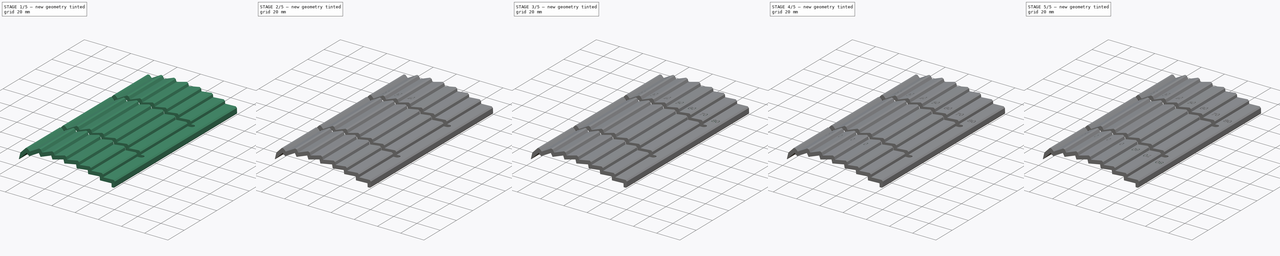
[diagram: build sequence overview — one tinted view per stage of 5, left to right]
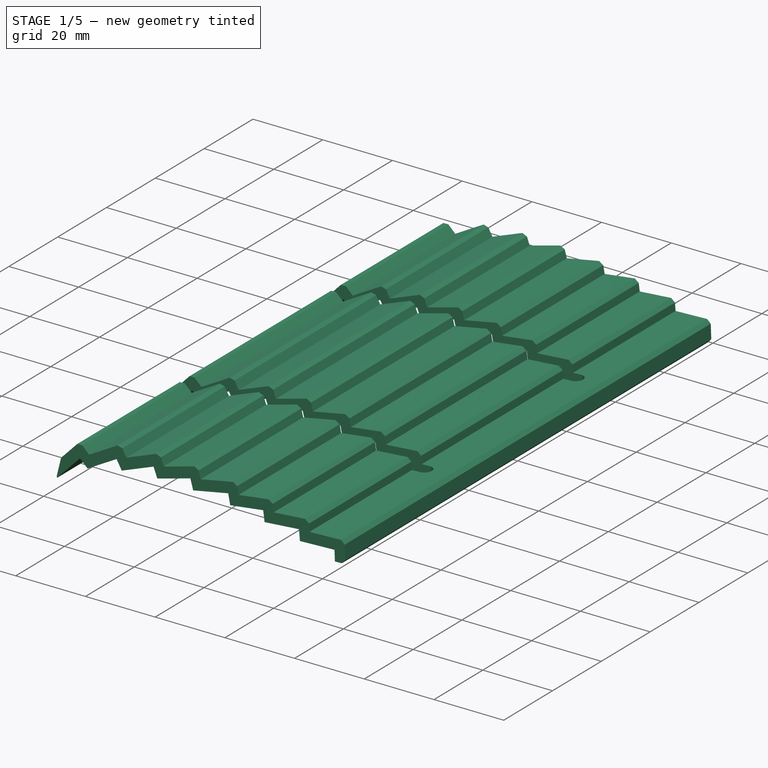
[diagram: stage 1 of 5 — iso view after this stage's code; geometry added in this stage tinted green]
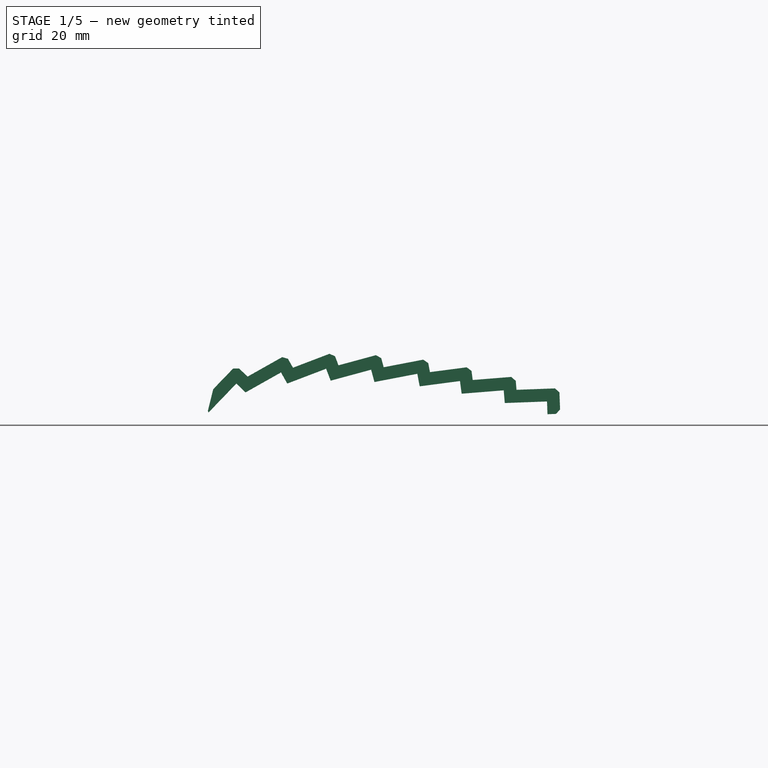
[diagram: stage 1 of 5 — front view after this stage's code; geometry added in this stage tinted green]
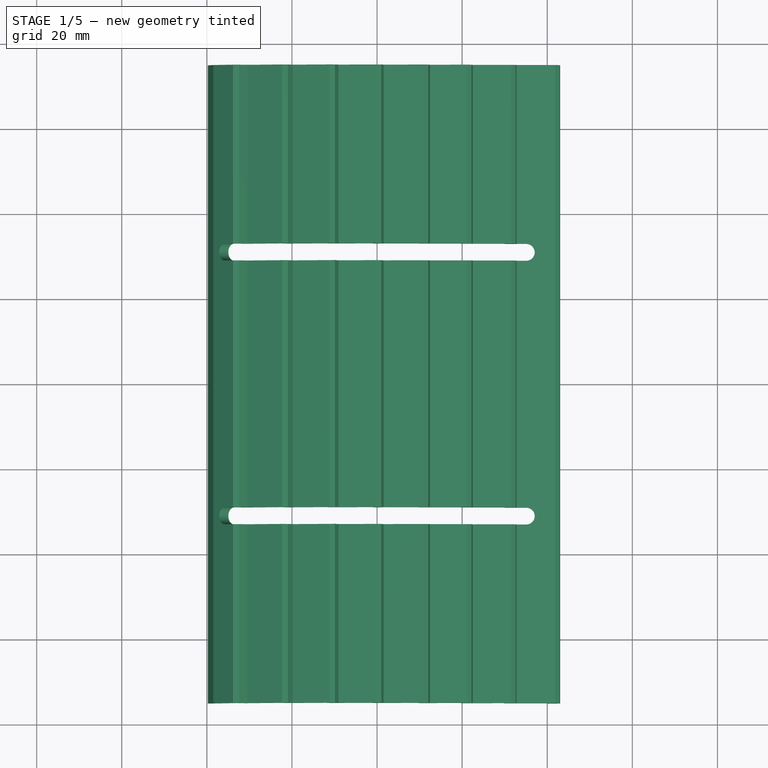
[diagram: stage 1 of 5 — top view after this stage's code; geometry added in this stage tinted green]
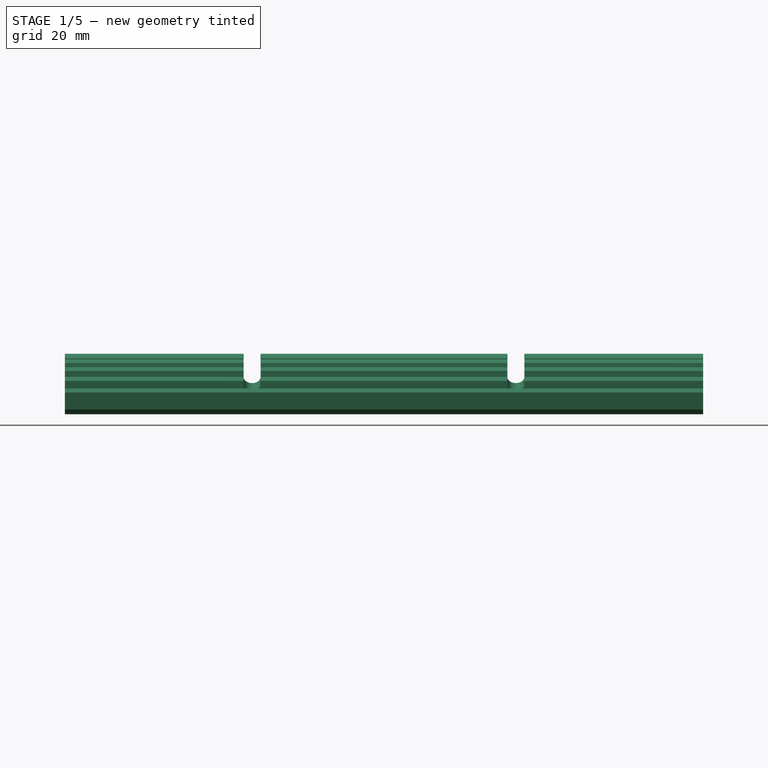
[diagram: stage 1 of 5 — right view after this stage's code; geometry added in this stage tinted green]
FCSTD DOCUMENT  (FreeCAD 1.1R20260414 (Git shallow))
Label: tracette zigzag v2
License: Creative Commons Attribution-NonCommercial-ShareAlike 4.0
LicenseURL: https://creativecommons.org/licenses/by-nc-sa/4.0/
objects: PartDesign::Pocket×10, Part::Part2DObjectPython×8, Part::DatumLine×8, PartDesign::PolarPattern×8, Sketcher::SketchObject×4, App::Point×1, PartDesign::Pad×1, PartDesign::Chamfer×1, App::VarSet×1, PartDesign::Body×1
note: 69 computed .brp shape members not serialized (recipe doc carries the construction recipe); baked Part::Feature solids carry a one-line shape summary decoded from their .brp

FEATURE [App::Point] Origin001  label="Origine"
  Role = Origin
FEATURE [Sketcher::SketchObject] Sketch
  ArcFitTolerance = 1e-06
  AttachmentSupport = -> [Origin]
  ExternalTypes = [0]
  FullyConstrained = true
  MakeInternals = false
  MapMode = 5
  Placement = pos=(0,0,0) rot=(1,0,0;1.5708rad)
  _ExternalGeoVersion = 0
  expr: Constraints[10] = VarSet.Step * 1
  expr: Constraints[11] = VarSet.Step * 2
  expr: Constraints[12] = VarSet.Step * 3
  expr: Constraints[134] = VarSet.Step * 5
  expr: Constraints[41] = VarSet.Step * 4
  expr: Constraints[42] = VarSet.Step * 6
  expr: Constraints[43] = VarSet.Step * 7
  expr: Constraints[44] = VarSet.Step * 8
  sketch-geometry (50):
    g0: LineSegment StartX=6.93368 StartY=7.20583 StartZ=0 EndX=9.09543 EndY=5.12573 EndZ=0
    g1: LineSegment StartX=9.09543 StartY=5.12573 StartZ=0 EndX=17.4237 EndY=9.81912 EndZ=0
    g2: LineSegment StartX=17.4237 StartY=9.81912 StartZ=0 EndX=18.8966 EndY=7.20556 EndZ=0
    g3: LineSegment StartX=18.8966 StartY=7.20556 StartZ=0 EndX=28.0312 EndY=10.6888 EndZ=0
    g4: LineSegment StartX=28.0312 StartY=10.6888 StartZ=0 EndX=29.1001 EndY=7.88564 EndZ=0
    g5: LineSegment StartX=29.1001 StartY=7.88564 StartZ=0 EndX=38.6076 EndY=10.462 EndZ=0
    g6: LineSegment StartX=38.6076 StartY=10.462 StartZ=0 EndX=39.3922 EndY=7.56644 EndZ=0
    g7: LineSegment StartX=39.3922 StartY=7.56644 StartZ=0 EndX=49.4596 EndY=9.50017 EndZ=0
    g8: LineSegment StartX=49.4596 StartY=9.50017 StartZ=0 EndX=50.0255 EndY=6.55403 EndZ=0
    g9: LineSegment StartX=50.0255 StartY=6.55403 StartZ=0 EndX=59.4916 EndY=7.79422 EndZ=0
    g10: LineSegment StartX=59.4916 StartY=7.79422 StartZ=0 EndX=59.8813 EndY=4.81964 EndZ=0
    g11: LineSegment StartX=59.8813 StartY=4.81964 StartZ=0 EndX=69.7744 EndY=5.61589 EndZ=0
    g12: LineSegment StartX=69.7744 StartY=5.61589 StartZ=0 EndX=70.015 EndY=2.62556 EndZ=0
    g13: LineSegment StartX=70.015 StartY=2.62556 StartZ=0 EndX=79.9438 EndY=2.99789 EndZ=0
    g14: LineSegment StartX=79.9438 StartY=2.99789 StartZ=0 EndX=80.0562 EndY=0 EndZ=0
    g15: LineSegment StartX=80.0562 StartY=0 StartZ=0 EndX=83.0541 EndY=0.112421 EndZ=0
    g16: LineSegment StartX=83.0541 StartY=0.112421 StartZ=0 EndX=82.8293 EndY=6.10821 EndZ=0
    g17: LineSegment StartX=82.8293 StartY=6.10821 StartZ=0 EndX=72.7748 EndY=5.73116 EndZ=0
    g18: LineSegment StartX=72.7748 StartY=5.73116 StartZ=0 EndX=72.524 EndY=8.84691 EndZ=0
    g19: LineSegment StartX=72.524 StartY=8.84691 StartZ=0 EndX=62.4852 EndY=8.03891 EndZ=0
    g20: LineSegment StartX=62.4852 StartY=8.03891 StartZ=0 EndX=62.0765 EndY=11.1585 EndZ=0
    g21: LineSegment StartX=62.0765 StartY=11.1585 StartZ=0 EndX=52.4385 EndY=9.8958 EndZ=0
    g22: LineSegment StartX=52.4385 StartY=9.8958 StartZ=0 EndX=51.8399 EndY=13.0122 EndZ=0
    g23: LineSegment StartX=51.8399 StartY=13.0122 StartZ=0 EndX=41.5598 EndY=11.0376 EndZ=0
    g24: LineSegment StartX=41.5598 StartY=11.0376 StartZ=0 EndX=40.7185 EndY=14.1422 EndZ=0
    g25: LineSegment StartX=40.7185 StartY=14.1422 StartZ=0 EndX=30.9359 EndY=11.4913 EndZ=0
    g26: LineSegment StartX=30.9359 StartY=11.4913 StartZ=0 EndX=29.7655 EndY=14.5608 EndZ=0
    g27: LineSegment StartX=29.7655 StartY=14.5608 StartZ=0 EndX=20.2417 EndY=10.9292 EndZ=0
    g28: LineSegment StartX=20.2417 StartY=10.9292 StartZ=0 EndX=18.5644 EndY=13.9055 EndZ=0
    g29: LineSegment StartX=18.5644 StartY=13.9055 StartZ=0 EndX=9.56713 EndY=8.83514 EndZ=0
    g30: LineSegment StartX=9.56713 StartY=8.83514 StartZ=0 EndX=6.85204 EndY=11.4477 EndZ=0
    g31: LineSegment StartX=6.85204 StartY=11.4477 StartZ=0 EndX=1.49773 EndY=5.88322 EndZ=0
    g32: LineSegment StartX=1.49773 StartY=5.88322 StartZ=0 EndX=0.264636 EndY=0.899529 EndZ=0
    g33: ArcOfCircle [constr] CenterX=6.93368 CenterY=7.20583 CenterZ=0 NormalX=0 NormalY=0 NormalZ=1 AngleXU=0 Radius=3 StartAngle=0.804643 EndAngle=2.37544
    g34: ArcOfCircle [constr] CenterX=9.56713 CenterY=8.83514 CenterZ=0 NormalX=0 NormalY=0 NormalZ=1 AngleXU=0 Radius=3 StartAngle=3.94624 EndAngle=5.22558
    g35: ArcOfCircle [constr] CenterX=17.4237 CenterY=9.81912 CenterZ=0 NormalX=0 NormalY=0 NormalZ=1 AngleXU=0 Radius=3 StartAngle=0.513187 EndAngle=2.08398
    g36: ArcOfCircle [constr] CenterX=20.2417 CenterY=10.9292 CenterZ=0 NormalX=0 NormalY=0 NormalZ=1 AngleXU=0 Radius=3 StartAngle=3.65478 EndAngle=5.07669
    g37: ArcOfCircle [constr] CenterX=28.0312 CenterY=10.6888 CenterZ=0 NormalX=0 NormalY=0 NormalZ=1 AngleXU=0 Radius=3 StartAngle=0.364297 EndAngle=1.93509
    g38: ArcOfCircle [constr] CenterX=30.9359 CenterY=11.4913 CenterZ=0 NormalX=0 NormalY=0 NormalZ=1 AngleXU=0 Radius=3 StartAngle=3.50589 EndAngle=4.97702
    g39: ArcOfCircle [constr] CenterX=41.5598 CenterY=11.0376 CenterZ=0 NormalX=0 NormalY=0 NormalZ=1 AngleXU=0 Radius=3 StartAngle=3.40622 EndAngle=4.90216
    g40: ArcOfCircle [constr] CenterX=38.6076 CenterY=10.462 CenterZ=0 NormalX=0 NormalY=0 NormalZ=1 AngleXU=0 Radius=3 StartAngle=0.264628 EndAngle=1.83542
    g41: ArcOfCircle [constr] CenterX=49.4596 CenterY=9.50017 CenterZ=0 NormalX=0 NormalY=0 NormalZ=1 AngleXU=0 Radius=3 StartAngle=0.189768 EndAngle=1.76056
    g42: ArcOfCircle [constr] CenterX=52.4385 CenterY=9.8958 CenterZ=0 NormalX=0 NormalY=0 NormalZ=1 AngleXU=0 Radius=3 StartAngle=3.33136 EndAngle=4.84266
    g43: ArcOfCircle [constr] CenterX=59.4916 CenterY=7.79422 CenterZ=0 NormalX=0 NormalY=0 NormalZ=1 AngleXU=0 Radius=3 StartAngle=0.130272 EndAngle=1.70107
    g44: ArcOfCircle [constr] CenterX=62.4852 CenterY=8.03891 CenterZ=0 NormalX=0 NormalY=0 NormalZ=1 AngleXU=0 Radius=3 StartAngle=3.27186 EndAngle=4.7927
    g45: ArcOfCircle [constr] CenterX=69.7744 CenterY=5.61589 CenterZ=0 NormalX=0 NormalY=0 NormalZ=1 AngleXU=0 Radius=3 StartAngle=0.0803134 EndAngle=1.65111
    g46: ArcOfCircle [constr] CenterX=72.7748 CenterY=5.73116 CenterZ=0 NormalX=0 NormalY=0 NormalZ=1 AngleXU=0 Radius=3 StartAngle=3.22191 EndAngle=4.74987
    g47: ArcOfCircle [constr] CenterX=79.9438 CenterY=2.99789 CenterZ=0 NormalX=0 NormalY=0 NormalZ=1 AngleXU=0 Radius=3 StartAngle=0.0374824 EndAngle=1.60828
    g48: LineSegment StartX=0.403316 StartY=0.419146 StartZ=0 EndX=6.93368 EndY=7.20583 EndZ=0
    g49: ArcOfCircle CenterX=0.75 CenterY=0.779438 CenterZ=0 NormalX=0 NormalY=0 NormalZ=1 AngleXU=0 Radius=0.5 StartAngle=2.89904 EndAngle=3.94624
  constraints (136):
    c: Coincident(g0,g1)
    c: Coincident(g1,g2)
    c: Coincident(g2,g3)
    c: Coincident(g3,g4)
    c: Perpendicular(g2,g1)
    c: Perpendicular(g4,g3)
    c: PointOnObject(g-1,g1)
    c: PointOnObject(g-1,g3)
    c: Equal(g4,g2)
    c: Equal(g2,g0)
    c: Distance(g-1,g0) = 10
    c: Distance(g-1,g1) = 20
    c: Distance(g-1,g3) = 30
    c: Coincident(g4,g5)
    c: Coincident(g5,g6)
    c: Coincident(g6,g7)
    c: Coincident(g7,g8)
    c: Coincident(g8,g9)
    c: Coincident(g9,g10)
    c: Coincident(g10,g11)
    c: Coincident(g11,g12)
    c: Coincident(g12,g13)
    c: Coincident(g13,g14)
    c: Coincident(g14,g15)
    c: Perpendicular(g5,g6)
    c: Perpendicular(g7,g8)
    c: Perpendicular(g9,g10)
    c: Perpendicular(g11,g12)
    c: Perpendicular(g14,g15)
    c: Perpendicular(g13,g14)
    c: PointOnObject(g-1,g5)
    c: PointOnObject(g-1,g7)
    c: PointOnObject(g-1,g9)
    c: PointOnObject(g-1,g11)
    c: PointOnObject(g-1,g13)
    c: Equal(g4,g6)
    c: Equal(g6,g8)
    c: Equal(g8,g10)
    c: Equal(g10,g12)
    c: Equal(g14,g12)
    c: Distance(g12,g12) = 3
    c: Distance(g-1,g5) = 40
    c: Distance(g-1,g9) = 60
    c: Distance(g-1,g11) = 70
    c: Distance(g-1,g13) = 80
    c: Coincident(g16,g17)
    c: Coincident(g17,g18)
    c: Coincident(g18,g19)
    c: Coincident(g19,g20)
    c: Coincident(g20,g21)
    c: Coincident(g21,g22)
    c: Coincident(g22,g23)
    c: Coincident(g23,g24)
    c: Coincident(g24,g25)
    c: Coincident(g25,g26)
    c: Coincident(g26,g27)
    c: Coincident(g27,g28)
    c: Coincident(g28,g29)
    c: Coincident(g29,g30)
    c: Coincident(g30,g31)
    c: Coincident(g31,g32)
    c: Parallel(g0,g30)
    c: Parallel(g1,g29)
    c: Parallel(g2,g28)
    c: Parallel(g27,g3)
    c: Parallel(g4,g26)
    c: Parallel(g25,g5)
    c: Parallel(g6,g24)
    c: Parallel(g8,g22)
    c: Parallel(g9,g21)
    c: Parallel(g10,g20)
    c: Parallel(g11,g19)
    c: Parallel(g12,g18)
    c: Parallel(g13,g17)
    c: Perpendicular(g17,g16)
    c: Coincident(g15,g16)
    c: Coincident(g33,g0)
    c: Coincident(g34,g29)
    c: Coincident(g35,g1)
    c: Coincident(g36,g27)
    c: Coincident(g37,g3)
    c: Coincident(g38,g25)
    c: Tangent(g33,g31) = -1.5708
    c: Tangent(g33,g30) = -1.5708
    c: Radius(g33) = 3
    c: Tangent(g34,g1) = -1.5708
    c: Tangent(g34,g0) = -1.5708
    c: Tangent(g35,g29) = -1.5708
    c: Tangent(g35,g28) = -1.5708
    c: Tangent(g36,g2) = -1.5708
    c: Tangent(g36,g3) = -1.5708
    c: Tangent(g38,g5) = -1.5708
    c: Tangent(g37,g27) = -1.5708
    c: Tangent(g37,g26) = -1.5708
    c: Tangent(g38,g4) = -1.5708
    c: Coincident(g39,g23)
    c: Tangent(g39,g6) = -1.5708
    c: Tangent(g39,g7) = -1.5708
    c: Tangent(g40,g25) = -1.5708
    c: Tangent(g40,g24) = -1.5708
    c: Coincident(g40,g5)
    c: Coincident(g41,g7)
    c: Tangent(g41,g23) = -1.5708
    c: Tangent(g41,g22) = -1.5708
    c: Coincident(g42,g21)
    c: Tangent(g42,g8) = -1.5708
    c: Tangent(g42,g9) = -1.5708
    c: Coincident(g43,g9)
    c: Tangent(g43,g21) = -1.5708
    c: Tangent(g43,g20) = -1.5708
    c: Coincident(g44,g19)
    c: Tangent(g44,g10) = -1.5708
    c: Tangent(g44,g11) = -1.5708
    c: Coincident(g45,g11)
    c: Tangent(g45,g19) = -1.5708
    c: Tangent(g45,g18) = -1.5708
    c: Coincident(g46,g17)
    c: Tangent(g46,g12) = -1.5708
    c: Tangent(g46,g13) = -1.5708
    c: Coincident(g47,g13)
    c: Tangent(g47,g17) = -1.5708
    c: Tangent(g47,g16) = -1.5708
    c: Parallel(g7,g23)
    c: PointOnObject(g14,g-1)
    c: Coincident(g48,g0)
    c: PointOnObject(g49,g48)
    c: Coincident(g49,g48)
    c: Tangent(g49,g32) = -1.5708
    c: Radius(g49) = 0.5
    c: Distance(g49,g-2) = 0.25
    c: Vertical(g32,g49)
    c: Perpendicular(g48,g0)
    c: Parallel(g31,g48)
    c: PointOnObject(g-1,g48)
    c: Distance(g48,g8) = 50
    c: Angle(g48,g32) = 0.523599
FEATURE [PartDesign::Pad] Pad
  Direction = (0,-1,2e-16)
  Length = 150
  Length2 = 10
  Profile = -> Sketch
  ReferenceAxis = -> Sketch [N_Axis]
  Refine = true
  SideType = 2
  Suppressed = false
  Type = 0
  Type2 = 0
FEATURE [Sketcher::SketchObject] Sketch001
  ArcFitTolerance = 1e-06
  AttachmentSupport = -> [Origin]
  ExternalGeometry = -> [Pad]
  ExternalTypes = [0,0]
  FullyConstrained = true
  MakeInternals = false
  MapMode = 5
  _ExternalGeoVersion = 0
  sketch-geometry (8):
    g0: ArcOfCircle CenterX=31.4977 CenterY=31 CenterZ=0 NormalX=0 NormalY=0 NormalZ=1 AngleXU=0 Radius=2 StartAngle=1.5708 EndAngle=4.71239
    g1: ArcOfCircle CenterX=75.0541 CenterY=31 CenterZ=0 NormalX=0 NormalY=0 NormalZ=1 AngleXU=0 Radius=2 StartAngle=4.71239 EndAngle=7.85398
    g2: LineSegment StartX=31.4977 StartY=33 StartZ=0 EndX=75.0541 EndY=33 EndZ=0
    g3: LineSegment StartX=31.4977 StartY=29 StartZ=0 EndX=75.0541 EndY=29 EndZ=0
    g4: ArcOfCircle CenterX=31.4977 CenterY=-31 CenterZ=0 NormalX=0 NormalY=0 NormalZ=1 AngleXU=0 Radius=2 StartAngle=1.5708 EndAngle=4.71239
    g5: ArcOfCircle CenterX=75.0541 CenterY=-31 CenterZ=0 NormalX=0 NormalY=0 NormalZ=1 AngleXU=0 Radius=2 StartAngle=4.71239 EndAngle=7.85398
    g6: LineSegment StartX=31.4977 StartY=-29 StartZ=0 EndX=75.0541 EndY=-29 EndZ=0
    g7: LineSegment StartX=31.4977 StartY=-33 StartZ=0 EndX=75.0541 EndY=-33 EndZ=0
  constraints (18):
    c: Tangent(g0,g2) = 1.5708
    c: Tangent(g0,g3) = -1.5708
    c: Tangent(g1,g2) = 1.5708
    c: Tangent(g1,g3) = -1.5708
    c: Equal(g0,g1)
    c: Horizontal(g2)
    c: Tangent(g4,g6) = 1.5708
    c: Tangent(g4,g7) = -1.5708
    c: Tangent(g5,g6) = 1.5708
    c: Tangent(g5,g7) = -1.5708
    c: Equal(g4,g5)
    c: Equal(g1,g5)
    c: Distance(g0,g-4) = 30
    c: Radius(g1) = 2
    c: Symmetric(g4,g0,g-1)
    c: Symmetric(g5,g1,g-1)
    c: Distance(g1,g-3) = 8
    c: DistanceY(g4,g0) = 60
FEATURE [PartDesign::Chamfer] Chamfer
  Angle = 45
  Base = -> Pad [Edge103,Edge101,Edge99,Edge97,Edge95,Edge93,Edge91,Edge89,Edge88]
  BaseFeature = -> Pad
  ChamferType = 0
  FlipDirection = false
  Refine = true
  Size = 1
  Size2 = 1
  SupportTransform = false
  Suppressed = false
  UseAllEdges = false
FEATURE [PartDesign::Pocket] Pocket
  BaseFeature = -> Chamfer
  Direction = (0,0,-1)
  Length = 5
  Length2 = 5
  Profile = -> Sketch001
  ReferenceAxis = -> Sketch001 [N_Axis]
  Refine = true
  SideType = 2
  Suppressed = false
  Type = 1
  Type2 = 0
FEATURE [Part::Part2DObjectPython] ShapeString001  label="20"  # Draft 2D object (typed FeaturePython)
  AttachmentOffset = pos=(14.5,40,0) rot=(0,0,1;0rad)
  AttachmentSupport = -> [Chamfer]
  FontFile = <path>
  Fuse = false
  Justification = 6
  JustificationReference = 0
  KeepLeftMargin = false
  MakeFace = true
  MapMode = 5
  ObliqueAngle = 0
  Placement = pos=(11.1593,40,9.73241) rot=(0,-1,0;0.513187rad)
  ScaleToSize = true
  Size = 4
  String = 20
  Tracking = 0
  expr: .AttachmentOffset.Base.y = VarSet.Y_Offset
  expr: Size = VarSet.Font_Height
FEATURE [Part::Part2DObjectPython] ShapeString002  label="30"  # Draft 2D object (typed FeaturePython)
  AttachmentOffset = pos=(24.5,40,0) rot=(0,0,1;0rad)
  AttachmentSupport = -> [Chamfer]
  Fuse = false
  Justification = 6
  JustificationReference = 0
  KeepLeftMargin = false
  MakeFace = true
  MapMode = 5
  ObliqueAngle = 0
  Placement = pos=(21.8233,40,11.5323) rot=(0,-1,0;0.364297rad)
  ScaleToSize = true
  Size = 4
  String = 30
  Tracking = 0
  expr: .AttachmentOffset.Base.y = VarSet.Y_Offset
FEATURE [Part::Part2DObjectPython] ShapeString003  label="40"  # Draft 2D object (typed FeaturePython)
  AttachmentOffset = pos=(34.5,40,0) rot=(0,0,1;0rad)
  AttachmentSupport = -> [Chamfer]
  FontFile = <path>
  Fuse = false
  Justification = 6
  JustificationReference = 0
  KeepLeftMargin = false
  MakeFace = true
  MapMode = 5
  ObliqueAngle = 0
  Placement = pos=(32.5144,40,11.9191) rot=(0,-1,0;0.264628rad)
  ScaleToSize = true
  Size = 4
  String = 40
  Tracking = 0
  expr: .AttachmentOffset.Base.y = VarSet.Y_Offset
  expr: Size = VarSet.Font_Height
FEATURE [Part::Part2DObjectPython] ShapeString004  label="50"  # Draft 2D object (typed FeaturePython)
  AttachmentOffset = pos=(45,40,0) rot=(0,0,1;0rad)
  AttachmentSupport = -> [Chamfer]
  FontFile = <path>
  Fuse = false
  Justification = 6
  JustificationReference = 0
  KeepLeftMargin = false
  MakeFace = true
  MapMode = 5
  ObliqueAngle = 0
  Placement = pos=(43.6263,40,11.4345) rot=(0,-1,0;0.189768rad)
  ScaleToSize = true
  Size = 4
  String = 50
  Tracking = 0
  expr: .AttachmentOffset.Base.y = VarSet.Y_Offset
  expr: Size = VarSet.Font_Height
FEATURE [App::VarSet] VarSet
  Font = Century Schoolbook
  Font_Depth = 0.5
  Font_Height = 4
  Step = 10
  Y_Offset = 40
FEATURE [Part::Part2DObjectPython] ShapeString005  label="60"  # Draft 2D object (typed FeaturePython)
  AttachmentOffset = pos=(55,40,0) rot=(0,0,1;0rad)
  AttachmentSupport = -> [Chamfer]
  FontFile = <path>
  Fuse = false
  Justification = 6
  JustificationReference = 0
  KeepLeftMargin = false
  MakeFace = true
  MapMode = 5
  ObliqueAngle = 0
  Placement = pos=(54.1443,40,10.1193) rot=(0,-1,0;0.130272rad)
  ScaleToSize = true
  Size = 4
  String = 60
  Tracking = 0
  expr: .AttachmentOffset.Base.y = VarSet.Y_Offset
  expr: Size = VarSet.Font_Height
FEATURE [Part::Part2DObjectPython] ShapeString006  label="70"  # Draft 2D object (typed FeaturePython)
  AttachmentOffset = pos=(64.7,40,0) rot=(0,0,1;0rad)
  AttachmentSupport = -> [Chamfer]
  FontFile = <path>
  Fuse = false
  Justification = 6
  JustificationReference = 0
  KeepLeftMargin = false
  MakeFace = true
  MapMode = 5
  ObliqueAngle = 0
  Placement = pos=(64.2508,40,8.18102) rot=(0,-1,0;0.080313rad)
  ScaleToSize = true
  Size = 4
  String = 70
  Tracking = 0
  expr: .AttachmentOffset.Base.y = VarSet.Y_Offset
  expr: Size = VarSet.Font_Height
FEATURE [Part::Part2DObjectPython] ShapeString007  label="80"  # Draft 2D object (typed FeaturePython)
  AttachmentOffset = pos=(74.7,40,0) rot=(0,0,1;0rad)
  AttachmentSupport = -> [Chamfer]
  FontFile = =VarSet.Font
  Fuse = false
  Justification = 6
  JustificationReference = 0
  KeepLeftMargin = false
  MakeFace = true
  MapMode = 5
  ObliqueAngle = 0
  Placement = pos=(74.5351,40,5.79718) rot=(0,-1,0;0.037482rad)
  ScaleToSize = true
  Size = 4
  String = 80
  Tracking = 0
  expr: .AttachmentOffset.Base.y = VarSet.Y_Offset
  expr: Size = VarSet.Font_Height
FEATURE [Part::Part2DObjectPython] ShapeString  label="10"  # Draft 2D object (typed FeaturePython)
  AttachmentOffset = pos=(-40,6,0) rot=(0,0,1;1.5708rad)
  AttachmentSupport = -> [Chamfer]
  FontFile = <path>
  Fuse = false
  Justification = 6
  JustificationReference = 0
  KeepLeftMargin = false
  MakeFace = true
  MapMode = 5
  ObliqueAngle = 0
  Placement = pos=(1.99846,40,6.40361) rot=(0,-1,0;0.804643rad)
  ScaleToSize = true
  Size = 4
  String = 10
  Tracking = 0
  expr: .AttachmentOffset.Base.x = -VarSet.Y_Offset
FEATURE [Part::DatumLine] DatumLine001
  AttacherType = Attacher::AttachEngineLine
  MapMode = 42
  Placement = pos=(15.1084,-2e-15,8.50173) rot=(0.245709,-0.245709,-0.937685;1.63509rad)
FEATURE [Part::DatumLine] DatumLine002
  AttacherType = Attacher::AttachEngineLine
  MapMode = 42
  Placement = pos=(25.6115,-2.5e-15,9.74746) rot=(0.177945,-0.177945,-0.967818;1.6035rad)
FEATURE [Part::DatumLine] DatumLine003
  AttacherType = Attacher::AttachEngineLine
  MapMode = 42
  Placement = pos=(36.1355,-2.3e-15,9.7675) rot=(0.130489,-0.130489,-0.982825;1.58812rad)
FEATURE [Part::DatumLine] DatumLine004
  AttacherType = Attacher::AttachEngineLine
  MapMode = 42
  Placement = pos=(47.0476,-2.3e-15,9.00593) rot=(0.094008,-0.094008,-0.991123;1.57971rad)
FEATURE [Part::DatumLine] DatumLine005
  AttacherType = Attacher::AttachEngineLine
  MapMode = 42
  Placement = pos=(57.4216,-2.1e-15,7.52301) rot=(0.064952,-0.064952,-0.995772;1.57503rad)
FEATURE [Part::DatumLine] DatumLine006
  AttacherType = Attacher::AttachEngineLine
  MapMode = 42
  Placement = pos=(67.2469,-1.7e-15,5.41247) rot=(0.040114,-0.040114,-0.99839;1.57241rad)
FEATURE [Part::DatumLine] DatumLine007
  AttacherType = Attacher::AttachEngineLine
  MapMode = 42
  Placement = pos=(77.4893,2.1e-15,2.90585) rot=(0.018737,-0.018737,-0.999649;1.57115rad)
FEATURE [Part::DatumLine] DatumLine
  AttacherType = Attacher::AttachEngineLine
  AttachmentSupport = -> [Chamfer]
  MapMode = 42
  Placement = pos=(5.98995,-2e-15,6.22506) rot=(0.364602,-0.364602,-0.856814;1.72472rad)
FEATURE [Sketcher::SketchObject] Sketch002
  ArcFitTolerance = 1e-06
  AttachmentSupport = -> [Pocket]
  ExternalGeometry = -> [Pocket]
  ExternalTypes = [0,0,0]
  FullyConstrained = true
  MakeInternals = false
  MapMode = 5
  Placement = pos=(-2.16175,5e-16,2.0801) rot=(0.364602,-0.364602,-0.856814;1.72472rad)
  _ExternalGeoVersion = 0
  sketch-geometry (10):
    g0: ArcOfCircle CenterX=-31 CenterY=30.2297 CenterZ=0 NormalX=0 NormalY=0 NormalZ=1 AngleXU=0 Radius=2 StartAngle=9e-16 EndAngle=3.14159
    g1: ArcOfCircle CenterX=-31 CenterY=9.27783 CenterZ=0 NormalX=0 NormalY=0 NormalZ=1 AngleXU=0 Radius=2 StartAngle=3.1416 EndAngle=6.28319
    g2: LineSegment StartX=-29 StartY=30.2297 StartZ=0 EndX=-29 EndY=9.27783 EndZ=0
    g3: LineSegment StartX=-33 StartY=30.2297 StartZ=0 EndX=-33 EndY=9.27782 EndZ=0
    g4: ArcOfCircle CenterX=31 CenterY=30.2297 CenterZ=0 NormalX=0 NormalY=0 NormalZ=1 AngleXU=0 Radius=2 StartAngle=4e-16 EndAngle=3.14159
    g5: ArcOfCircle CenterX=31 CenterY=9.27783 CenterZ=0 NormalX=0 NormalY=0 NormalZ=1 AngleXU=0 Radius=2 StartAngle=3.14159 EndAngle=6.28318
    g6: LineSegment StartX=29 StartY=30.2297 StartZ=0 EndX=29 EndY=9.27783 EndZ=0
    g7: LineSegment StartX=33 StartY=30.2297 StartZ=0 EndX=33 EndY=9.27782 EndZ=0
    g8: LineSegment [constr] StartX=29 StartY=30.2297 StartZ=0 EndX=29 EndY=37.5659 EndZ=0
    g9: LineSegment [constr] StartX=33 StartY=37.5659 StartZ=0 EndX=33 EndY=30.2297 EndZ=0
  constraints (23):
    c: Tangent(g0,g2) = 1.5708
    c: Tangent(g0,g3) = -1.5708
    c: Tangent(g1,g2) = 1.5708
    c: Equal(g0,g1)
    c: Coincident(g0,g-5)
    c: Distance(g1,g-3) = 2
    c: Symmetric(g-5,g8,g-2)
    c: Symmetric(g-5,g8,g-2)
    c: Symmetric(g-4,g9,g-2)
    c: Symmetric(g-4,g9,g-2)
    c: Symmetric(g0,g4,g-2)
    c: Symmetric(g0,g4,g-2)
    c: Symmetric(g1,g5,g-2)
    c: Symmetric(g1,g5,g-2)
    c: Symmetric(g2,g6,g-2)
    c: Symmetric(g2,g6,g-2)
    c: Symmetric(g3,g7,g-2)
    c: Symmetric(g3,g7,g-2)
    c: Horizontal(g4,g4)
    c: Horizontal(g5,g5)
    c: Vertical(g3)
    c: Coincident(g1,g3)
    c: Coincident(g-4,g0)
FEATURE [PartDesign::Pocket] Pocket009
  BaseFeature = -> Pocket
  Direction = (0.720583,1e-16,-0.693368)
  Length = 5
  Length2 = 5
  Profile = -> Sketch002
  ReferenceAxis = -> Sketch002 [N_Axis]
  Refine = true
  SideType = 0
  Suppressed = false
  Type = 1
  Type2 = 0
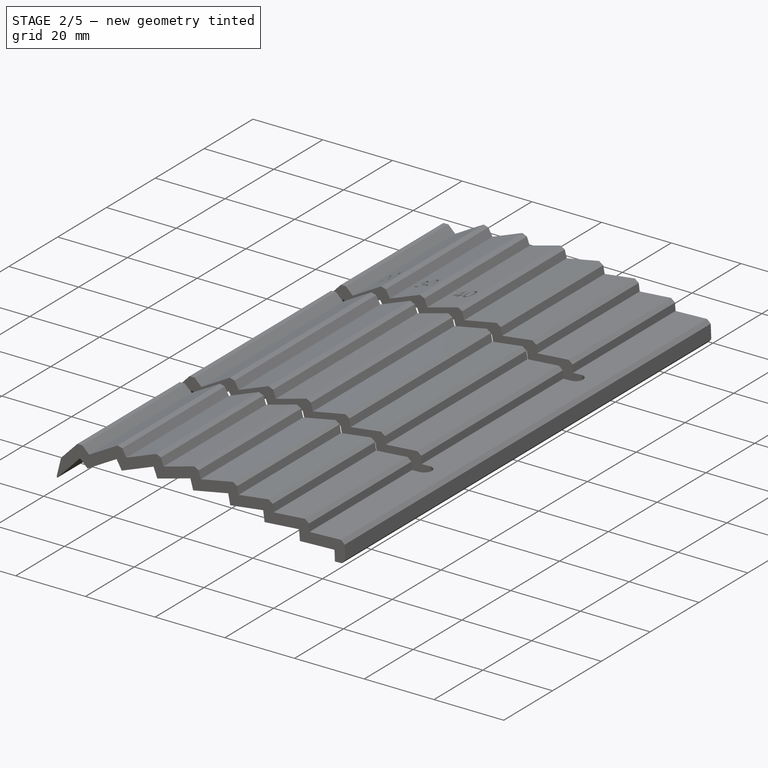
[diagram: stage 2 of 5 — iso view after this stage's code; geometry added in this stage tinted green]
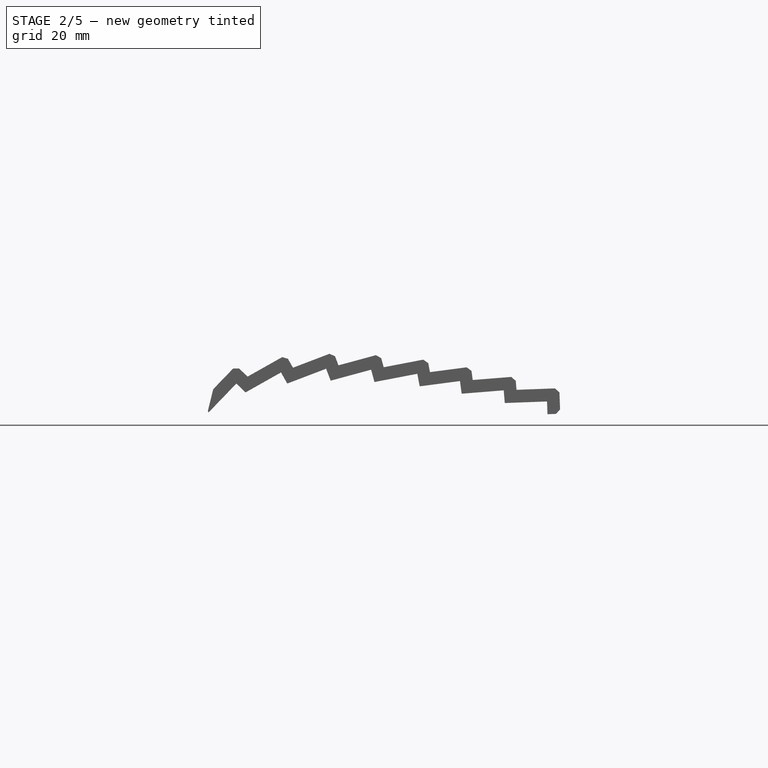
[diagram: stage 2 of 5 — front view after this stage's code; geometry added in this stage tinted green]
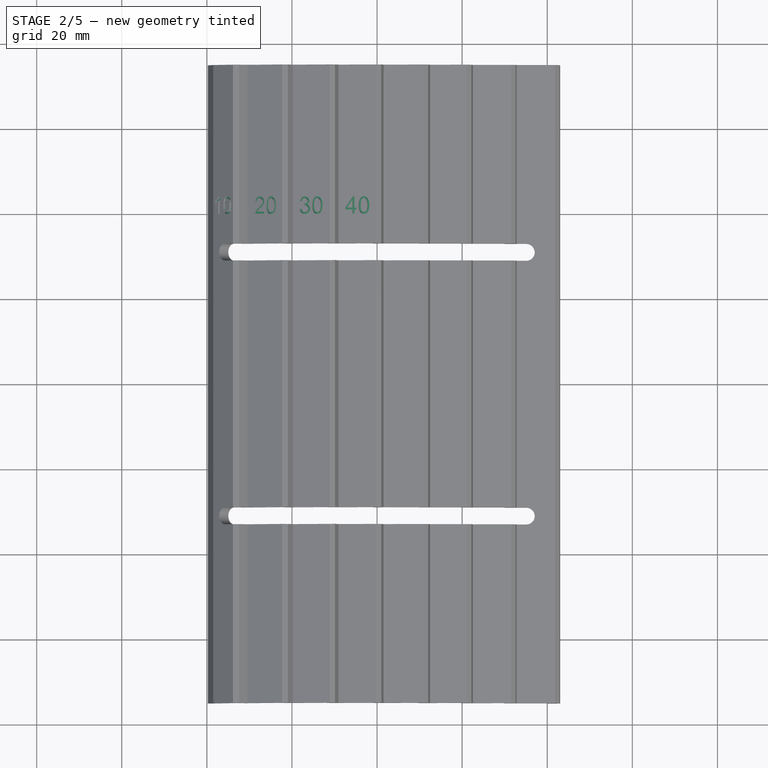
[diagram: stage 2 of 5 — top view after this stage's code; geometry added in this stage tinted green]
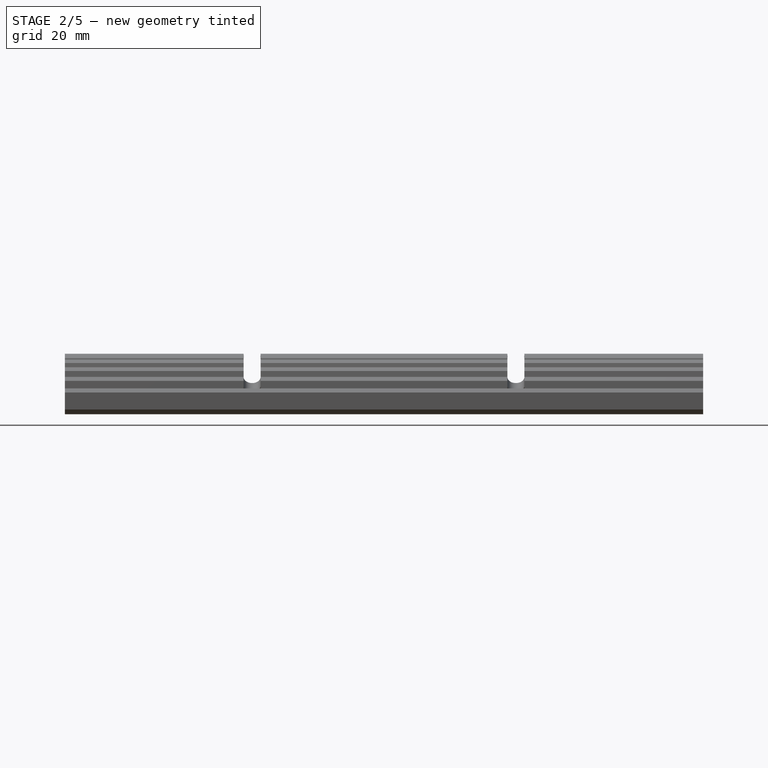
[diagram: stage 2 of 5 — right view after this stage's code; geometry added in this stage tinted green]
FEATURE [PartDesign::Pocket] Pocket001
  BaseFeature = -> Pocket009
  Direction = (0.720583,2e-16,-0.693368)
  Length = 0.5
  Length2 = 5
  Profile = -> ShapeString
  ReferenceAxis = -> ShapeString [N_Axis]
  Refine = true
  SideType = 0
  Suppressed = false
  Type = 0
  Type2 = 0
  expr: Length = VarSet.Font_Depth
FEATURE [PartDesign::Pocket] Pocket002
  BaseFeature = -> Pocket001
  Direction = (0.490956,0,-0.871184)
  Length = 1
  Length2 = 5
  Profile = -> ShapeString001
  ReferenceAxis = -> ShapeString001 [N_Axis]
  Refine = true
  SideType = 2
  Suppressed = false
  Type = 0
  Type2 = 0
FEATURE [PartDesign::Pocket] Pocket003
  BaseFeature = -> Pocket002
  Direction = (0.356292,0,-0.934375)
  Length = 0.5
  Length2 = 5
  Profile = -> ShapeString002
  ReferenceAxis = -> ShapeString002 [N_Axis]
  Refine = true
  SideType = 0
  Suppressed = false
  Type = 0
  Type2 = 0
  expr: Length = VarSet.Font_Depth
FEATURE [PartDesign::Pocket] Pocket004
  BaseFeature = -> Pocket003
  Direction = (0.26155,0,-0.96519)
  Length = 0.5
  Length2 = 5
  Profile = -> ShapeString003
  ReferenceAxis = -> ShapeString003 [N_Axis]
  Refine = true
  SideType = 0
  Suppressed = false
  Type = 0
  Type2 = 0
  expr: Length = VarSet.Font_Depth
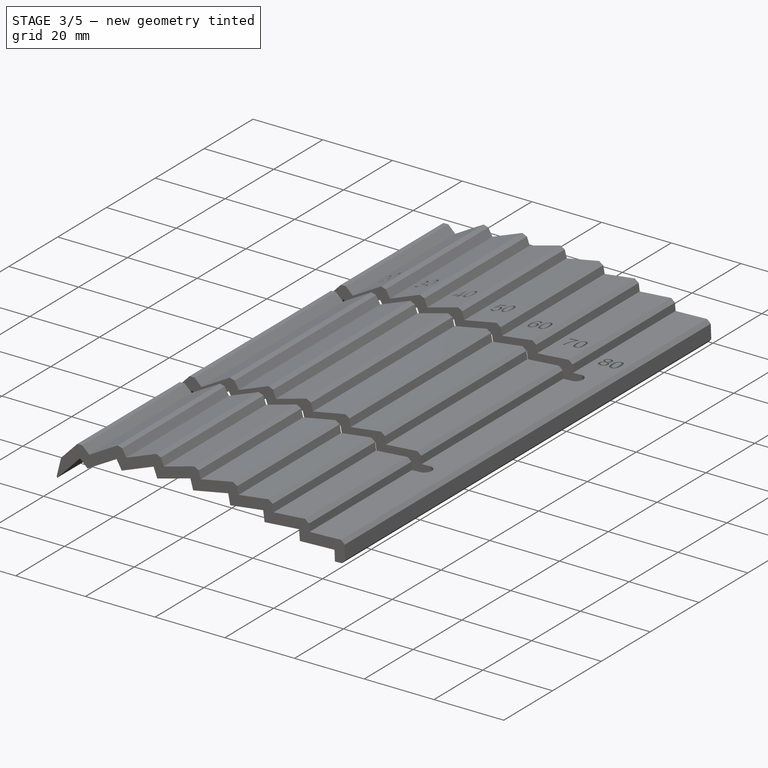
[diagram: stage 3 of 5 — iso view after this stage's code; geometry added in this stage tinted green]
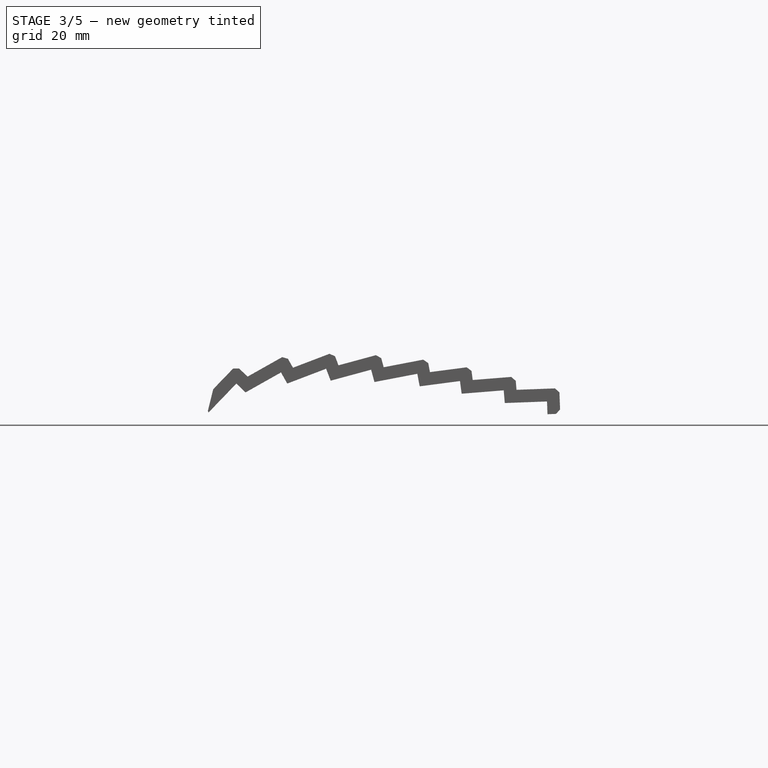
[diagram: stage 3 of 5 — front view after this stage's code; geometry added in this stage tinted green]
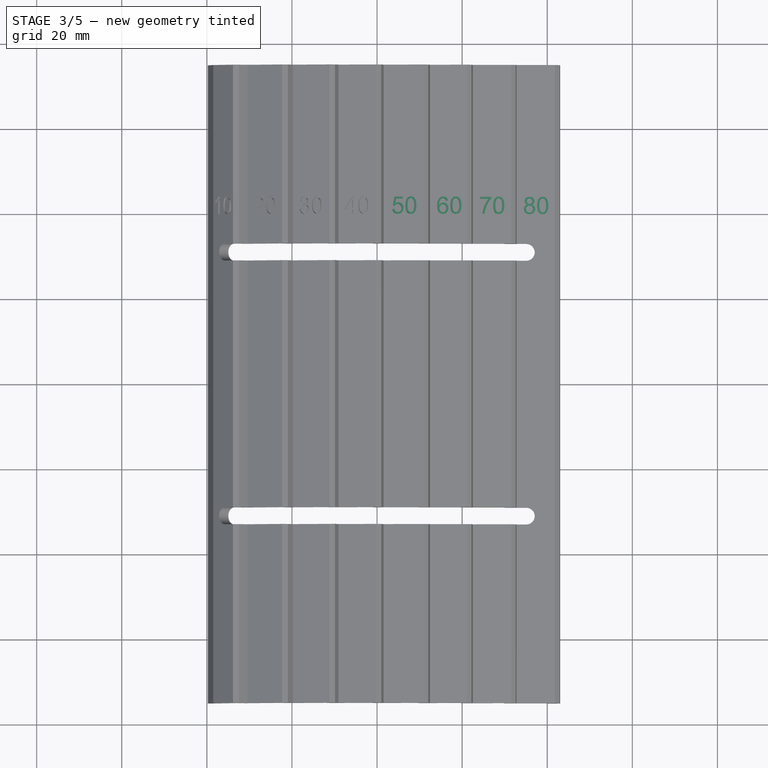
[diagram: stage 3 of 5 — top view after this stage's code; geometry added in this stage tinted green]
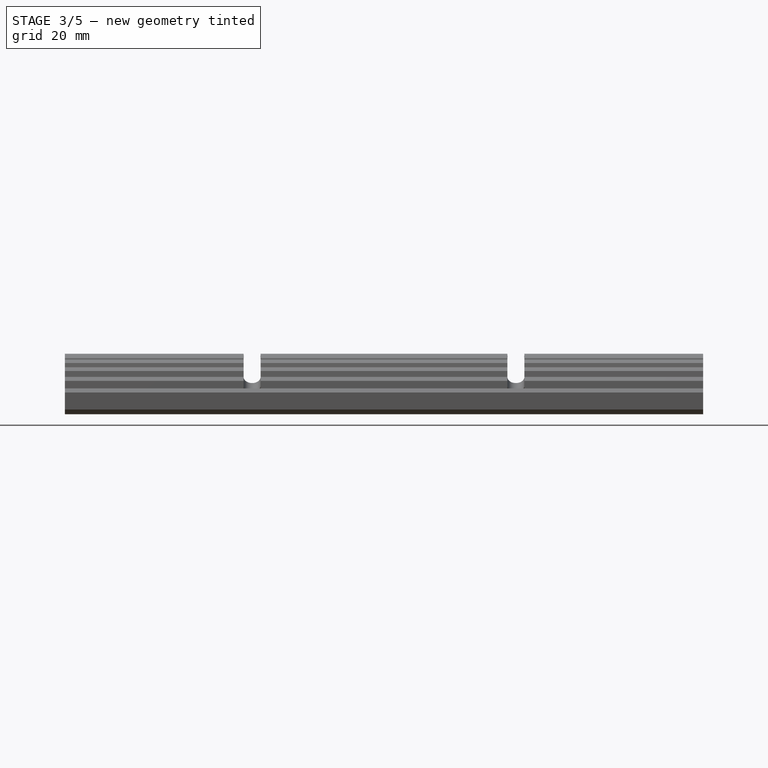
[diagram: stage 3 of 5 — right view after this stage's code; geometry added in this stage tinted green]
FEATURE [PartDesign::Pocket] Pocket005
  BaseFeature = -> Pocket004
  Direction = (0.188631,0,-0.982048)
  Length = 0.5
  Length2 = 5
  Profile = -> ShapeString004
  ReferenceAxis = -> ShapeString004 [N_Axis]
  Refine = true
  SideType = 0
  Suppressed = false
  Type = 0
  Type2 = 0
  expr: Length = VarSet.Font_Depth
FEATURE [PartDesign::Pocket] Pocket006
  BaseFeature = -> Pocket005
  Direction = (0.129904,0,-0.991527)
  Length = 0.5
  Length2 = 5
  Profile = -> ShapeString005
  ReferenceAxis = -> ShapeString005 [N_Axis]
  Refine = true
  SideType = 0
  Suppressed = false
  Type = 0
  Type2 = 0
  expr: Length = VarSet.Font_Depth
FEATURE [PartDesign::Pocket] Pocket007
  BaseFeature = -> Pocket006
  Direction = (0.0802271,0,-0.996777)
  Length = 0.5
  Length2 = 5
  Profile = -> ShapeString006
  ReferenceAxis = -> ShapeString006 [N_Axis]
  Refine = true
  SideType = 0
  Suppressed = false
  Type = 0
  Type2 = 0
  expr: Length = VarSet.Font_Depth
FEATURE [PartDesign::Pocket] Pocket008
  BaseFeature = -> Pocket007
  Direction = (0.0374737,0,-0.999298)
  Length = 0.5
  Length2 = 5
  Profile = -> ShapeString007
  ReferenceAxis = -> ShapeString007 [N_Axis]
  Refine = true
  SideType = 0
  Suppressed = false
  Type = 0
  Type2 = 0
  expr: Length = VarSet.Font_Depth
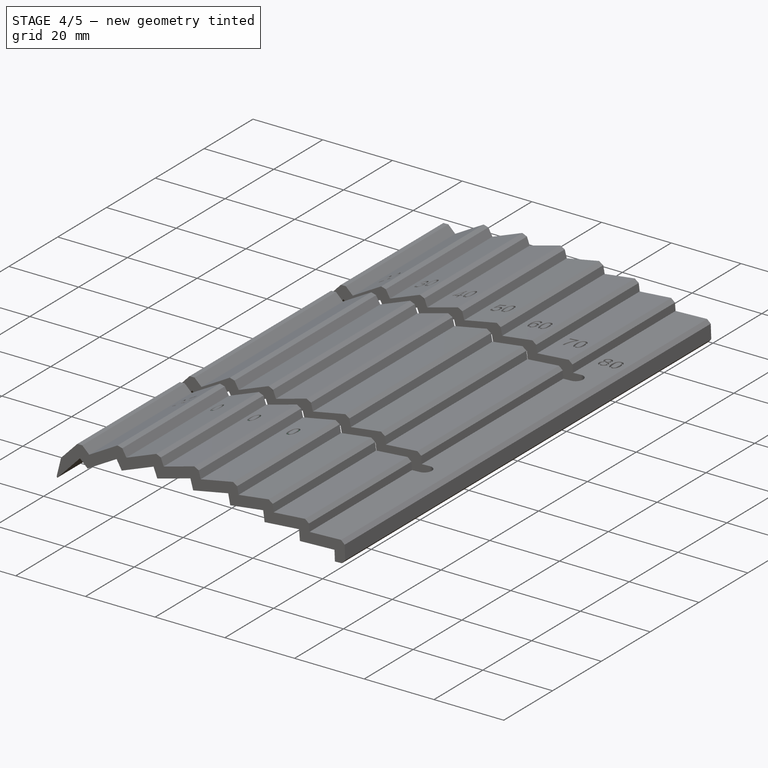
[diagram: stage 4 of 5 — iso view after this stage's code; geometry added in this stage tinted green]
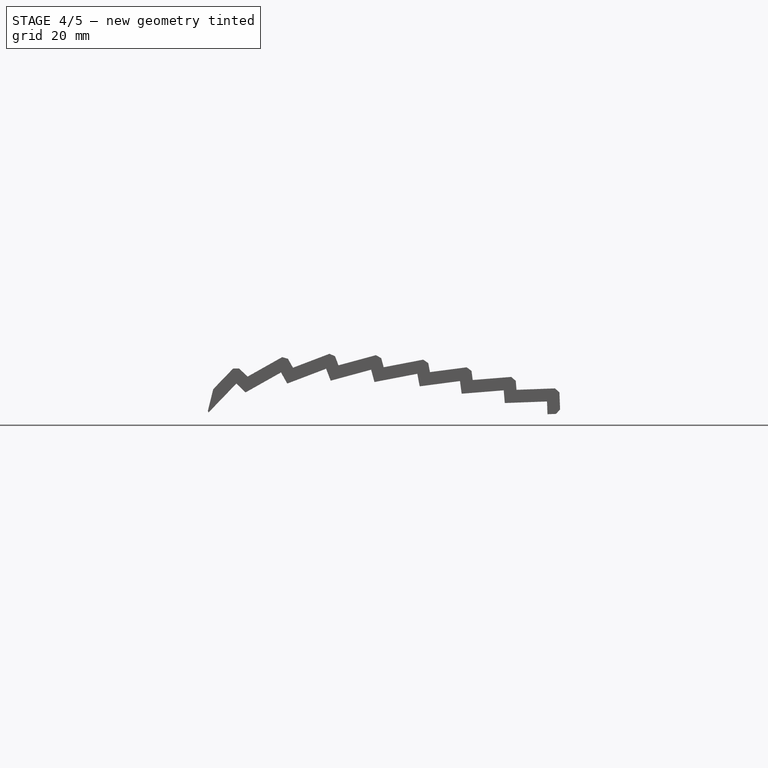
[diagram: stage 4 of 5 — front view after this stage's code; geometry added in this stage tinted green]
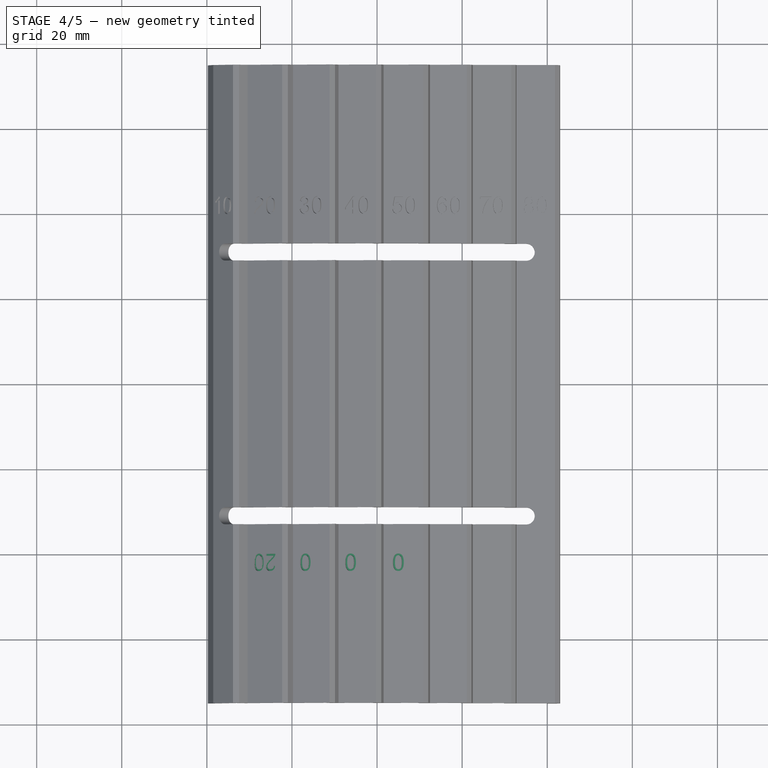
[diagram: stage 4 of 5 — top view after this stage's code; geometry added in this stage tinted green]
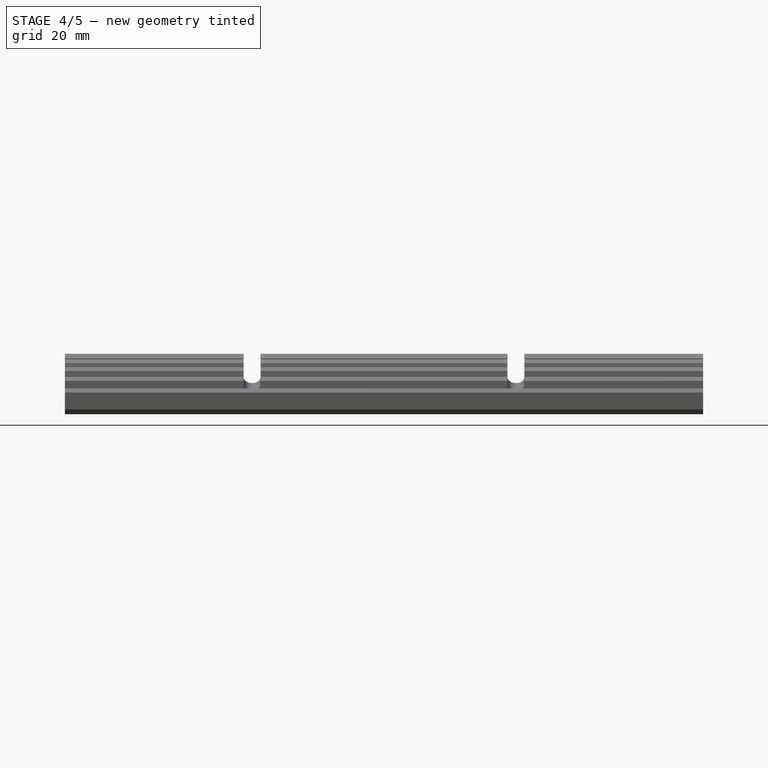
[diagram: stage 4 of 5 — right view after this stage's code; geometry added in this stage tinted green]
FEATURE [PartDesign::PolarPattern] PolarPattern002
  Angle = 360
  Axis = -> DatumLine001
  BaseFeature = -> Pocket008
  Mode = 0
  Occurrences = 2
  Offset = 120
  Originals = -> [Pocket002]
  Refine = true
  SpacingPattern = [0]
  Spacings = [-1]
  Suppressed = false
  TransformMode = 0
FEATURE [PartDesign::PolarPattern] PolarPattern003
  Angle = 360
  Axis = -> DatumLine002
  BaseFeature = -> PolarPattern002
  Mode = 0
  Occurrences = 2
  Offset = 120
  Originals = -> [Pocket003]
  Refine = true
  SpacingPattern = [0]
  Spacings = [-1]
  Suppressed = false
  TransformMode = 0
FEATURE [PartDesign::PolarPattern] PolarPattern004
  Angle = 360
  Axis = -> DatumLine003
  BaseFeature = -> PolarPattern003
  Mode = 0
  Occurrences = 2
  Offset = 120
  Originals = -> [Pocket004]
  Refine = true
  SpacingPattern = [0]
  Spacings = [-1]
  Suppressed = false
  TransformMode = 0
FEATURE [PartDesign::PolarPattern] PolarPattern005
  Angle = 360
  Axis = -> DatumLine004
  BaseFeature = -> PolarPattern004
  Mode = 0
  Occurrences = 2
  Offset = 120
  Originals = -> [Pocket005]
  Refine = true
  SpacingPattern = [0]
  Spacings = [-1]
  Suppressed = false
  TransformMode = 0
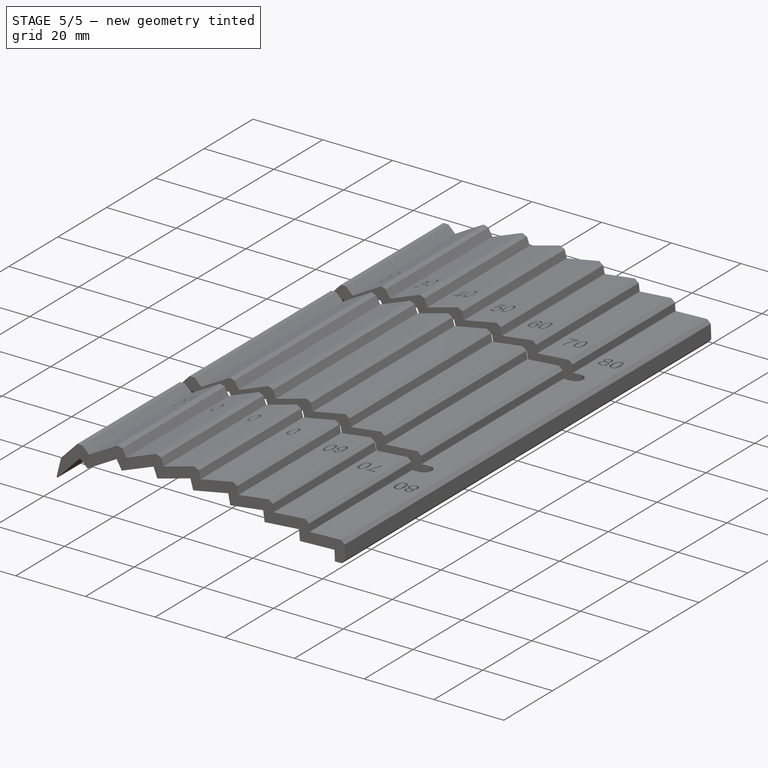
[diagram: stage 5 of 5 — iso view after this stage's code; geometry added in this stage tinted green]
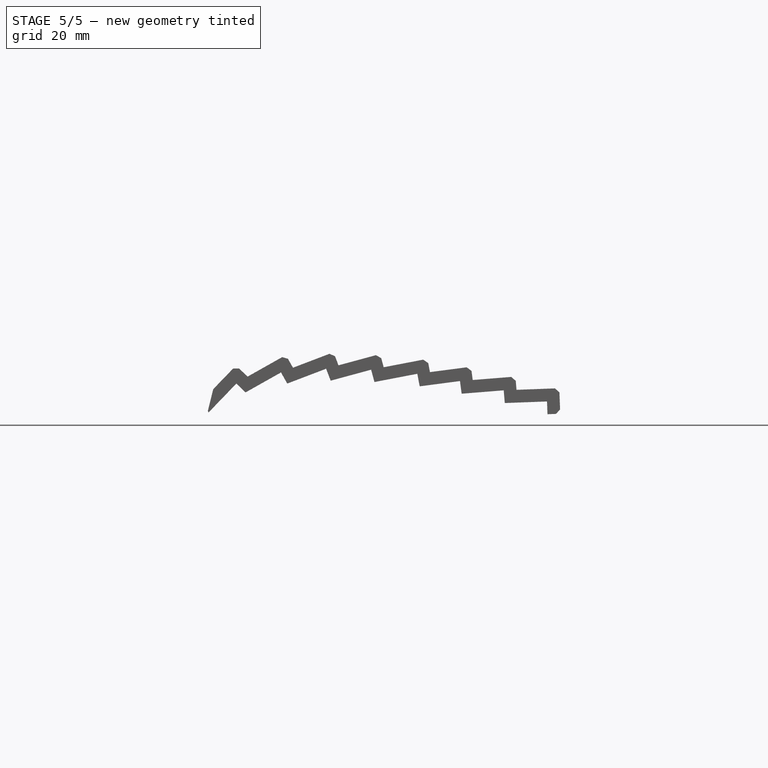
[diagram: stage 5 of 5 — front view after this stage's code; geometry added in this stage tinted green]
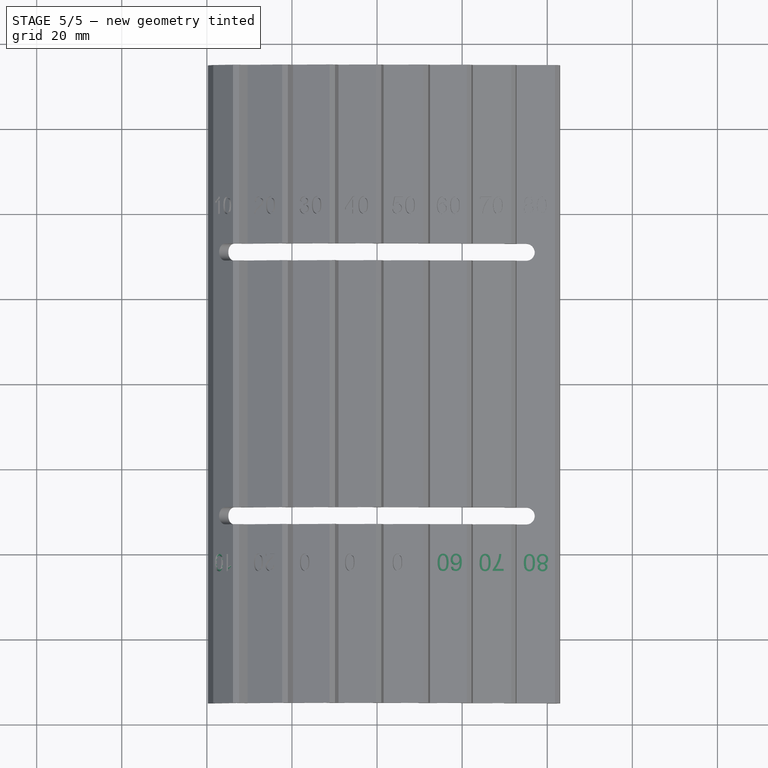
[diagram: stage 5 of 5 — top view after this stage's code; geometry added in this stage tinted green]
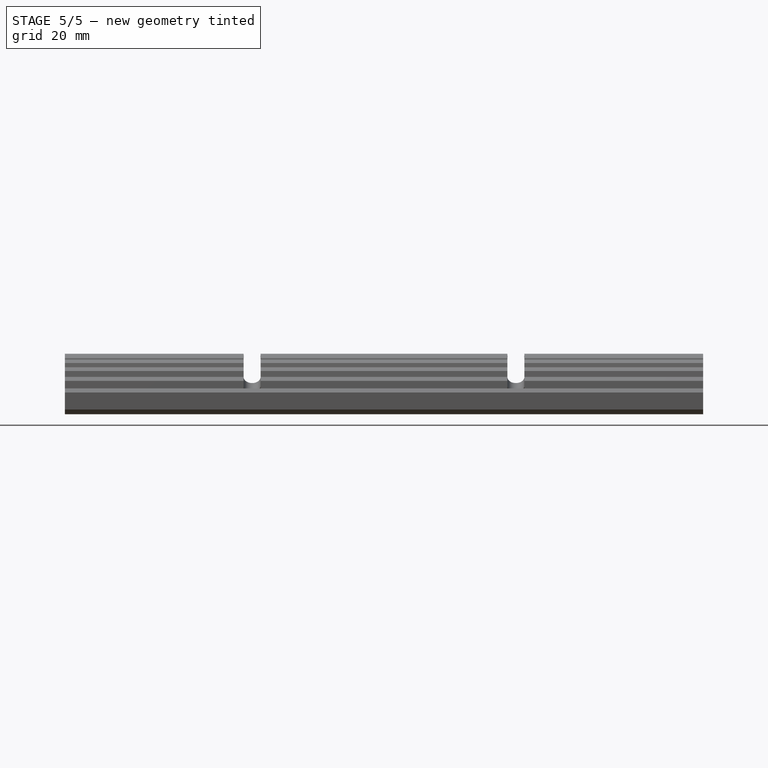
[diagram: stage 5 of 5 — right view after this stage's code; geometry added in this stage tinted green]
FEATURE [PartDesign::PolarPattern] PolarPattern006
  Angle = 360
  Axis = -> DatumLine005
  BaseFeature = -> PolarPattern005
  Mode = 0
  Occurrences = 2
  Offset = 120
  Originals = -> [Pocket006]
  Refine = true
  SpacingPattern = [0]
  Spacings = [-1]
  Suppressed = false
  TransformMode = 0
FEATURE [PartDesign::PolarPattern] PolarPattern007
  Angle = 360
  Axis = -> DatumLine006
  BaseFeature = -> PolarPattern006
  Mode = 0
  Occurrences = 2
  Offset = 120
  Originals = -> [Pocket007]
  Refine = true
  SpacingPattern = [0]
  Spacings = [-1]
  Suppressed = false
  TransformMode = 0
FEATURE [PartDesign::PolarPattern] PolarPattern008
  Angle = 360
  Axis = -> DatumLine007
  BaseFeature = -> PolarPattern007
  Mode = 0
  Occurrences = 2
  Offset = 120
  Originals = -> [Pocket008]
  Refine = true
  SpacingPattern = [0]
  Spacings = [-1]
  Suppressed = false
  TransformMode = 0
FEATURE [PartDesign::PolarPattern] PolarPattern009
  Angle = 360
  Axis = -> DatumLine
  BaseFeature = -> PolarPattern008
  Mode = 0
  Occurrences = 2
  Offset = 120
  Originals = -> [Pocket001]
  Refine = true
  SpacingPattern = [0]
  Spacings = [-1]
  Suppressed = false
  TransformMode = 0
FEATURE [Sketcher::SketchObject] Sketch003
  ArcFitTolerance = 1e-06
  AttachmentSupport = -> [PolarPattern009]
  ExternalGeometry = -> [PolarPattern009]
  ExternalTypes = [0,0]
  FullyConstrained = false
  MakeInternals = false
  MapMode = 5
  Placement = pos=(0.0396427,0,-0.00980862) rot=(0.524704,-0.524704,-0.670352;1.96049rad)
  _ExternalGeoVersion = 0
  sketch-geometry (748):
    g0: ArcOfCircle CenterX=74 CenterY=1.53676 CenterZ=0 NormalX=0 NormalY=0 NormalZ=1 AngleXU=0 Radius=0.2 StartAngle=3.14159 EndAngle=6.28319
    g1: ArcOfCircle CenterX=74 CenterY=3.03676 CenterZ=0 NormalX=0 NormalY=0 NormalZ=1 AngleXU=0 Radius=0.2 StartAngle=1e-16 EndAngle=3.14159
    g2: LineSegment StartX=73.8 StartY=1.53676 StartZ=0 EndX=73.8 EndY=3.03676 EndZ=0
    g3: LineSegment StartX=74.2 StartY=1.53676 StartZ=0 EndX=74.2 EndY=3.03676 EndZ=0
    g4: ArcOfCircle CenterX=73 CenterY=1.53676 CenterZ=0 NormalX=0 NormalY=0 NormalZ=1 AngleXU=0 Radius=0.2 StartAngle=3.14159 EndAngle=6.28319
    g5: ArcOfCircle CenterX=73 CenterY=3.41176 CenterZ=0 NormalX=0 NormalY=0 NormalZ=1 AngleXU=0 Radius=0.2 StartAngle=0 EndAngle=3.14159
    g6: LineSegment StartX=72.8 StartY=1.53676 StartZ=0 EndX=72.8 EndY=3.41176 EndZ=0
    g7: LineSegment StartX=73.2 StartY=1.53676 StartZ=0 EndX=73.2 EndY=3.41176 EndZ=0
    g8: ArcOfCircle CenterX=72 CenterY=1.53676 CenterZ=0 NormalX=0 NormalY=0 NormalZ=1 AngleXU=0 Radius=0.2 StartAngle=3.14159 EndAngle=6.28319
    g9: ArcOfCircle CenterX=72 CenterY=3.78676 CenterZ=0 NormalX=0 NormalY=0 NormalZ=1 AngleXU=0 Radius=0.2 StartAngle=7e-16 EndAngle=3.14159
    g10: LineSegment StartX=71.8 StartY=1.53676 StartZ=0 EndX=71.8 EndY=3.78676 EndZ=0
    g11: LineSegment StartX=72.2 StartY=1.53676 StartZ=0 EndX=72.2 EndY=3.78676 EndZ=0
    g12: ArcOfCircle CenterX=71 CenterY=1.53676 CenterZ=0 NormalX=0 NormalY=0 NormalZ=1 AngleXU=0 Radius=0.2 StartAngle=3.14159 EndAngle=6.28319
    g13: ArcOfCircle CenterX=71 CenterY=4.16176 CenterZ=0 NormalX=0 NormalY=0 NormalZ=1 AngleXU=0 Radius=0.2 StartAngle=-1.8e-15 EndAngle=3.14159
    g14: LineSegment StartX=70.8 StartY=1.53676 StartZ=0 EndX=70.8 EndY=4.16176 EndZ=0
    g15: LineSegment StartX=71.2 StartY=1.53676 StartZ=0 EndX=71.2 EndY=4.16176 EndZ=0
    g16: ArcOfCircle CenterX=70 CenterY=1.53676 CenterZ=0 NormalX=0 NormalY=0 NormalZ=1 AngleXU=0 Radius=0.2 StartAngle=3.14159 EndAngle=6.28319
    g17: ArcOfCircle CenterX=70 CenterY=4.53676 CenterZ=0 NormalX=0 NormalY=0 NormalZ=1 AngleXU=0 Radius=0.2 StartAngle=0 EndAngle=3.14159
    g18: LineSegment StartX=69.8 StartY=1.53676 StartZ=0 EndX=69.8 EndY=4.53676 EndZ=0
    g19: LineSegment StartX=70.2 StartY=1.53676 StartZ=0 EndX=70.2 EndY=4.53676 EndZ=0
    g20: LineSegment [constr] StartX=74 StartY=1.53676 StartZ=0 EndX=73 EndY=1.53676 EndZ=0
    g21: LineSegment [constr] StartX=73 StartY=1.53676 StartZ=0 EndX=72 EndY=1.53676 EndZ=0
    g22: LineSegment [constr] StartX=72 StartY=1.53676 StartZ=0 EndX=71 EndY=1.53676 EndZ=0
    g23: LineSegment [constr] StartX=71 StartY=1.53676 StartZ=0 EndX=70 EndY=1.53676 EndZ=0
    g24: LineSegment [constr] StartX=70 StartY=1.53676 StartZ=0 EndX=69 EndY=1.53676 EndZ=0
    g25: LineSegment [constr] StartX=70 StartY=4.53676 StartZ=0 EndX=74 EndY=3.03676 EndZ=0
    g26: LineSegment [constr] StartX=74 StartY=3.03676 StartZ=0 EndX=75 EndY=2.66176 EndZ=0
    g27: ArcOfCircle CenterX=69 CenterY=1.53676 CenterZ=0 NormalX=0 NormalY=0 NormalZ=1 AngleXU=0 Radius=0.2 StartAngle=3.14159 EndAngle=6.28319
    g28: ArcOfCircle CenterX=69 CenterY=3.03676 CenterZ=0 NormalX=0 NormalY=0 NormalZ=1 AngleXU=0 Radius=0.2 StartAngle=0 EndAngle=3.14159
    g29: LineSegment StartX=68.8 StartY=1.53676 StartZ=0 EndX=68.8 EndY=3.03676 EndZ=0
    g30: LineSegment StartX=69.2 StartY=1.53676 StartZ=0 EndX=69.2 EndY=3.03676 EndZ=0
    g31: ArcOfCircle CenterX=68 CenterY=1.53676 CenterZ=0 NormalX=0 NormalY=0 NormalZ=1 AngleXU=0 Radius=0.2 StartAngle=3.14159 EndAngle=6.28319
    g32: ArcOfCircle CenterX=68 CenterY=3.41176 CenterZ=0 NormalX=0 NormalY=0 NormalZ=1 AngleXU=0 Radius=0.2 StartAngle=2.5e-15 EndAngle=3.14159
    g33: LineSegment StartX=67.8 StartY=1.53676 StartZ=0 EndX=67.8 EndY=3.41176 EndZ=0
    g34: LineSegment StartX=68.2 StartY=1.53676 StartZ=0 EndX=68.2 EndY=3.41176 EndZ=0
    g35: ArcOfCircle CenterX=67 CenterY=1.53676 CenterZ=0 NormalX=0 NormalY=0 NormalZ=1 AngleXU=0 Radius=0.2 StartAngle=3.14159 EndAngle=6.28319
    g36: ArcOfCircle CenterX=67 CenterY=3.78676 CenterZ=0 NormalX=0 NormalY=0 NormalZ=1 AngleXU=0 Radius=0.2 StartAngle=2.1e-15 EndAngle=3.14159
    g37: LineSegment StartX=66.8 StartY=1.53676 StartZ=0 EndX=66.8 EndY=3.78676 EndZ=0
    g38: LineSegment StartX=67.2 StartY=1.53676 StartZ=0 EndX=67.2 EndY=3.78676 EndZ=0
    g39: ArcOfCircle CenterX=66 CenterY=1.53676 CenterZ=0 NormalX=0 NormalY=0 NormalZ=1 AngleXU=0 Radius=0.2 StartAngle=3.14159 EndAngle=6.28319
    g40: ArcOfCircle CenterX=66 CenterY=4.16176 CenterZ=0 NormalX=0 NormalY=0 NormalZ=1 AngleXU=0 Radius=0.2 StartAngle=1.8e-15 EndAngle=3.14159
    g41: LineSegment StartX=65.8 StartY=1.53676 StartZ=0 EndX=65.8 EndY=4.16176 EndZ=0
    g42: LineSegment StartX=66.2 StartY=1.53676 StartZ=0 EndX=66.2 EndY=4.16176 EndZ=0
    g43: ArcOfCircle CenterX=65 CenterY=1.53676 CenterZ=0 NormalX=0 NormalY=0 NormalZ=1 AngleXU=0 Radius=0.2 StartAngle=3.14159 EndAngle=6.28319
    g44: ArcOfCircle CenterX=65 CenterY=4.53676 CenterZ=0 NormalX=0 NormalY=0 NormalZ=1 AngleXU=0 Radius=0.2 StartAngle=1.6e-15 EndAngle=3.14159
    g45: LineSegment StartX=64.8 StartY=1.53676 StartZ=0 EndX=64.8 EndY=4.53676 EndZ=0
    g46: LineSegment StartX=65.2 StartY=1.53676 StartZ=0 EndX=65.2 EndY=4.53676 EndZ=0
    g47: LineSegment [constr] StartX=69 StartY=1.53676 StartZ=0 EndX=68 EndY=1.53676 EndZ=0
    g48: LineSegment [constr] StartX=68 StartY=1.53676 StartZ=0 EndX=67 EndY=1.53676 EndZ=0
    g49: LineSegment [constr] StartX=67 StartY=1.53676 StartZ=0 EndX=66 EndY=1.53676 EndZ=0
    g50: LineSegment [constr] StartX=66 StartY=1.53676 StartZ=0 EndX=65 EndY=1.53676 EndZ=0
    g51: LineSegment [constr] StartX=65 StartY=4.53676 StartZ=0 EndX=69 EndY=3.03676 EndZ=0
    g52: ArcOfCircle CenterX=64 CenterY=1.53676 CenterZ=0 NormalX=0 NormalY=0 NormalZ=1 AngleXU=0 Radius=0.2 StartAngle=3.14159 EndAngle=6.28319
    g53: ArcOfCircle CenterX=64 CenterY=3.03676 CenterZ=0 NormalX=0 NormalY=0 NormalZ=1 AngleXU=0 Radius=0.2 StartAngle=0 EndAngle=3.14159
    g54: LineSegment StartX=63.8 StartY=1.53676 StartZ=0 EndX=63.8 EndY=3.03676 EndZ=0
    g55: LineSegment StartX=64.2 StartY=1.53676 StartZ=0 EndX=64.2 EndY=3.03676 EndZ=0
    g56: ArcOfCircle CenterX=63 CenterY=1.53676 CenterZ=0 NormalX=0 NormalY=0 NormalZ=1 AngleXU=0 Radius=0.2 StartAngle=3.14159 EndAngle=6.28319
    g57: ArcOfCircle CenterX=63 CenterY=3.41176 CenterZ=0 NormalX=0 NormalY=0 NormalZ=1 AngleXU=0 Radius=0.2 StartAngle=2.5e-15 EndAngle=3.14159
    g58: LineSegment StartX=62.8 StartY=1.53676 StartZ=0 EndX=62.8 EndY=3.41176 EndZ=0
    g59: LineSegment StartX=63.2 StartY=1.53676 StartZ=0 EndX=63.2 EndY=3.41176 EndZ=0
    g60: ArcOfCircle CenterX=62 CenterY=1.53676 CenterZ=0 NormalX=0 NormalY=0 NormalZ=1 AngleXU=0 Radius=0.2 StartAngle=3.14159 EndAngle=6.28319
    g61: ArcOfCircle CenterX=62 CenterY=3.78676 CenterZ=0 NormalX=0 NormalY=0 NormalZ=1 AngleXU=0 Radius=0.2 StartAngle=2.1e-15 EndAngle=3.14159
    g62: LineSegment StartX=61.8 StartY=1.53676 StartZ=0 EndX=61.8 EndY=3.78676 EndZ=0
    g63: LineSegment StartX=62.2 StartY=1.53676 StartZ=0 EndX=62.2 EndY=3.78676 EndZ=0
    g64: ArcOfCircle CenterX=61 CenterY=1.53676 CenterZ=0 NormalX=0 NormalY=0 NormalZ=1 AngleXU=0 Radius=0.2 StartAngle=3.14159 EndAngle=6.28319
    g65: ArcOfCircle CenterX=61 CenterY=4.16176 CenterZ=0 NormalX=0 NormalY=0 NormalZ=1 AngleXU=0 Radius=0.2 StartAngle=1.8e-15 EndAngle=3.14159
    g66: LineSegment StartX=60.8 StartY=1.53676 StartZ=0 EndX=60.8 EndY=4.16176 EndZ=0
    g67: LineSegment StartX=61.2 StartY=1.53676 StartZ=0 EndX=61.2 EndY=4.16176 EndZ=0
    g68: ArcOfCircle CenterX=60 CenterY=1.53676 CenterZ=0 NormalX=0 NormalY=0 NormalZ=1 AngleXU=0 Radius=0.2 StartAngle=3.14159 EndAngle=6.28319
    g69: ArcOfCircle CenterX=60 CenterY=4.53676 CenterZ=0 NormalX=0 NormalY=0 NormalZ=1 AngleXU=0 Radius=0.2 StartAngle=1.6e-15 EndAngle=3.14159
    g70: LineSegment StartX=59.8 StartY=1.53676 StartZ=0 EndX=59.8 EndY=4.53676 EndZ=0
    g71: LineSegment StartX=60.2 StartY=1.53676 StartZ=0 EndX=60.2 EndY=4.53676 EndZ=0
    g72: LineSegment [constr] StartX=64 StartY=1.53676 StartZ=0 EndX=63 EndY=1.53676 EndZ=0
    g73: LineSegment [constr] StartX=63 StartY=1.53676 StartZ=0 EndX=62 EndY=1.53676 EndZ=0
    g74: LineSegment [constr] StartX=62 StartY=1.53676 StartZ=0 EndX=61 EndY=1.53676 EndZ=0
    g75: LineSegment [constr] StartX=61 StartY=1.53676 StartZ=0 EndX=60 EndY=1.53676 EndZ=0
    g76: LineSegment [constr] StartX=60 StartY=4.53676 StartZ=0 EndX=64 EndY=3.03676 EndZ=0
    g77: ArcOfCircle CenterX=59 CenterY=1.53676 CenterZ=0 NormalX=0 NormalY=0 NormalZ=1 AngleXU=0 Radius=0.2 StartAngle=3.14159 EndAngle=6.28319
    g78: ArcOfCircle CenterX=59 CenterY=3.03676 CenterZ=0 NormalX=0 NormalY=0 NormalZ=1 AngleXU=0 Radius=0.2 StartAngle=0 EndAngle=3.14159
    g79: LineSegment StartX=58.8 StartY=1.53676 StartZ=0 EndX=58.8 EndY=3.03676 EndZ=0
    g80: LineSegment StartX=59.2 StartY=1.53676 StartZ=0 EndX=59.2 EndY=3.03676 EndZ=0
    g81: ArcOfCircle CenterX=58 CenterY=1.53676 CenterZ=0 NormalX=0 NormalY=0 NormalZ=1 AngleXU=0 Radius=0.2 StartAngle=3.14159 EndAngle=6.28319
    g82: ArcOfCircle CenterX=58 CenterY=3.41176 CenterZ=0 NormalX=0 NormalY=0 NormalZ=1 AngleXU=0 Radius=0.2 StartAngle=2.5e-15 EndAngle=3.14159
    g83: LineSegment StartX=57.8 StartY=1.53676 StartZ=0 EndX=57.8 EndY=3.41176 EndZ=0
    g84: LineSegment StartX=58.2 StartY=1.53676 StartZ=0 EndX=58.2 EndY=3.41176 EndZ=0
    g85: ArcOfCircle CenterX=57 CenterY=1.53676 CenterZ=0 NormalX=0 NormalY=0 NormalZ=1 AngleXU=0 Radius=0.2 StartAngle=3.14159 EndAngle=6.28319
    g86: ArcOfCircle CenterX=57 CenterY=3.78676 CenterZ=0 NormalX=0 NormalY=0 NormalZ=1 AngleXU=0 Radius=0.2 StartAngle=2.1e-15 EndAngle=3.14159
    g87: LineSegment StartX=56.8 StartY=1.53676 StartZ=0 EndX=56.8 EndY=3.78676 EndZ=0
    g88: LineSegment StartX=57.2 StartY=1.53676 StartZ=0 EndX=57.2 EndY=3.78676 EndZ=0
    g89: ArcOfCircle CenterX=56 CenterY=1.53676 CenterZ=0 NormalX=0 NormalY=0 NormalZ=1 AngleXU=0 Radius=0.2 StartAngle=3.14159 EndAngle=6.28319
    g90: ArcOfCircle CenterX=56 CenterY=4.16176 CenterZ=0 NormalX=0 NormalY=0 NormalZ=1 AngleXU=0 Radius=0.2 StartAngle=1.8e-15 EndAngle=3.14159
    g91: LineSegment StartX=55.8 StartY=1.53676 StartZ=0 EndX=55.8 EndY=4.16176 EndZ=0
    g92: LineSegment StartX=56.2 StartY=1.53676 StartZ=0 EndX=56.2 EndY=4.16176 EndZ=0
    g93: ArcOfCircle CenterX=55 CenterY=1.53676 CenterZ=0 NormalX=0 NormalY=0 NormalZ=1 AngleXU=0 Radius=0.2 StartAngle=3.14159 EndAngle=6.28319
    g94: ArcOfCircle CenterX=55 CenterY=4.53676 CenterZ=0 NormalX=0 NormalY=0 NormalZ=1 AngleXU=0 Radius=0.2 StartAngle=1.6e-15 EndAngle=3.14159
    g95: LineSegment StartX=54.8 StartY=1.53676 StartZ=0 EndX=54.8 EndY=4.53676 EndZ=0
    g96: LineSegment StartX=55.2 StartY=1.53676 StartZ=0 EndX=55.2 EndY=4.53676 EndZ=0
    g97: LineSegment [constr] StartX=59 StartY=1.53676 StartZ=0 EndX=58 EndY=1.53676 EndZ=0
    g98: LineSegment [constr] StartX=58 StartY=1.53676 StartZ=0 EndX=57 EndY=1.53676 EndZ=0
    g99: LineSegment [constr] StartX=57 StartY=1.53676 StartZ=0 EndX=56 EndY=1.53676 EndZ=0
    g100: LineSegment [constr] StartX=56 StartY=1.53676 StartZ=0 EndX=55 EndY=1.53676 EndZ=0
    g101: LineSegment [constr] StartX=55 StartY=4.53676 StartZ=0 EndX=59 EndY=3.03676 EndZ=0
    g102: ArcOfCircle CenterX=54 CenterY=1.53676 CenterZ=0 NormalX=0 NormalY=0 NormalZ=1 AngleXU=0 Radius=0.2 StartAngle=3.14159 EndAngle=6.28319
    g103: ArcOfCircle CenterX=54 CenterY=3.03676 CenterZ=0 NormalX=0 NormalY=0 NormalZ=1 AngleXU=0 Radius=0.2 StartAngle=0 EndAngle=3.14159
    g104: LineSegment StartX=53.8 StartY=1.53676 StartZ=0 EndX=53.8 EndY=3.03676 EndZ=0
    g105: LineSegment StartX=54.2 StartY=1.53676 StartZ=0 EndX=54.2 EndY=3.03676 EndZ=0
    g106: ArcOfCircle CenterX=53 CenterY=1.53676 CenterZ=0 NormalX=0 NormalY=0 NormalZ=1 AngleXU=0 Radius=0.2 StartAngle=3.14159 EndAngle=6.28319
    g107: ArcOfCircle CenterX=53 CenterY=3.41176 CenterZ=0 NormalX=0 NormalY=0 NormalZ=1 AngleXU=0 Radius=0.2 StartAngle=2.5e-15 EndAngle=3.14159
    g108: LineSegment StartX=52.8 StartY=1.53676 StartZ=0 EndX=52.8 EndY=3.41176 EndZ=0
    g109: LineSegment StartX=53.2 StartY=1.53676 StartZ=0 EndX=53.2 EndY=3.41176 EndZ=0
    g110: ArcOfCircle CenterX=52 CenterY=1.53676 CenterZ=0 NormalX=0 NormalY=0 NormalZ=1 AngleXU=0 Radius=0.2 StartAngle=3.14159 EndAngle=6.28319
    g111: ArcOfCircle CenterX=52 CenterY=3.78676 CenterZ=0 NormalX=0 NormalY=0 NormalZ=1 AngleXU=0 Radius=0.2 StartAngle=2.1e-15 EndAngle=3.14159
    g112: LineSegment StartX=51.8 StartY=1.53676 StartZ=0 EndX=51.8 EndY=3.78676 EndZ=0
    g113: LineSegment StartX=52.2 StartY=1.53676 StartZ=0 EndX=52.2 EndY=3.78676 EndZ=0
    g114: ArcOfCircle CenterX=51 CenterY=1.53676 CenterZ=0 NormalX=0 NormalY=0 NormalZ=1 AngleXU=0 Radius=0.2 StartAngle=3.14159 EndAngle=6.28319
    g115: ArcOfCircle CenterX=51 CenterY=4.16176 CenterZ=0 NormalX=0 NormalY=0 NormalZ=1 AngleXU=0 Radius=0.2 StartAngle=1.8e-15 EndAngle=3.14159
    g116: LineSegment StartX=50.8 StartY=1.53676 StartZ=0 EndX=50.8 EndY=4.16176 EndZ=0
    g117: LineSegment StartX=51.2 StartY=1.53676 StartZ=0 EndX=51.2 EndY=4.16176 EndZ=0
    g118: ArcOfCircle CenterX=50 CenterY=1.53676 CenterZ=0 NormalX=0 NormalY=0 NormalZ=1 AngleXU=0 Radius=0.2 StartAngle=3.14159 EndAngle=6.28319
    g119: ArcOfCircle CenterX=50 CenterY=4.53676 CenterZ=0 NormalX=0 NormalY=0 NormalZ=1 AngleXU=0 Radius=0.2 StartAngle=1.6e-15 EndAngle=3.14159
    g120: LineSegment StartX=49.8 StartY=1.53676 StartZ=0 EndX=49.8 EndY=4.53676 EndZ=0
    g121: LineSegment StartX=50.2 StartY=1.53676 StartZ=0 EndX=50.2 EndY=4.53676 EndZ=0
    g122: LineSegment [constr] StartX=54 StartY=1.53676 StartZ=0 EndX=53 EndY=1.53676 EndZ=0
    g123: LineSegment [constr] StartX=53 StartY=1.53676 StartZ=0 EndX=52 EndY=1.53676 EndZ=0
    g124: LineSegment [constr] StartX=52 StartY=1.53676 StartZ=0 EndX=51 EndY=1.53676 EndZ=0
    g125: LineSegment [constr] StartX=51 StartY=1.53676 StartZ=0 EndX=50 EndY=1.53676 EndZ=0
    g126: LineSegment [constr] StartX=50 StartY=4.53676 StartZ=0 EndX=54 EndY=3.03676 EndZ=0
    g127: ArcOfCircle CenterX=49 CenterY=1.53676 CenterZ=0 NormalX=0 NormalY=0 NormalZ=1 AngleXU=0 Radius=0.2 StartAngle=3.14159 EndAngle=6.28319
    g128: ArcOfCircle CenterX=49 CenterY=3.03676 CenterZ=0 NormalX=0 NormalY=0 NormalZ=1 AngleXU=0 Radius=0.2 StartAngle=0 EndAngle=3.14159
    g129: LineSegment StartX=48.8 StartY=1.53676 StartZ=0 EndX=48.8 EndY=3.03676 EndZ=0
    g130: LineSegment StartX=49.2 StartY=1.53676 StartZ=0 EndX=49.2 EndY=3.03676 EndZ=0
    g131: ArcOfCircle CenterX=48 CenterY=1.53676 CenterZ=0 NormalX=0 NormalY=0 NormalZ=1 AngleXU=0 Radius=0.2 StartAngle=3.14159 EndAngle=6.28319
    g132: ArcOfCircle CenterX=48 CenterY=3.41176 CenterZ=0 NormalX=0 NormalY=0 NormalZ=1 AngleXU=0 Radius=0.2 StartAngle=2.5e-15 EndAngle=3.14159
    g133: LineSegment StartX=47.8 StartY=1.53676 StartZ=0 EndX=47.8 EndY=3.41176 EndZ=0
    g134: LineSegment StartX=48.2 StartY=1.53676 StartZ=0 EndX=48.2 EndY=3.41176 EndZ=0
    g135: ArcOfCircle CenterX=47 CenterY=1.53676 CenterZ=0 NormalX=0 NormalY=0 NormalZ=1 AngleXU=0 Radius=0.2 StartAngle=3.14159 EndAngle=6.28319
    g136: ArcOfCircle CenterX=47 CenterY=3.78676 CenterZ=0 NormalX=0 NormalY=0 NormalZ=1 AngleXU=0 Radius=0.2 StartAngle=2.1e-15 EndAngle=3.14159
    g137: LineSegment StartX=46.8 StartY=1.53676 StartZ=0 EndX=46.8 EndY=3.78676 EndZ=0
    g138: LineSegment StartX=47.2 StartY=1.53676 StartZ=0 EndX=47.2 EndY=3.78676 EndZ=0
    g139: ArcOfCircle CenterX=46 CenterY=1.53676 CenterZ=0 NormalX=0 NormalY=0 NormalZ=1 AngleXU=0 Radius=0.2 StartAngle=3.14159 EndAngle=6.28319
    g140: ArcOfCircle CenterX=46 CenterY=4.16176 CenterZ=0 NormalX=0 NormalY=0 NormalZ=1 AngleXU=0 Radius=0.2 StartAngle=1.8e-15 EndAngle=3.14159
    g141: LineSegment StartX=45.8 StartY=1.53676 StartZ=0 EndX=45.8 EndY=4.16176 EndZ=0
    g142: LineSegment StartX=46.2 StartY=1.53676 StartZ=0 EndX=46.2 EndY=4.16176 EndZ=0
    g143: ArcOfCircle CenterX=45 CenterY=1.53676 CenterZ=0 NormalX=0 NormalY=0 NormalZ=1 AngleXU=0 Radius=0.2 StartAngle=3.14159 EndAngle=6.28319
    g144: ArcOfCircle CenterX=45 CenterY=4.53676 CenterZ=0 NormalX=0 NormalY=0 NormalZ=1 AngleXU=0 Radius=0.2 StartAngle=1.6e-15 EndAngle=3.14159
    g145: LineSegment StartX=44.8 StartY=1.53676 StartZ=0 EndX=44.8 EndY=4.53676 EndZ=0
    g146: LineSegment StartX=45.2 StartY=1.53676 StartZ=0 EndX=45.2 EndY=4.53676 EndZ=0
    g147: LineSegment [constr] StartX=49 StartY=1.53676 StartZ=0 EndX=48 EndY=1.53676 EndZ=0
    g148: LineSegment [constr] StartX=48 StartY=1.53676 StartZ=0 EndX=47 EndY=1.53676 EndZ=0
    g149: LineSegment [constr] StartX=47 StartY=1.53676 StartZ=0 EndX=46 EndY=1.53676 EndZ=0
    g150: LineSegment [constr] StartX=46 StartY=1.53676 StartZ=0 EndX=45 EndY=1.53676 EndZ=0
    g151: LineSegment [constr] StartX=45 StartY=4.53676 StartZ=0 EndX=49 EndY=3.03676 EndZ=0
    g152: ArcOfCircle CenterX=44 CenterY=1.53676 CenterZ=0 NormalX=0 NormalY=0 NormalZ=1 AngleXU=0 Radius=0.2 StartAngle=3.14159 EndAngle=6.28319
    g153: ArcOfCircle CenterX=44 CenterY=3.03676 CenterZ=0 NormalX=0 NormalY=0 NormalZ=1 AngleXU=0 Radius=0.2 StartAngle=0 EndAngle=3.14159
    g154: LineSegment StartX=43.8 StartY=1.53676 StartZ=0 EndX=43.8 EndY=3.03676 EndZ=0
    g155: LineSegment StartX=44.2 StartY=1.53676 StartZ=0 EndX=44.2 EndY=3.03676 EndZ=0
    g156: ArcOfCircle CenterX=43 CenterY=1.53676 CenterZ=0 NormalX=0 NormalY=0 NormalZ=1 AngleXU=0 Radius=0.2 StartAngle=3.14159 EndAngle=6.28319
    g157: ArcOfCircle CenterX=43 CenterY=3.41176 CenterZ=0 NormalX=0 NormalY=0 NormalZ=1 AngleXU=0 Radius=0.2 StartAngle=2.5e-15 EndAngle=3.14159
    g158: LineSegment StartX=42.8 StartY=1.53676 StartZ=0 EndX=42.8 EndY=3.41176 EndZ=0
    g159: LineSegment StartX=43.2 StartY=1.53676 StartZ=0 EndX=43.2 EndY=3.41176 EndZ=0
    g160: ArcOfCircle CenterX=42 CenterY=1.53676 CenterZ=0 NormalX=0 NormalY=0 NormalZ=1 AngleXU=0 Radius=0.2 StartAngle=3.14159 EndAngle=6.28319
    g161: ArcOfCircle CenterX=42 CenterY=3.78676 CenterZ=0 NormalX=0 NormalY=0 NormalZ=1 AngleXU=0 Radius=0.2 StartAngle=2.1e-15 EndAngle=3.14159
    g162: LineSegment StartX=41.8 StartY=1.53676 StartZ=0 EndX=41.8 EndY=3.78676 EndZ=0
    g163: LineSegment StartX=42.2 StartY=1.53676 StartZ=0 EndX=42.2 EndY=3.78676 EndZ=0
    g164: ArcOfCircle CenterX=41 CenterY=1.53676 CenterZ=0 NormalX=0 NormalY=0 NormalZ=1 AngleXU=0 Radius=0.2 StartAngle=3.14159 EndAngle=6.28319
    g165: ArcOfCircle CenterX=41 CenterY=4.16176 CenterZ=0 NormalX=0 NormalY=0 NormalZ=1 AngleXU=0 Radius=0.2 StartAngle=1.8e-15 EndAngle=3.14159
    g166: LineSegment StartX=40.8 StartY=1.53676 StartZ=0 EndX=40.8 EndY=4.16176 EndZ=0
    g167: LineSegment StartX=41.2 StartY=1.53676 StartZ=0 EndX=41.2 EndY=4.16176 EndZ=0
    g168: ArcOfCircle CenterX=40 CenterY=1.53676 CenterZ=0 NormalX=0 NormalY=0 NormalZ=1 AngleXU=0 Radius=0.2 StartAngle=3.14159 EndAngle=6.28319
    g169: ArcOfCircle CenterX=40 CenterY=4.53676 CenterZ=0 NormalX=0 NormalY=0 NormalZ=1 AngleXU=0 Radius=0.2 StartAngle=1.6e-15 EndAngle=3.14159
    g170: LineSegment StartX=39.8 StartY=1.53676 StartZ=0 EndX=39.8 EndY=4.53676 EndZ=0
    g171: LineSegment StartX=40.2 StartY=1.53676 StartZ=0 EndX=40.2 EndY=4.53676 EndZ=0
    g172: LineSegment [constr] StartX=44 StartY=1.53676 StartZ=0 EndX=43 EndY=1.53676 EndZ=0
    g173: LineSegment [constr] StartX=43 StartY=1.53676 StartZ=0 EndX=42 EndY=1.53676 EndZ=0
    g174: LineSegment [constr] StartX=42 StartY=1.53676 StartZ=0 EndX=41 EndY=1.53676 EndZ=0
    g175: LineSegment [constr] StartX=41 StartY=1.53676 StartZ=0 EndX=40 EndY=1.53676 EndZ=0
    g176: LineSegment [constr] StartX=40 StartY=4.53676 StartZ=0 EndX=44 EndY=3.03676 EndZ=0
    g177: ArcOfCircle CenterX=39 CenterY=1.53676 CenterZ=0 NormalX=0 NormalY=0 NormalZ=1 AngleXU=0 Radius=0.2 StartAngle=3.14159 EndAngle=6.28319
    g178: ArcOfCircle CenterX=39 CenterY=3.03676 CenterZ=0 NormalX=0 NormalY=0 NormalZ=1 AngleXU=0 Radius=0.2 StartAngle=0 EndAngle=3.14159
    g179: LineSegment StartX=38.8 StartY=1.53676 StartZ=0 EndX=38.8 EndY=3.03676 EndZ=0
    g180: LineSegment StartX=39.2 StartY=1.53676 StartZ=0 EndX=39.2 EndY=3.03676 EndZ=0
    g181: ArcOfCircle CenterX=38 CenterY=1.53676 CenterZ=0 NormalX=0 NormalY=0 NormalZ=1 AngleXU=0 Radius=0.2 StartAngle=3.14159 EndAngle=6.28319
    g182: ArcOfCircle CenterX=38 CenterY=3.41176 CenterZ=0 NormalX=0 NormalY=0 NormalZ=1 AngleXU=0 Radius=0.2 StartAngle=2.5e-15 EndAngle=3.14159
    g183: LineSegment StartX=37.8 StartY=1.53676 StartZ=0 EndX=37.8 EndY=3.41176 EndZ=0
    g184: LineSegment StartX=38.2 StartY=1.53676 StartZ=0 EndX=38.2 EndY=3.41176 EndZ=0
    g185: ArcOfCircle CenterX=37 CenterY=1.53676 CenterZ=0 NormalX=0 NormalY=0 NormalZ=1 AngleXU=0 Radius=0.2 StartAngle=3.14159 EndAngle=6.28319
    g186: ArcOfCircle CenterX=37 CenterY=3.78676 CenterZ=0 NormalX=0 NormalY=0 NormalZ=1 AngleXU=0 Radius=0.2 StartAngle=2.1e-15 EndAngle=3.14159
    g187: LineSegment StartX=36.8 StartY=1.53676 StartZ=0 EndX=36.8 EndY=3.78676 EndZ=0
    g188: LineSegment StartX=37.2 StartY=1.53676 StartZ=0 EndX=37.2 EndY=3.78676 EndZ=0
    g189: ArcOfCircle CenterX=36 CenterY=1.53676 CenterZ=0 NormalX=0 NormalY=0 NormalZ=1 AngleXU=0 Radius=0.2 StartAngle=3.14159 EndAngle=6.28319
    g190: ArcOfCircle CenterX=36 CenterY=4.16176 CenterZ=0 NormalX=0 NormalY=0 NormalZ=1 AngleXU=0 Radius=0.2 StartAngle=1.8e-15 EndAngle=3.14159
    g191: LineSegment StartX=35.8 StartY=1.53676 StartZ=0 EndX=35.8 EndY=4.16176 EndZ=0
    g192: LineSegment StartX=36.2 StartY=1.53676 StartZ=0 EndX=36.2 EndY=4.16176 EndZ=0
    g193: ArcOfCircle CenterX=35 CenterY=1.53676 CenterZ=0 NormalX=0 NormalY=0 NormalZ=1 AngleXU=0 Radius=0.2 StartAngle=3.14159 EndAngle=6.28319
    g194: ArcOfCircle CenterX=35 CenterY=4.53676 CenterZ=0 NormalX=0 NormalY=0 NormalZ=1 AngleXU=0 Radius=0.2 StartAngle=1.6e-15 EndAngle=3.14159
    g195: LineSegment StartX=34.8 StartY=1.53676 StartZ=0 EndX=34.8 EndY=4.53676 EndZ=0
    g196: LineSegment StartX=35.2 StartY=1.53676 StartZ=0 EndX=35.2 EndY=4.53676 EndZ=0
    g197: LineSegment [constr] StartX=39 StartY=1.53676 StartZ=0 EndX=38 EndY=1.53676 EndZ=0
    g198: LineSegment [constr] StartX=38 StartY=1.53676 StartZ=0 EndX=37 EndY=1.53676 EndZ=0
    g199: LineSegment [constr] StartX=37 StartY=1.53676 StartZ=0 EndX=36 EndY=1.53676 EndZ=0
    g200: LineSegment [constr] StartX=36 StartY=1.53676 StartZ=0 EndX=35 EndY=1.53676 EndZ=0
    g201: LineSegment [constr] StartX=35 StartY=4.53676 StartZ=0 EndX=39 EndY=3.03676 EndZ=0
    g202: ArcOfCircle CenterX=34 CenterY=1.53676 CenterZ=0 NormalX=0 NormalY=0 NormalZ=1 AngleXU=0 Radius=0.2 StartAngle=3.14159 EndAngle=6.28319
    g203: ArcOfCircle CenterX=34 CenterY=3.03676 CenterZ=0 NormalX=0 NormalY=0 NormalZ=1 AngleXU=0 Radius=0.2 StartAngle=0 EndAngle=3.14159
    g204: LineSegment StartX=33.8 StartY=1.53676 StartZ=0 EndX=33.8 EndY=3.03676 EndZ=0
    g205: LineSegment StartX=34.2 StartY=1.53676 StartZ=0 EndX=34.2 EndY=3.03676 EndZ=0
    g206: ArcOfCircle CenterX=33 CenterY=1.53676 CenterZ=0 NormalX=0 NormalY=0 NormalZ=1 AngleXU=0 Radius=0.2 StartAngle=3.14159 EndAngle=6.28319
    g207: ArcOfCircle CenterX=33 CenterY=3.41176 CenterZ=0 NormalX=0 NormalY=0 NormalZ=1 AngleXU=0 Radius=0.2 StartAngle=2.5e-15 EndAngle=3.14159
    g208: LineSegment StartX=32.8 StartY=1.53676 StartZ=0 EndX=32.8 EndY=3.41176 EndZ=0
    g209: LineSegment StartX=33.2 StartY=1.53676 StartZ=0 EndX=33.2 EndY=3.41176 EndZ=0
    g210: ArcOfCircle CenterX=32 CenterY=1.53676 CenterZ=0 NormalX=0 NormalY=0 NormalZ=1 AngleXU=0 Radius=0.2 StartAngle=3.14159 EndAngle=6.28319
    g211: ArcOfCircle CenterX=32 CenterY=3.78676 CenterZ=0 NormalX=0 NormalY=0 NormalZ=1 AngleXU=0 Radius=0.2 StartAngle=2.1e-15 EndAngle=3.14159
    g212: LineSegment StartX=31.8 StartY=1.53676 StartZ=0 EndX=31.8 EndY=3.78676 EndZ=0
    g213: LineSegment StartX=32.2 StartY=1.53676 StartZ=0 EndX=32.2 EndY=3.78676 EndZ=0
    g214: ArcOfCircle CenterX=31 CenterY=1.53676 CenterZ=0 NormalX=0 NormalY=0 NormalZ=1 AngleXU=0 Radius=0.2 StartAngle=3.14159 EndAngle=6.28319
    g215: ArcOfCircle CenterX=31 CenterY=4.16176 CenterZ=0 NormalX=0 NormalY=0 NormalZ=1 AngleXU=0 Radius=0.2 StartAngle=4.5e-15 EndAngle=3.14159
    g216: LineSegment StartX=30.8 StartY=1.53676 StartZ=0 EndX=30.8 EndY=4.16176 EndZ=0
    g217: LineSegment StartX=31.2 StartY=1.53676 StartZ=0 EndX=31.2 EndY=4.16176 EndZ=0
    g218: ArcOfCircle CenterX=30 CenterY=1.53676 CenterZ=0 NormalX=0 NormalY=0 NormalZ=1 AngleXU=0 Radius=0.2 StartAngle=3.14159 EndAngle=6.28319
    g219: ArcOfCircle CenterX=30 CenterY=4.53676 CenterZ=0 NormalX=0 NormalY=0 NormalZ=1 AngleXU=0 Radius=0.2 StartAngle=3.9e-15 EndAngle=3.14159
    g220: LineSegment StartX=29.8 StartY=1.53676 StartZ=0 EndX=29.8 EndY=4.53676 EndZ=0
    g221: LineSegment StartX=30.2 StartY=1.53676 StartZ=0 EndX=30.2 EndY=4.53676 EndZ=0
    g222: LineSegment [constr] StartX=34 StartY=1.53676 StartZ=0 EndX=33 EndY=1.53676 EndZ=0
    g223: LineSegment [constr] StartX=33 StartY=1.53676 StartZ=0 EndX=32 EndY=1.53676 EndZ=0
    g224: LineSegment [constr] StartX=32 StartY=1.53676 StartZ=0 EndX=31 EndY=1.53676 EndZ=0
    g225: LineSegment [constr] StartX=31 StartY=1.53676 StartZ=0 EndX=30 EndY=1.53676 EndZ=0
    g226: LineSegment [constr] StartX=30 StartY=4.53676 StartZ=0 EndX=34 EndY=3.03676 EndZ=0
    g227: ArcOfCircle CenterX=29 CenterY=1.53676 CenterZ=0 NormalX=0 NormalY=0 NormalZ=1 AngleXU=0 Radius=0.2 StartAngle=3.14159 EndAngle=6.28319
    g228: ArcOfCircle CenterX=29 CenterY=3.03676 CenterZ=0 NormalX=0 NormalY=0 NormalZ=1 AngleXU=0 Radius=0.2 StartAngle=0 EndAngle=3.14159
    g229: LineSegment StartX=28.8 StartY=1.53676 StartZ=0 EndX=28.8 EndY=3.03676 EndZ=0
    g230: LineSegment StartX=29.2 StartY=1.53676 StartZ=0 EndX=29.2 EndY=3.03676 EndZ=0
    g231: ArcOfCircle CenterX=28 CenterY=1.53676 CenterZ=0 NormalX=0 NormalY=0 NormalZ=1 AngleXU=0 Radius=0.2 StartAngle=3.14159 EndAngle=6.28319
    g232: ArcOfCircle CenterX=28 CenterY=3.41176 CenterZ=0 NormalX=0 NormalY=0 NormalZ=1 AngleXU=0 Radius=0.2 StartAngle=6.3e-15 EndAngle=3.14159
    g233: LineSegment StartX=27.8 StartY=1.53676 StartZ=0 EndX=27.8 EndY=3.41176 EndZ=0
    g234: LineSegment StartX=28.2 StartY=1.53676 StartZ=0 EndX=28.2 EndY=3.41176 EndZ=0
    g235: ArcOfCircle CenterX=27 CenterY=1.53676 CenterZ=0 NormalX=0 NormalY=0 NormalZ=1 AngleXU=0 Radius=0.2 StartAngle=3.14159 EndAngle=6.28319
    g236: ArcOfCircle CenterX=27 CenterY=3.78676 CenterZ=0 NormalX=0 NormalY=0 NormalZ=1 AngleXU=0 Radius=0.2 StartAngle=5.2e-15 EndAngle=3.14159
    g237: LineSegment StartX=26.8 StartY=1.53676 StartZ=0 EndX=26.8 EndY=3.78676 EndZ=0
    g238: LineSegment StartX=27.2 StartY=1.53676 StartZ=0 EndX=27.2 EndY=3.78676 EndZ=0
    g239: ArcOfCircle CenterX=26 CenterY=1.53676 CenterZ=0 NormalX=0 NormalY=0 NormalZ=1 AngleXU=0 Radius=0.2 StartAngle=3.14159 EndAngle=6.28319
    g240: ArcOfCircle CenterX=26 CenterY=4.16176 CenterZ=0 NormalX=0 NormalY=0 NormalZ=1 AngleXU=0 Radius=0.2 StartAngle=4.5e-15 EndAngle=3.14159
    g241: LineSegment StartX=25.8 StartY=1.53676 StartZ=0 EndX=25.8 EndY=4.16176 EndZ=0
    g242: LineSegment StartX=26.2 StartY=1.53676 StartZ=0 EndX=26.2 EndY=4.16176 EndZ=0
    g243: ArcOfCircle CenterX=25 CenterY=1.53676 CenterZ=0 NormalX=0 NormalY=0 NormalZ=1 AngleXU=0 Radius=0.2 StartAngle=3.14159 EndAngle=6.28319
    g244: ArcOfCircle CenterX=25 CenterY=4.53676 CenterZ=0 NormalX=0 NormalY=0 NormalZ=1 AngleXU=0 Radius=0.2 StartAngle=3.9e-15 EndAngle=3.14159
    g245: LineSegment StartX=24.8 StartY=1.53676 StartZ=0 EndX=24.8 EndY=4.53676 EndZ=0
    g246: LineSegment StartX=25.2 StartY=1.53676 StartZ=0 EndX=25.2 EndY=4.53676 EndZ=0
    g247: LineSegment [constr] StartX=29 StartY=1.53676 StartZ=0 EndX=28 EndY=1.53676 EndZ=0
    g248: LineSegment [constr] StartX=28 StartY=1.53676 StartZ=0 EndX=27 EndY=1.53676 EndZ=0
    g249: LineSegment [constr] StartX=27 StartY=1.53676 StartZ=0 EndX=26 EndY=1.53676 EndZ=0
    g250: LineSegment [constr] StartX=26 StartY=1.53676 StartZ=0 EndX=25 EndY=1.53676 EndZ=0
    g251: LineSegment [constr] StartX=25 StartY=4.53676 StartZ=0 EndX=29 EndY=3.03676 EndZ=0
    g252: ArcOfCircle CenterX=24 CenterY=1.53676 CenterZ=0 NormalX=0 NormalY=0 NormalZ=1 AngleXU=0 Radius=0.2 StartAngle=3.14159 EndAngle=6.28319
    g253: ArcOfCircle CenterX=24 CenterY=3.03676 CenterZ=0 NormalX=0 NormalY=0 NormalZ=1 AngleXU=0 Radius=0.2 StartAngle=0 EndAngle=3.14159
    g254: LineSegment StartX=23.8 StartY=1.53676 StartZ=0 EndX=23.8 EndY=3.03676 EndZ=0
    g255: LineSegment StartX=24.2 StartY=1.53676 StartZ=0 EndX=24.2 EndY=3.03676 EndZ=0
    g256: ArcOfCircle CenterX=23 CenterY=1.53676 CenterZ=0 NormalX=0 NormalY=0 NormalZ=1 AngleXU=0 Radius=0.2 StartAngle=3.14159 EndAngle=6.28319
    g257: ArcOfCircle CenterX=23 CenterY=3.41176 CenterZ=0 NormalX=0 NormalY=0 NormalZ=1 AngleXU=0 Radius=0.2 StartAngle=6.3e-15 EndAngle=3.14159
    g258: LineSegment StartX=22.8 StartY=1.53676 StartZ=0 EndX=22.8 EndY=3.41176 EndZ=0
    g259: LineSegment StartX=23.2 StartY=1.53676 StartZ=0 EndX=23.2 EndY=3.41176 EndZ=0
    g260: ArcOfCircle CenterX=22 CenterY=1.53676 CenterZ=0 NormalX=0 NormalY=0 NormalZ=1 AngleXU=0 Radius=0.2 StartAngle=3.14159 EndAngle=6.28319
    g261: ArcOfCircle CenterX=22 CenterY=3.78676 CenterZ=0 NormalX=0 NormalY=0 NormalZ=1 AngleXU=0 Radius=0.2 StartAngle=5.2e-15 EndAngle=3.14159
    g262: LineSegment StartX=21.8 StartY=1.53676 StartZ=0 EndX=21.8 EndY=3.78676 EndZ=0
    g263: LineSegment StartX=22.2 StartY=1.53676 StartZ=0 EndX=22.2 EndY=3.78676 EndZ=0
    g264: ArcOfCircle CenterX=21 CenterY=1.53676 CenterZ=0 NormalX=0 NormalY=0 NormalZ=1 AngleXU=0 Radius=0.2 StartAngle=3.14159 EndAngle=6.28319
    g265: ArcOfCircle CenterX=21 CenterY=4.16176 CenterZ=0 NormalX=0 NormalY=0 NormalZ=1 AngleXU=0 Radius=0.2 StartAngle=4.5e-15 EndAngle=3.14159
    g266: LineSegment StartX=20.8 StartY=1.53676 StartZ=0 EndX=20.8 EndY=4.16176 EndZ=0
    g267: LineSegment StartX=21.2 StartY=1.53676 StartZ=0 EndX=21.2 EndY=4.16176 EndZ=0
    g268: ArcOfCircle CenterX=20 CenterY=1.53676 CenterZ=0 NormalX=0 NormalY=0 NormalZ=1 AngleXU=0 Radius=0.2 StartAngle=3.14159 EndAngle=6.28319
    g269: ArcOfCircle CenterX=20 CenterY=4.53676 CenterZ=0 NormalX=0 NormalY=0 NormalZ=1 AngleXU=0 Radius=0.2 StartAngle=3.9e-15 EndAngle=3.14159
    g270: LineSegment StartX=19.8 StartY=1.53676 StartZ=0 EndX=19.8 EndY=4.53676 EndZ=0
    g271: LineSegment StartX=20.2 StartY=1.53676 StartZ=0 EndX=20.2 EndY=4.53676 EndZ=0
    g272: LineSegment [constr] StartX=24 StartY=1.53676 StartZ=0 EndX=23 EndY=1.53676 EndZ=0
    g273: LineSegment [constr] StartX=23 StartY=1.53676 StartZ=0 EndX=22 EndY=1.53676 EndZ=0
    g274: LineSegment [constr] StartX=22 StartY=1.53676 StartZ=0 EndX=21 EndY=1.53676 EndZ=0
    g275: LineSegment [constr] StartX=21 StartY=1.53676 StartZ=0 EndX=20 EndY=1.53676 EndZ=0
    g276: LineSegment [constr] StartX=20 StartY=4.53676 StartZ=0 EndX=24 EndY=3.03676 EndZ=0
    g277: ArcOfCircle CenterX=19 CenterY=1.53676 CenterZ=0 NormalX=0 NormalY=0 NormalZ=1 AngleXU=0 Radius=0.2 StartAngle=3.14159 EndAngle=6.28319
    g278: ArcOfCircle CenterX=19 CenterY=3.03676 CenterZ=0 NormalX=0 NormalY=0 NormalZ=1 AngleXU=0 Radius=0.2 StartAngle=0 EndAngle=3.14159
    g279: LineSegment StartX=18.8 StartY=1.53676 StartZ=0 EndX=18.8 EndY=3.03676 EndZ=0
    g280: LineSegment StartX=19.2 StartY=1.53676 StartZ=0 EndX=19.2 EndY=3.03676 EndZ=0
    g281: ArcOfCircle CenterX=18 CenterY=1.53676 CenterZ=0 NormalX=0 NormalY=0 NormalZ=1 AngleXU=0 Radius=0.2 StartAngle=3.14159 EndAngle=6.28319
    g282: ArcOfCircle CenterX=18 CenterY=3.41176 CenterZ=0 NormalX=0 NormalY=0 NormalZ=1 AngleXU=0 Radius=0.2 StartAngle=6.3e-15 EndAngle=3.14159
    g283: LineSegment StartX=17.8 StartY=1.53676 StartZ=0 EndX=17.8 EndY=3.41176 EndZ=0
    g284: LineSegment StartX=18.2 StartY=1.53676 StartZ=0 EndX=18.2 EndY=3.41176 EndZ=0
    g285: ArcOfCircle CenterX=17 CenterY=1.53676 CenterZ=0 NormalX=0 NormalY=0 NormalZ=1 AngleXU=0 Radius=0.2 StartAngle=3.14159 EndAngle=6.28319
    g286: ArcOfCircle CenterX=17 CenterY=3.78676 CenterZ=0 NormalX=0 NormalY=0 NormalZ=1 AngleXU=0 Radius=0.2 StartAngle=5.2e-15 EndAngle=3.14159
    g287: LineSegment StartX=16.8 StartY=1.53676 StartZ=0 EndX=16.8 EndY=3.78676 EndZ=0
    g288: LineSegment StartX=17.2 StartY=1.53676 StartZ=0 EndX=17.2 EndY=3.78676 EndZ=0
    g289: ArcOfCircle CenterX=16 CenterY=1.53676 CenterZ=0 NormalX=0 NormalY=0 NormalZ=1 AngleXU=0 Radius=0.2 StartAngle=3.14159 EndAngle=6.28319
    g290: ArcOfCircle CenterX=16 CenterY=4.16176 CenterZ=0 NormalX=0 NormalY=0 NormalZ=1 AngleXU=0 Radius=0.2 StartAngle=4.5e-15 EndAngle=3.14159
    g291: LineSegment StartX=15.8 StartY=1.53676 StartZ=0 EndX=15.8 EndY=4.16176 EndZ=0
    g292: LineSegment StartX=16.2 StartY=1.53676 StartZ=0 EndX=16.2 EndY=4.16176 EndZ=0
    g293: ArcOfCircle CenterX=15 CenterY=1.53676 CenterZ=0 NormalX=0 NormalY=0 NormalZ=1 AngleXU=0 Radius=0.2 StartAngle=3.14159 EndAngle=6.28319
    g294: ArcOfCircle CenterX=15 CenterY=4.53676 CenterZ=0 NormalX=0 NormalY=0 NormalZ=1 AngleXU=0 Radius=0.2 StartAngle=3.3e-15 EndAngle=3.14159
    g295: LineSegment StartX=14.8 StartY=1.53676 StartZ=0 EndX=14.8 EndY=4.53676 EndZ=0
    g296: LineSegment StartX=15.2 StartY=1.53676 StartZ=0 EndX=15.2 EndY=4.53676 EndZ=0
    g297: LineSegment [constr] StartX=19 StartY=1.53676 StartZ=0 EndX=18 EndY=1.53676 EndZ=0
    g298: LineSegment [constr] StartX=18 StartY=1.53676 StartZ=0 EndX=17 EndY=1.53676 EndZ=0
    g299: LineSegment [constr] StartX=17 StartY=1.53676 StartZ=0 EndX=16 EndY=1.53676 EndZ=0
    g300: LineSegment [constr] StartX=16 StartY=1.53676 StartZ=0 EndX=15 EndY=1.53676 EndZ=0
    g301: LineSegment [constr] StartX=15 StartY=4.53676 StartZ=0 EndX=19 EndY=3.03676 EndZ=0
    g302: ArcOfCircle CenterX=14 CenterY=1.53676 CenterZ=0 NormalX=0 NormalY=0 NormalZ=1 AngleXU=0 Radius=0.2 StartAngle=3.14159 EndAngle=6.28319
    g303: ArcOfCircle CenterX=14 CenterY=3.03676 CenterZ=0 NormalX=0 NormalY=0 NormalZ=1 AngleXU=0 Radius=0.2 StartAngle=0 EndAngle=3.14159
    g304: LineSegment StartX=13.8 StartY=1.53676 StartZ=0 EndX=13.8 EndY=3.03676 EndZ=0
    g305: LineSegment StartX=14.2 StartY=1.53676 StartZ=0 EndX=14.2 EndY=3.03676 EndZ=0
    g306: ArcOfCircle CenterX=13 CenterY=1.53676 CenterZ=0 NormalX=0 NormalY=0 NormalZ=1 AngleXU=0 Radius=0.2 StartAngle=3.14159 EndAngle=6.28319
    g307: ArcOfCircle CenterX=13 CenterY=3.41176 CenterZ=0 NormalX=0 NormalY=0 NormalZ=1 AngleXU=0 Radius=0.2 StartAngle=5.3e-15 EndAngle=3.14159
    g308: LineSegment StartX=12.8 StartY=1.53676 StartZ=0 EndX=12.8 EndY=3.41176 EndZ=0
    g309: LineSegment StartX=13.2 StartY=1.53676 StartZ=0 EndX=13.2 EndY=3.41176 EndZ=0
    g310: ArcOfCircle CenterX=12 CenterY=1.53676 CenterZ=0 NormalX=0 NormalY=0 NormalZ=1 AngleXU=0 Radius=0.2 StartAngle=3.14159 EndAngle=6.28319
    g311: ArcOfCircle CenterX=12 CenterY=3.78676 CenterZ=0 NormalX=0 NormalY=0 NormalZ=1 AngleXU=0 Radius=0.2 StartAngle=4.4e-15 EndAngle=3.14159
    g312: LineSegment StartX=11.8 StartY=1.53676 StartZ=0 EndX=11.8 EndY=3.78676 EndZ=0
    g313: LineSegment StartX=12.2 StartY=1.53676 StartZ=0 EndX=12.2 EndY=3.78676 EndZ=0
    g314: ArcOfCircle CenterX=11 CenterY=1.53676 CenterZ=0 NormalX=0 NormalY=0 NormalZ=1 AngleXU=0 Radius=0.2 StartAngle=3.14159 EndAngle=6.28319
    g315: ArcOfCircle CenterX=11 CenterY=4.16176 CenterZ=0 NormalX=0 NormalY=0 NormalZ=1 AngleXU=0 Radius=0.2 StartAngle=3.8e-15 EndAngle=3.14159
    g316: LineSegment StartX=10.8 StartY=1.53676 StartZ=0 EndX=10.8 EndY=4.16176 EndZ=0
    g317: LineSegment StartX=11.2 StartY=1.53676 StartZ=0 EndX=11.2 EndY=4.16176 EndZ=0
    g318: ArcOfCircle CenterX=10 CenterY=1.53676 CenterZ=0 NormalX=0 NormalY=0 NormalZ=1 AngleXU=0 Radius=0.2 StartAngle=3.14159 EndAngle=6.28319
    g319: ArcOfCircle CenterX=10 CenterY=4.53676 CenterZ=0 NormalX=0 NormalY=0 NormalZ=1 AngleXU=0 Radius=0.2 StartAngle=3.3e-15 EndAngle=3.14159
    g320: LineSegment StartX=9.8 StartY=1.53676 StartZ=0 EndX=9.8 EndY=4.53676 EndZ=0
    g321: LineSegment StartX=10.2 StartY=1.53676 StartZ=0 EndX=10.2 EndY=4.53676 EndZ=0
    g322: LineSegment [constr] StartX=14 StartY=1.53676 StartZ=0 EndX=13 EndY=1.53676 EndZ=0
    g323: LineSegment [constr] StartX=13 StartY=1.53676 StartZ=0 EndX=12 EndY=1.53676 EndZ=0
    g324: LineSegment [constr] StartX=12 StartY=1.53676 StartZ=0 EndX=11 EndY=1.53676 EndZ=0
    g325: LineSegment [constr] StartX=11 StartY=1.53676 StartZ=0 EndX=10 EndY=1.53676 EndZ=0
    g326: LineSegment [constr] StartX=10 StartY=4.53676 StartZ=0 EndX=14 EndY=3.03676 EndZ=0
    g327: ArcOfCircle CenterX=9 CenterY=1.53676 CenterZ=0 NormalX=0 NormalY=0 NormalZ=1 AngleXU=0 Radius=0.2 StartAngle=3.14159 EndAngle=6.28319
    g328: ArcOfCircle CenterX=9 CenterY=3.03676 CenterZ=0 NormalX=0 NormalY=0 NormalZ=1 AngleXU=0 Radius=0.2 StartAngle=0 EndAngle=3.14159
    g329: LineSegment StartX=8.8 StartY=1.53676 StartZ=0 EndX=8.8 EndY=3.03676 EndZ=0
    g330: LineSegment StartX=9.2 StartY=1.53676 StartZ=0 EndX=9.2 EndY=3.03676 EndZ=0
    g331: ArcOfCircle CenterX=8 CenterY=1.53676 CenterZ=0 NormalX=0 NormalY=0 NormalZ=1 AngleXU=0 Radius=0.2 StartAngle=3.14159 EndAngle=6.28319
    g332: ArcOfCircle CenterX=8 CenterY=3.41176 CenterZ=0 NormalX=0 NormalY=0 NormalZ=1 AngleXU=0 Radius=0.2 StartAngle=5.3e-15 EndAngle=3.14159
    g333: LineSegment StartX=7.8 StartY=1.53676 StartZ=0 EndX=7.8 EndY=3.41176 EndZ=0
    g334: LineSegment StartX=8.2 StartY=1.53676 StartZ=0 EndX=8.2 EndY=3.41176 EndZ=0
    g335: ArcOfCircle CenterX=7 CenterY=1.53676 CenterZ=0 NormalX=0 NormalY=0 NormalZ=1 AngleXU=0 Radius=0.2 StartAngle=3.14159 EndAngle=6.28319
    g336: ArcOfCircle CenterX=7 CenterY=3.78676 CenterZ=0 NormalX=0 NormalY=0 NormalZ=1 AngleXU=0 Radius=0.2 StartAngle=4e-15 EndAngle=3.14159
    g337: LineSegment StartX=6.8 StartY=1.53676 StartZ=0 EndX=6.8 EndY=3.78676 EndZ=0
    g338: LineSegment StartX=7.2 StartY=1.53676 StartZ=0 EndX=7.2 EndY=3.78676 EndZ=0
    g339: ArcOfCircle CenterX=6 CenterY=1.53676 CenterZ=0 NormalX=0 NormalY=0 NormalZ=1 AngleXU=0 Radius=0.2 StartAngle=3.14159 EndAngle=6.28319
    g340: ArcOfCircle CenterX=6 CenterY=4.16176 CenterZ=0 NormalX=0 NormalY=0 NormalZ=1 AngleXU=0 Radius=0.2 StartAngle=3.5e-15 EndAngle=3.14159
    g341: LineSegment StartX=5.8 StartY=1.53676 StartZ=0 EndX=5.8 EndY=4.16176 EndZ=0
    g342: LineSegment StartX=6.2 StartY=1.53676 StartZ=0 EndX=6.2 EndY=4.16176 EndZ=0
    g343: ArcOfCircle CenterX=5 CenterY=1.53676 CenterZ=0 NormalX=0 NormalY=0 NormalZ=1 AngleXU=0 Radius=0.2 StartAngle=3.14159 EndAngle=6.28319
    g344: ArcOfCircle CenterX=5 CenterY=4.53676 CenterZ=0 NormalX=0 NormalY=0 NormalZ=1 AngleXU=0 Radius=0.2 StartAngle=3e-15 EndAngle=3.14159
    g345: LineSegment StartX=4.8 StartY=1.53676 StartZ=0 EndX=4.8 EndY=4.53676 EndZ=0
    g346: LineSegment StartX=5.2 StartY=1.53676 StartZ=0 EndX=5.2 EndY=4.53676 EndZ=0
    g347: LineSegment [constr] StartX=9 StartY=1.53676 StartZ=0 EndX=8 EndY=1.53676 EndZ=0
    g348: LineSegment [constr] StartX=8 StartY=1.53676 StartZ=0 EndX=7 EndY=1.53676 EndZ=0
    g349: LineSegment [constr] StartX=7 StartY=1.53676 StartZ=0 EndX=6 EndY=1.53676 EndZ=0
    g350: LineSegment [constr] StartX=6 StartY=1.53676 StartZ=0 EndX=5 EndY=1.53676 EndZ=0
    g351: LineSegment [constr] StartX=5 StartY=4.53676 StartZ=0 EndX=9 EndY=3.03676 EndZ=0
    g352: ArcOfCircle CenterX=4 CenterY=1.53676 CenterZ=0 NormalX=0 NormalY=0 NormalZ=1 AngleXU=0 Radius=0.2 StartAngle=3.14159 EndAngle=6.28319
    g353: ArcOfCircle CenterX=4 CenterY=3.03676 CenterZ=0 NormalX=0 NormalY=0 NormalZ=1 AngleXU=0 Radius=0.2 StartAngle=0 EndAngle=3.14159
    g354: LineSegment StartX=3.8 StartY=1.53676 StartZ=0 EndX=3.8 EndY=3.03676 EndZ=0
    g355: LineSegment StartX=4.2 StartY=1.53676 StartZ=0 EndX=4.2 EndY=3.03676 EndZ=0
    g356: ArcOfCircle CenterX=3 CenterY=1.53676 CenterZ=0 NormalX=0 NormalY=0 NormalZ=1 AngleXU=0 Radius=0.2 StartAngle=3.14159 EndAngle=6.28319
    g357: ArcOfCircle CenterX=3 CenterY=3.41176 CenterZ=0 NormalX=0 NormalY=0 NormalZ=1 AngleXU=0 Radius=0.2 StartAngle=4.9e-15 EndAngle=3.14159
    g358: LineSegment StartX=2.8 StartY=1.53676 StartZ=0 EndX=2.8 EndY=3.41176 EndZ=0
    g359: LineSegment StartX=3.2 StartY=1.53676 StartZ=0 EndX=3.2 EndY=3.41176 EndZ=0
    g360: ArcOfCircle CenterX=2 CenterY=1.53676 CenterZ=0 NormalX=0 NormalY=0 NormalZ=1 AngleXU=0 Radius=0.2 StartAngle=3.14159 EndAngle=6.28319
    g361: ArcOfCircle CenterX=2 CenterY=3.78676 CenterZ=0 NormalX=0 NormalY=0 NormalZ=1 AngleXU=0 Radius=0.2 StartAngle=4e-15 EndAngle=3.14159
    g362: LineSegment StartX=1.8 StartY=1.53676 StartZ=0 EndX=1.8 EndY=3.78676 EndZ=0
    g363: LineSegment StartX=2.2 StartY=1.53676 StartZ=0 EndX=2.2 EndY=3.78676 EndZ=0
    g364: ArcOfCircle CenterX=1 CenterY=1.53676 CenterZ=0 NormalX=0 NormalY=0 NormalZ=1 AngleXU=0 Radius=0.2 StartAngle=3.14159 EndAngle=6.28319
    g365: ArcOfCircle CenterX=1 CenterY=4.16176 CenterZ=0 NormalX=0 NormalY=0 NormalZ=1 AngleXU=0 Radius=0.2 StartAngle=3.6e-15 EndAngle=3.14159
    g366: LineSegment StartX=0.8 StartY=1.53676 StartZ=0 EndX=0.8 EndY=4.16176 EndZ=0
    g367: LineSegment StartX=1.2 StartY=1.53676 StartZ=0 EndX=1.2 EndY=4.16176 EndZ=0
    g368: ArcOfCircle CenterX=0 CenterY=1.53676 CenterZ=0 NormalX=0 NormalY=0 NormalZ=1 AngleXU=0 Radius=0.2 StartAngle=3.14159 EndAngle=6.28319
    g369: ArcOfCircle CenterX=0 CenterY=4.53676 CenterZ=0 NormalX=0 NormalY=0 NormalZ=1 AngleXU=0 Radius=0.2 StartAngle=3.1e-15 EndAngle=3.14159
    g370: LineSegment StartX=-0.2 StartY=1.53676 StartZ=0 EndX=-0.2 EndY=4.53676 EndZ=0
    g371: LineSegment StartX=0.2 StartY=1.53676 StartZ=0 EndX=0.2 EndY=4.53676 EndZ=0
    g372: LineSegment [constr] StartX=4 StartY=1.53676 StartZ=0 EndX=3 EndY=1.53676 EndZ=0
    g373: LineSegment [constr] StartX=3 StartY=1.53676 StartZ=0 EndX=2 EndY=1.53676 EndZ=0
    g374: LineSegment [constr] StartX=2 StartY=1.53676 StartZ=0 EndX=1 EndY=1.53676 EndZ=0
    g375: LineSegment [constr] StartX=1 StartY=1.53676 StartZ=0 EndX=0 EndY=1.53676 EndZ=0
    g376: LineSegment [constr] StartX=0 StartY=4.53676 StartZ=0 EndX=4 EndY=3.03676 EndZ=0
    g377: ArcOfCircle CenterX=-1 CenterY=1.53676 CenterZ=0 NormalX=0 NormalY=0 NormalZ=1 AngleXU=0 Radius=0.2 StartAngle=3.14159 EndAngle=6.28319
    g378: ArcOfCircle CenterX=-1 CenterY=3.03676 CenterZ=0 NormalX=0 NormalY=0 NormalZ=1 AngleXU=0 Radius=0.2 StartAngle=0 EndAngle=3.14159
    g379: LineSegment StartX=-1.2 StartY=1.53676 StartZ=0 EndX=-1.2 EndY=3.03676 EndZ=0
    g380: LineSegment StartX=-0.8 StartY=1.53676 StartZ=0 EndX=-0.8 EndY=3.03676 EndZ=0
    g381: ArcOfCircle CenterX=-2 CenterY=1.53676 CenterZ=0 NormalX=0 NormalY=0 NormalZ=1 AngleXU=0 Radius=0.2 StartAngle=3.14159 EndAngle=6.28319
    g382: ArcOfCircle CenterX=-2 CenterY=3.41176 CenterZ=0 NormalX=0 NormalY=0 NormalZ=1 AngleXU=0 Radius=0.2 StartAngle=5.1e-15 EndAngle=3.14159
    g383: LineSegment StartX=-2.2 StartY=1.53676 StartZ=0 EndX=-2.2 EndY=3.41176 EndZ=0
    g384: LineSegment StartX=-1.8 StartY=1.53676 StartZ=0 EndX=-1.8 EndY=3.41176 EndZ=0
    g385: ArcOfCircle CenterX=-3 CenterY=1.53676 CenterZ=0 NormalX=0 NormalY=0 NormalZ=1 AngleXU=0 Radius=0.2 StartAngle=3.14159 EndAngle=6.28319
    g386: ArcOfCircle CenterX=-3 CenterY=3.78676 CenterZ=0 NormalX=0 NormalY=0 NormalZ=1 AngleXU=0 Radius=0.2 StartAngle=4e-15 EndAngle=3.14159
    g387: LineSegment StartX=-3.2 StartY=1.53676 StartZ=0 EndX=-3.2 EndY=3.78676 EndZ=0
    g388: LineSegment StartX=-2.8 StartY=1.53676 StartZ=0 EndX=-2.8 EndY=3.78676 EndZ=0
    g389: ArcOfCircle CenterX=-4 CenterY=1.53676 CenterZ=0 NormalX=0 NormalY=0 NormalZ=1 AngleXU=0 Radius=0.2 StartAngle=3.14159 EndAngle=6.28319
    g390: ArcOfCircle CenterX=-4 CenterY=4.16176 CenterZ=0 NormalX=0 NormalY=0 NormalZ=1 AngleXU=0 Radius=0.2 StartAngle=3.5e-15 EndAngle=3.14159
    g391: LineSegment StartX=-4.2 StartY=1.53676 StartZ=0 EndX=-4.2 EndY=4.16176 EndZ=0
    g392: LineSegment StartX=-3.8 StartY=1.53676 StartZ=0 EndX=-3.8 EndY=4.16176 EndZ=0
    g393: ArcOfCircle CenterX=-5 CenterY=1.53676 CenterZ=0 NormalX=0 NormalY=0 NormalZ=1 AngleXU=0 Radius=0.2 StartAngle=3.14159 EndAngle=6.28319
    g394: ArcOfCircle CenterX=-5 CenterY=4.53676 CenterZ=0 NormalX=0 NormalY=0 NormalZ=1 AngleXU=0 Radius=0.2 StartAngle=3e-15 EndAngle=3.14159
    g395: LineSegment StartX=-5.2 StartY=1.53676 StartZ=0 EndX=-5.2 EndY=4.53676 EndZ=0
    g396: LineSegment StartX=-4.8 StartY=1.53676 StartZ=0 EndX=-4.8 EndY=4.53676 EndZ=0
    g397: LineSegment [constr] StartX=-1 StartY=1.53676 StartZ=0 EndX=-2 EndY=1.53676 EndZ=0
    g398: LineSegment [constr] StartX=-2 StartY=1.53676 StartZ=0 EndX=-3 EndY=1.53676 EndZ=0
    g399: LineSegment [constr] StartX=-3 StartY=1.53676 StartZ=0 EndX=-4 EndY=1.53676 EndZ=0
    ... +348 more geometry lines
  constraints (1737):
    c: Tangent(g0,g2) = 1.5708
    c: Tangent(g0,g3) = -1.5708
    c: Tangent(g1,g2) = 1.5708
    c: Tangent(g1,g3) = -1.5708
    c: Equal(g0,g1)
    c: DistanceX(g0,g-3) = 1
    c: DistanceY(g3,g3) = 1.5
    c: Vertical(g3)
    c: Radius(g1) = 0.2
    c: Distance(g0,g-3) = 0.4
    c: Tangent(g4,g6) = 1.5708
    c: Tangent(g4,g7) = -1.5708
    c: Tangent(g5,g6) = 1.5708
    c: Tangent(g5,g7) = -1.5708
    c: Equal(g4,g5)
    c: Vertical(g6)
    c: Tangent(g8,g10) = 1.5708
    c: Tangent(g8,g11) = -1.5708
    c: Tangent(g9,g10) = 1.5708
    c: Tangent(g9,g11) = -1.5708
    c: Equal(g8,g9)
    c: Vertical(g10)
    c: Tangent(g12,g14) = 1.5708
    c: Tangent(g12,g15) = -1.5708
    c: Tangent(g13,g14) = 1.5708
    c: Tangent(g13,g15) = -1.5708
    c: Equal(g12,g13)
    c: Vertical(g14)
    c: Tangent(g16,g18) = 1.5708
    c: Tangent(g16,g19) = -1.5708
    c: Tangent(g17,g18) = 1.5708
    c: Tangent(g17,g19) = -1.5708
    c: Equal(g16,g17)
    c: Vertical(g18)
    c: Equal(g16,g12)
    c: Equal(g8,g4)
    c: Equal(g0,g4)
    c: Horizontal(g16,g12)
    c: Horizontal(g12,g8)
    c: Horizontal(g8,g4)
    c: Horizontal(g4,g0)
    c: Coincident(g20,g0)
    c: Coincident(g20,g4)
    c: Coincident(g21,g4)
    c: Coincident(g21,g8)
    c: Coincident(g22,g8)
    c: Coincident(g22,g12)
    c: Coincident(g23,g12)
    c: Coincident(g23,g16)
    c: Coincident(g24,g16)
    c: Equal(g20,g21)
    c: Equal(g21,g22)
    c: Equal(g22,g23)
    c: Equal(g23,g24)
    c: Equal(g8,g12)
    c: Distance(g4,g0) = 1
    c: Coincident(g25,g17)
    c: Coincident(g25,g1)
    c: PointOnObject(g13,g25)
    c: PointOnObject(g9,g25)
    c: PointOnObject(g5,g25)
    c: Distance(g16,g17) = 3
    c: Coincident(g26,g1)
    c: Vertical(g-3,g26)
    c: PointOnObject(g26,g25)
    c: Horizontal(g24)
    c: Tangent(g27,g29) = 1.5708
    c: Tangent(g52,g54) = 1.5708
    c: Tangent(g77,g79) = 1.5708
    c: Tangent(g102,g104) = 1.5708
    c: Tangent(g127,g129) = 1.5708
    c: Tangent(g152,g154) = 1.5708
    c: Tangent(g177,g179) = 1.5708
    c: Tangent(g202,g204) = 1.5708
    c: Tangent(g227,g229) = 1.5708
    c: Tangent(g252,g254) = 1.5708
    c: Tangent(g277,g279) = 1.5708
    c: Tangent(g302,g304) = 1.5708
    c: Tangent(g327,g329) = 1.5708
    c: Tangent(g352,g354) = 1.5708
    c: Tangent(g377,g379) = 1.5708
    c: Tangent(g402,g404) = 1.5708
    c: Tangent(g427,g429) = 1.5708
    c: Tangent(g452,g454) = 1.5708
    c: Tangent(g477,g479) = 1.5708
    c: Tangent(g502,g504) = 1.5708
    c: Tangent(g527,g529) = 1.5708
    c: Tangent(g552,g554) = 1.5708
    c: Tangent(g577,g579) = 1.5708
    c: Tangent(g602,g604) = 1.5708
    c: Tangent(g627,g629) = 1.5708
    c: Tangent(g652,g654) = 1.5708
    c: Tangent(g677,g679) = 1.5708
    c: Tangent(g702,g704) = 1.5708
    c: Tangent(g727,g729) = 1.5708
    c: Tangent(g27,g30) = -1.5708
    c: Tangent(g52,g55) = -1.5708
    c: Tangent(g77,g80) = -1.5708
    c: Tangent(g102,g105) = -1.5708
    c: Tangent(g127,g130) = -1.5708
    c: Tangent(g152,g155) = -1.5708
    c: Tangent(g177,g180) = -1.5708
    c: Tangent(g202,g205) = -1.5708
    c: Tangent(g227,g230) = -1.5708
    c: Tangent(g252,g255) = -1.5708
    c: Tangent(g277,g280) = -1.5708
    c: Tangent(g302,g305) = -1.5708
    c: Tangent(g327,g330) = -1.5708
    c: Tangent(g352,g355) = -1.5708
    c: Tangent(g377,g380) = -1.5708
    c: Tangent(g402,g405) = -1.5708
    c: Tangent(g427,g430) = -1.5708
    c: Tangent(g452,g455) = -1.5708
    c: Tangent(g477,g480) = -1.5708
    c: Tangent(g502,g505) = -1.5708
    c: Tangent(g527,g530) = -1.5708
    c: Tangent(g552,g555) = -1.5708
    c: Tangent(g577,g580) = -1.5708
    c: Tangent(g602,g605) = -1.5708
    c: Tangent(g627,g630) = -1.5708
    c: Tangent(g652,g655) = -1.5708
    c: Tangent(g677,g680) = -1.5708
    c: Tangent(g702,g705) = -1.5708
    c: Tangent(g727,g730) = -1.5708
    c: Tangent(g28,g29) = 1.5708
    c: Tangent(g53,g54) = 1.5708
    c: Tangent(g78,g79) = 1.5708
    c: Tangent(g103,g104) = 1.5708
    c: Tangent(g128,g129) = 1.5708
    c: Tangent(g153,g154) = 1.5708
    c: Tangent(g178,g179) = 1.5708
    c: Tangent(g203,g204) = 1.5708
    c: Tangent(g228,g229) = 1.5708
    c: Tangent(g253,g254) = 1.5708
    c: Tangent(g278,g279) = 1.5708
    c: Tangent(g303,g304) = 1.5708
    c: Tangent(g328,g329) = 1.5708
    c: Tangent(g353,g354) = 1.5708
    c: Tangent(g378,g379) = 1.5708
    c: Tangent(g403,g404) = 1.5708
    c: Tangent(g428,g429) = 1.5708
    c: Tangent(g453,g454) = 1.5708
    c: Tangent(g478,g479) = 1.5708
    c: Tangent(g503,g504) = 1.5708
    c: Tangent(g528,g529) = 1.5708
    c: Tangent(g553,g554) = 1.5708
    c: Tangent(g578,g579) = 1.5708
    c: Tangent(g603,g604) = 1.5708
    c: Tangent(g628,g629) = 1.5708
    c: Tangent(g653,g654) = 1.5708
    c: Tangent(g678,g679) = 1.5708
    c: Tangent(g703,g704) = 1.5708
    c: Tangent(g728,g729) = 1.5708
    c: Tangent(g28,g30) = -1.5708
    c: Tangent(g53,g55) = -1.5708
    c: Tangent(g78,g80) = -1.5708
    c: Tangent(g103,g105) = -1.5708
    c: Tangent(g128,g130) = -1.5708
    c: Tangent(g153,g155) = -1.5708
    c: Tangent(g178,g180) = -1.5708
    c: Tangent(g203,g205) = -1.5708
    c: Tangent(g228,g230) = -1.5708
    c: Tangent(g253,g255) = -1.5708
    c: Tangent(g278,g280) = -1.5708
    c: Tangent(g303,g305) = -1.5708
    c: Tangent(g328,g330) = -1.5708
    c: Tangent(g353,g355) = -1.5708
    c: Tangent(g378,g380) = -1.5708
    c: Tangent(g403,g405) = -1.5708
    c: Tangent(g428,g430) = -1.5708
    c: Tangent(g453,g455) = -1.5708
    c: Tangent(g478,g480) = -1.5708
    c: Tangent(g503,g505) = -1.5708
    c: Tangent(g528,g530) = -1.5708
    c: Tangent(g553,g555) = -1.5708
    c: Tangent(g578,g580) = -1.5708
    c: Tangent(g603,g605) = -1.5708
    c: Tangent(g628,g630) = -1.5708
    c: Tangent(g653,g655) = -1.5708
    c: Tangent(g678,g680) = -1.5708
    c: Tangent(g703,g705) = -1.5708
    c: Tangent(g728,g730) = -1.5708
    c: Equal(g27,g28)
    c: Equal(g52,g53)
    c: Equal(g77,g78)
    c: Equal(g102,g103)
    c: Equal(g127,g128)
    c: Equal(g152,g153)
    c: Equal(g177,g178)
    c: Equal(g202,g203)
    c: Equal(g227,g228)
    c: Equal(g252,g253)
    c: Equal(g277,g278)
    c: Equal(g302,g303)
    c: Equal(g327,g328)
    c: Equal(g352,g353)
    c: Equal(g377,g378)
    c: Equal(g402,g403)
    c: Equal(g427,g428)
    c: Equal(g452,g453)
    c: Equal(g477,g478)
    c: Equal(g502,g503)
    c: Equal(g527,g528)
    c: Equal(g552,g553)
    c: Equal(g577,g578)
    c: Equal(g602,g603)
    c: Equal(g627,g628)
    c: Equal(g652,g653)
    c: Equal(g677,g678)
    c: Equal(g702,g703)
    c: Equal(g727,g728)
    c: Equal(g3,g30)
    c: Equal(g3,g55)
    c: Equal(g3,g80)
    c: Equal(g3,g105)
    c: Equal(g3,g130)
    c: Equal(g3,g155)
    c: Equal(g3,g180)
    c: Equal(g3,g205)
    c: Equal(g3,g230)
    c: Equal(g3,g255)
    c: Equal(g3,g280)
    c: Equal(g3,g305)
    c: Equal(g3,g330)
    c: Equal(g3,g355)
    c: Equal(g3,g380)
    c: Equal(g3,g405)
    c: Equal(g3,g430)
    c: Equal(g3,g455)
    c: Equal(g3,g480)
    c: Equal(g3,g505)
    c: Equal(g3,g530)
    c: Equal(g3,g555)
    c: Equal(g3,g580)
    c: Equal(g3,g605)
    c: Equal(g3,g630)
    c: Equal(g3,g655)
    c: Equal(g3,g680)
    c: Equal(g3,g705)
    c: Equal(g3,g730)
    c: Vertical(g30)
    c: Vertical(g55)
    c: Vertical(g80)
    c: Vertical(g105)
    c: Vertical(g130)
    c: Vertical(g155)
    c: Vertical(g180)
    c: Vertical(g205)
    c: Vertical(g230)
    c: Vertical(g255)
    c: Vertical(g280)
    c: Vertical(g305)
    c: Vertical(g330)
    c: Vertical(g355)
    c: Vertical(g380)
    c: Vertical(g405)
    c: Vertical(g430)
    c: Vertical(g455)
    c: Vertical(g480)
    c: Vertical(g505)
    c: Vertical(g530)
    c: Vertical(g555)
    c: Vertical(g580)
    c: Vertical(g605)
    c: Vertical(g630)
    c: Vertical(g655)
    c: Vertical(g680)
    c: Vertical(g705)
    c: Vertical(g730)
    c: Equal(g1,g28)
    c: Equal(g1,g53)
    c: Equal(g1,g78)
    c: Equal(g1,g103)
    c: Equal(g1,g128)
    c: Equal(g1,g153)
    c: Equal(g1,g178)
    c: Equal(g1,g203)
    c: Equal(g1,g228)
    c: Equal(g1,g253)
    c: Equal(g1,g278)
    c: Equal(g1,g303)
    c: Equal(g1,g328)
    c: Equal(g1,g353)
    c: Equal(g1,g378)
    c: Equal(g1,g403)
    c: Equal(g1,g428)
    c: Equal(g1,g453)
    c: Equal(g1,g478)
    c: Equal(g1,g503)
    c: Equal(g1,g528)
    c: Equal(g1,g553)
    c: Equal(g1,g578)
    c: Equal(g1,g603)
    c: Equal(g1,g628)
    c: Equal(g1,g653)
    c: Equal(g1,g678)
    c: Equal(g1,g703)
    c: Equal(g1,g728)
    c: Tangent(g31,g33) = 1.5708
    c: Tangent(g56,g58) = 1.5708
    c: Tangent(g81,g83) = 1.5708
    c: Tangent(g106,g108) = 1.5708
    c: Tangent(g131,g133) = 1.5708
    c: Tangent(g156,g158) = 1.5708
    c: Tangent(g181,g183) = 1.5708
    c: Tangent(g206,g208) = 1.5708
    c: Tangent(g231,g233) = 1.5708
    c: Tangent(g256,g258) = 1.5708
    c: Tangent(g281,g283) = 1.5708
    c: Tangent(g306,g308) = 1.5708
    c: Tangent(g331,g333) = 1.5708
    c: Tangent(g356,g358) = 1.5708
    c: Tangent(g381,g383) = 1.5708
    c: Tangent(g406,g408) = 1.5708
    c: Tangent(g431,g433) = 1.5708
    c: Tangent(g456,g458) = 1.5708
    c: Tangent(g481,g483) = 1.5708
    c: Tangent(g506,g508) = 1.5708
    c: Tangent(g531,g533) = 1.5708
    c: Tangent(g556,g558) = 1.5708
    c: Tangent(g581,g583) = 1.5708
    c: Tangent(g606,g608) = 1.5708
    c: Tangent(g631,g633) = 1.5708
    c: Tangent(g656,g658) = 1.5708
    c: Tangent(g681,g683) = 1.5708
    c: Tangent(g706,g708) = 1.5708
    c: Tangent(g731,g733) = 1.5708
    c: Tangent(g31,g34) = -1.5708
    c: Tangent(g56,g59) = -1.5708
    c: Tangent(g81,g84) = -1.5708
    c: Tangent(g106,g109) = -1.5708
    c: Tangent(g131,g134) = -1.5708
    c: Tangent(g156,g159) = -1.5708
    c: Tangent(g181,g184) = -1.5708
    c: Tangent(g206,g209) = -1.5708
    c: Tangent(g231,g234) = -1.5708
    c: Tangent(g256,g259) = -1.5708
    c: Tangent(g281,g284) = -1.5708
    c: Tangent(g306,g309) = -1.5708
    c: Tangent(g331,g334) = -1.5708
    c: Tangent(g356,g359) = -1.5708
    c: Tangent(g381,g384) = -1.5708
    c: Tangent(g406,g409) = -1.5708
    c: Tangent(g431,g434) = -1.5708
    c: Tangent(g456,g459) = -1.5708
    c: Tangent(g481,g484) = -1.5708
    c: Tangent(g506,g509) = -1.5708
    c: Tangent(g531,g534) = -1.5708
    c: Tangent(g556,g559) = -1.5708
    c: Tangent(g581,g584) = -1.5708
    c: Tangent(g606,g609) = -1.5708
    c: Tangent(g631,g634) = -1.5708
    c: Tangent(g656,g659) = -1.5708
    c: Tangent(g681,g684) = -1.5708
    c: Tangent(g706,g709) = -1.5708
    c: Tangent(g731,g734) = -1.5708
    c: Tangent(g32,g33) = 1.5708
    c: Tangent(g57,g58) = 1.5708
    c: Tangent(g82,g83) = 1.5708
    c: Tangent(g107,g108) = 1.5708
    c: Tangent(g132,g133) = 1.5708
    c: Tangent(g157,g158) = 1.5708
    c: Tangent(g182,g183) = 1.5708
    c: Tangent(g207,g208) = 1.5708
    c: Tangent(g232,g233) = 1.5708
    c: Tangent(g257,g258) = 1.5708
    c: Tangent(g282,g283) = 1.5708
    c: Tangent(g307,g308) = 1.5708
    c: Tangent(g332,g333) = 1.5708
    c: Tangent(g357,g358) = 1.5708
    c: Tangent(g382,g383) = 1.5708
    c: Tangent(g407,g408) = 1.5708
    c: Tangent(g432,g433) = 1.5708
    c: Tangent(g457,g458) = 1.5708
    c: Tangent(g482,g483) = 1.5708
    c: Tangent(g507,g508) = 1.5708
    c: Tangent(g532,g533) = 1.5708
    c: Tangent(g557,g558) = 1.5708
    c: Tangent(g582,g583) = 1.5708
    c: Tangent(g607,g608) = 1.5708
    c: Tangent(g632,g633) = 1.5708
    c: Tangent(g657,g658) = 1.5708
    c: Tangent(g682,g683) = 1.5708
    c: Tangent(g707,g708) = 1.5708
    c: Tangent(g732,g733) = 1.5708
    c: Tangent(g32,g34) = -1.5708
    c: Tangent(g57,g59) = -1.5708
    c: Tangent(g82,g84) = -1.5708
    c: Tangent(g107,g109) = -1.5708
    c: Tangent(g132,g134) = -1.5708
    c: Tangent(g157,g159) = -1.5708
    c: Tangent(g182,g184) = -1.5708
    c: Tangent(g207,g209) = -1.5708
    c: Tangent(g232,g234) = -1.5708
    c: Tangent(g257,g259) = -1.5708
    c: Tangent(g282,g284) = -1.5708
    c: Tangent(g307,g309) = -1.5708
    c: Tangent(g332,g334) = -1.5708
    c: Tangent(g357,g359) = -1.5708
    c: Tangent(g382,g384) = -1.5708
    c: Tangent(g407,g409) = -1.5708
    c: Tangent(g432,g434) = -1.5708
    c: Tangent(g457,g459) = -1.5708
    c: Tangent(g482,g484) = -1.5708
    c: Tangent(g507,g509) = -1.5708
    c: Tangent(g532,g534) = -1.5708
    c: Tangent(g557,g559) = -1.5708
    c: Tangent(g582,g584) = -1.5708
    c: Tangent(g607,g609) = -1.5708
    c: Tangent(g632,g634) = -1.5708
    c: Tangent(g657,g659) = -1.5708
    c: Tangent(g682,g684) = -1.5708
    c: Tangent(g707,g709) = -1.5708
    c: Tangent(g732,g734) = -1.5708
    c: Equal(g31,g32)
    c: Equal(g56,g57)
    c: Equal(g81,g82)
    c: Equal(g106,g107)
    c: Equal(g131,g132)
    c: Equal(g156,g157)
    c: Equal(g181,g182)
    c: Equal(g206,g207)
    c: Equal(g231,g232)
    c: Equal(g256,g257)
    c: Equal(g281,g282)
    c: Equal(g306,g307)
    c: Equal(g331,g332)
    c: Equal(g356,g357)
    c: Equal(g381,g382)
    c: Equal(g406,g407)
    c: Equal(g431,g432)
    c: Equal(g456,g457)
    c: Equal(g481,g482)
    c: Equal(g506,g507)
    c: Equal(g531,g532)
    c: Equal(g556,g557)
    c: Equal(g581,g582)
    c: Equal(g606,g607)
    c: Equal(g631,g632)
    c: Equal(g656,g657)
    c: Equal(g681,g682)
    c: Equal(g706,g707)
    c: Equal(g731,g732)
    c: Vertical(g33)
    c: Vertical(g58)
    c: Vertical(g83)
    c: Vertical(g108)
    c: Vertical(g133)
    c: Vertical(g158)
    c: Vertical(g183)
    c: Vertical(g208)
    c: Vertical(g233)
    c: Vertical(g258)
    c: Vertical(g283)
    c: Vertical(g308)
    c: Vertical(g333)
    c: Vertical(g358)
    c: Vertical(g383)
    c: Vertical(g408)
    c: Vertical(g433)
    c: Vertical(g458)
    c: Vertical(g483)
    c: Vertical(g508)
    c: Vertical(g533)
    c: Vertical(g558)
    c: Vertical(g583)
    c: Vertical(g608)
    c: Vertical(g633)
    c: Vertical(g658)
    c: Vertical(g683)
    c: Vertical(g708)
    c: Vertical(g733)
    c: Tangent(g35,g37) = 1.5708
    c: Tangent(g60,g62) = 1.5708
    c: Tangent(g85,g87) = 1.5708
    c: Tangent(g110,g112) = 1.5708
    c: Tangent(g135,g137) = 1.5708
    c: Tangent(g160,g162) = 1.5708
    c: Tangent(g185,g187) = 1.5708
    c: Tangent(g210,g212) = 1.5708
    c: Tangent(g235,g237) = 1.5708
    c: Tangent(g260,g262) = 1.5708
    c: Tangent(g285,g287) = 1.5708
    c: Tangent(g310,g312) = 1.5708
    c: Tangent(g335,g337) = 1.5708
    c: Tangent(g360,g362) = 1.5708
    c: Tangent(g385,g387) = 1.5708
    c: Tangent(g410,g412) = 1.5708
    c: Tangent(g435,g437) = 1.5708
    c: Tangent(g460,g462) = 1.5708
    c: Tangent(g485,g487) = 1.5708
    c: Tangent(g510,g512) = 1.5708
    c: Tangent(g535,g537) = 1.5708
    c: Tangent(g560,g562) = 1.5708
    c: Tangent(g585,g587) = 1.5708
    c: Tangent(g610,g612) = 1.5708
    c: Tangent(g635,g637) = 1.5708
    c: Tangent(g660,g662) = 1.5708
    c: Tangent(g685,g687) = 1.5708
    c: Tangent(g710,g712) = 1.5708
    c: Tangent(g735,g737) = 1.5708
    c: Tangent(g35,g38) = -1.5708
    c: Tangent(g60,g63) = -1.5708
    c: Tangent(g85,g88) = -1.5708
    c: Tangent(g110,g113) = -1.5708
    c: Tangent(g135,g138) = -1.5708
    c: Tangent(g160,g163) = -1.5708
    c: Tangent(g185,g188) = -1.5708
    c: Tangent(g210,g213) = -1.5708
    c: Tangent(g235,g238) = -1.5708
    c: Tangent(g260,g263) = -1.5708
    c: Tangent(g285,g288) = -1.5708
    c: Tangent(g310,g313) = -1.5708
    c: Tangent(g335,g338) = -1.5708
    c: Tangent(g360,g363) = -1.5708
    c: Tangent(g385,g388) = -1.5708
    c: Tangent(g410,g413) = -1.5708
    c: Tangent(g435,g438) = -1.5708
    c: Tangent(g460,g463) = -1.5708
    c: Tangent(g485,g488) = -1.5708
    c: Tangent(g510,g513) = -1.5708
    c: Tangent(g535,g538) = -1.5708
    c: Tangent(g560,g563) = -1.5708
    c: Tangent(g585,g588) = -1.5708
    c: Tangent(g610,g613) = -1.5708
    c: Tangent(g635,g638) = -1.5708
    c: Tangent(g660,g663) = -1.5708
    c: Tangent(g685,g688) = -1.5708
    c: Tangent(g710,g713) = -1.5708
    c: Tangent(g735,g738) = -1.5708
    c: Tangent(g36,g37) = 1.5708
    c: Tangent(g61,g62) = 1.5708
    c: Tangent(g86,g87) = 1.5708
    c: Tangent(g111,g112) = 1.5708
    c: Tangent(g136,g137) = 1.5708
    c: Tangent(g161,g162) = 1.5708
    c: Tangent(g186,g187) = 1.5708
    c: Tangent(g211,g212) = 1.5708
    c: Tangent(g236,g237) = 1.5708
    c: Tangent(g261,g262) = 1.5708
    c: Tangent(g286,g287) = 1.5708
    c: Tangent(g311,g312) = 1.5708
    c: Tangent(g336,g337) = 1.5708
    c: Tangent(g361,g362) = 1.5708
    c: Tangent(g386,g387) = 1.5708
    c: Tangent(g411,g412) = 1.5708
    c: Tangent(g436,g437) = 1.5708
    c: Tangent(g461,g462) = 1.5708
    c: Tangent(g486,g487) = 1.5708
    c: Tangent(g511,g512) = 1.5708
    c: Tangent(g536,g537) = 1.5708
    c: Tangent(g561,g562) = 1.5708
    c: Tangent(g586,g587) = 1.5708
    c: Tangent(g611,g612) = 1.5708
    c: Tangent(g636,g637) = 1.5708
    c: Tangent(g661,g662) = 1.5708
    c: Tangent(g686,g687) = 1.5708
    c: Tangent(g711,g712) = 1.5708
    c: Tangent(g736,g737) = 1.5708
    c: Tangent(g36,g38) = -1.5708
    c: Tangent(g61,g63) = -1.5708
    c: Tangent(g86,g88) = -1.5708
    c: Tangent(g111,g113) = -1.5708
    c: Tangent(g136,g138) = -1.5708
    c: Tangent(g161,g163) = -1.5708
    c: Tangent(g186,g188) = -1.5708
    c: Tangent(g211,g213) = -1.5708
    c: Tangent(g236,g238) = -1.5708
    c: Tangent(g261,g263) = -1.5708
    c: Tangent(g286,g288) = -1.5708
    c: Tangent(g311,g313) = -1.5708
    c: Tangent(g336,g338) = -1.5708
    c: Tangent(g361,g363) = -1.5708
    c: Tangent(g386,g388) = -1.5708
    c: Tangent(g411,g413) = -1.5708
    c: Tangent(g436,g438) = -1.5708
    c: Tangent(g461,g463) = -1.5708
    c: Tangent(g486,g488) = -1.5708
    c: Tangent(g511,g513) = -1.5708
    c: Tangent(g536,g538) = -1.5708
    c: Tangent(g561,g563) = -1.5708
    c: Tangent(g586,g588) = -1.5708
    c: Tangent(g611,g613) = -1.5708
    c: Tangent(g636,g638) = -1.5708
    c: Tangent(g661,g663) = -1.5708
    c: Tangent(g686,g688) = -1.5708
    c: Tangent(g711,g713) = -1.5708
    c: Tangent(g736,g738) = -1.5708
    c: Equal(g35,g36)
    c: Equal(g60,g61)
    c: Equal(g85,g86)
    c: Equal(g110,g111)
    c: Equal(g135,g136)
    c: Equal(g160,g161)
    c: Equal(g185,g186)
    c: Equal(g210,g211)
    c: Equal(g235,g236)
    c: Equal(g260,g261)
    c: Equal(g285,g286)
    c: Equal(g310,g311)
    c: Equal(g335,g336)
    c: Equal(g360,g361)
    c: Equal(g385,g386)
    c: Equal(g410,g411)
    c: Equal(g435,g436)
    c: Equal(g460,g461)
    c: Equal(g485,g486)
    c: Equal(g510,g511)
    c: Equal(g535,g536)
    c: Equal(g560,g561)
    c: Equal(g585,g586)
    c: Equal(g610,g611)
    c: Equal(g635,g636)
    c: Equal(g660,g661)
    c: Equal(g685,g686)
    c: Equal(g710,g711)
    c: Equal(g735,g736)
    c: Vertical(g37)
    c: Vertical(g62)
    c: Vertical(g87)
    c: Vertical(g112)
    c: Vertical(g137)
    c: Vertical(g162)
    c: Vertical(g187)
    c: Vertical(g212)
    c: Vertical(g237)
    c: Vertical(g262)
    c: Vertical(g287)
    c: Vertical(g312)
    c: Vertical(g337)
    c: Vertical(g362)
    c: Vertical(g387)
    c: Vertical(g412)
    c: Vertical(g437)
    c: Vertical(g462)
    c: Vertical(g487)
    c: Vertical(g512)
    c: Vertical(g537)
    c: Vertical(g562)
    c: Vertical(g587)
    c: Vertical(g612)
    c: Vertical(g637)
    c: Vertical(g662)
    c: Vertical(g687)
    c: Vertical(g712)
    c: Vertical(g737)
    c: Tangent(g39,g41) = 1.5708
    c: Tangent(g64,g66) = 1.5708
    c: Tangent(g89,g91) = 1.5708
    c: Tangent(g114,g116) = 1.5708
    c: Tangent(g139,g141) = 1.5708
    c: Tangent(g164,g166) = 1.5708
    c: Tangent(g189,g191) = 1.5708
    c: Tangent(g214,g216) = 1.5708
    c: Tangent(g239,g241) = 1.5708
    c: Tangent(g264,g266) = 1.5708
    c: Tangent(g289,g291) = 1.5708
    c: Tangent(g314,g316) = 1.5708
    c: Tangent(g339,g341) = 1.5708
    c: Tangent(g364,g366) = 1.5708
    c: Tangent(g389,g391) = 1.5708
    c: Tangent(g414,g416) = 1.5708
    c: Tangent(g439,g441) = 1.5708
    c: Tangent(g464,g466) = 1.5708
    c: Tangent(g489,g491) = 1.5708
    c: Tangent(g514,g516) = 1.5708
    c: Tangent(g539,g541) = 1.5708
    c: Tangent(g564,g566) = 1.5708
    c: Tangent(g589,g591) = 1.5708
    c: Tangent(g614,g616) = 1.5708
    c: Tangent(g639,g641) = 1.5708
    c: Tangent(g664,g666) = 1.5708
    c: Tangent(g689,g691) = 1.5708
    c: Tangent(g714,g716) = 1.5708
    c: Tangent(g739,g741) = 1.5708
    c: Tangent(g39,g42) = -1.5708
    c: Tangent(g64,g67) = -1.5708
    c: Tangent(g89,g92) = -1.5708
    c: Tangent(g114,g117) = -1.5708
    c: Tangent(g139,g142) = -1.5708
    c: Tangent(g164,g167) = -1.5708
    c: Tangent(g189,g192) = -1.5708
    c: Tangent(g214,g217) = -1.5708
    c: Tangent(g239,g242) = -1.5708
    c: Tangent(g264,g267) = -1.5708
    c: Tangent(g289,g292) = -1.5708
    c: Tangent(g314,g317) = -1.5708
    c: Tangent(g339,g342) = -1.5708
    c: Tangent(g364,g367) = -1.5708
    c: Tangent(g389,g392) = -1.5708
    c: Tangent(g414,g417) = -1.5708
    c: Tangent(g439,g442) = -1.5708
    c: Tangent(g464,g467) = -1.5708
    c: Tangent(g489,g492) = -1.5708
    c: Tangent(g514,g517) = -1.5708
    c: Tangent(g539,g542) = -1.5708
    c: Tangent(g564,g567) = -1.5708
    c: Tangent(g589,g592) = -1.5708
    c: Tangent(g614,g617) = -1.5708
    c: Tangent(g639,g642) = -1.5708
    c: Tangent(g664,g667) = -1.5708
    c: Tangent(g689,g692) = -1.5708
    c: Tangent(g714,g717) = -1.5708
    c: Tangent(g739,g742) = -1.5708
    c: Tangent(g40,g41) = 1.5708
    c: Tangent(g65,g66) = 1.5708
    c: Tangent(g90,g91) = 1.5708
    c: Tangent(g115,g116) = 1.5708
    c: Tangent(g140,g141) = 1.5708
    c: Tangent(g165,g166) = 1.5708
    c: Tangent(g190,g191) = 1.5708
    c: Tangent(g215,g216) = 1.5708
    c: Tangent(g240,g241) = 1.5708
    c: Tangent(g265,g266) = 1.5708
    c: Tangent(g290,g291) = 1.5708
    c: Tangent(g315,g316) = 1.5708
    c: Tangent(g340,g341) = 1.5708
    c: Tangent(g365,g366) = 1.5708
    c: Tangent(g390,g391) = 1.5708
    c: Tangent(g415,g416) = 1.5708
    c: Tangent(g440,g441) = 1.5708
    c: Tangent(g465,g466) = 1.5708
    c: Tangent(g490,g491) = 1.5708
    c: Tangent(g515,g516) = 1.5708
    c: Tangent(g540,g541) = 1.5708
    c: Tangent(g565,g566) = 1.5708
    c: Tangent(g590,g591) = 1.5708
    c: Tangent(g615,g616) = 1.5708
    c: Tangent(g640,g641) = 1.5708
    c: Tangent(g665,g666) = 1.5708
    c: Tangent(g690,g691) = 1.5708
    c: Tangent(g715,g716) = 1.5708
    c: Tangent(g740,g741) = 1.5708
    c: Tangent(g40,g42) = -1.5708
    c: Tangent(g65,g67) = -1.5708
    c: Tangent(g90,g92) = -1.5708
    c: Tangent(g115,g117) = -1.5708
    c: Tangent(g140,g142) = -1.5708
    c: Tangent(g165,g167) = -1.5708
    c: Tangent(g190,g192) = -1.5708
    c: Tangent(g215,g217) = -1.5708
    c: Tangent(g240,g242) = -1.5708
    c: Tangent(g265,g267) = -1.5708
    c: Tangent(g290,g292) = -1.5708
    c: Tangent(g315,g317) = -1.5708
    c: Tangent(g340,g342) = -1.5708
    c: Tangent(g365,g367) = -1.5708
    c: Tangent(g390,g392) = -1.5708
    c: Tangent(g415,g417) = -1.5708
    c: Tangent(g440,g442) = -1.5708
    c: Tangent(g465,g467) = -1.5708
    c: Tangent(g490,g492) = -1.5708
    c: Tangent(g515,g517) = -1.5708
    c: Tangent(g540,g542) = -1.5708
    c: Tangent(g565,g567) = -1.5708
    c: Tangent(g590,g592) = -1.5708
    c: Tangent(g615,g617) = -1.5708
    c: Tangent(g640,g642) = -1.5708
    c: Tangent(g665,g667) = -1.5708
    c: Tangent(g690,g692) = -1.5708
    c: Tangent(g715,g717) = -1.5708
    c: Tangent(g740,g742) = -1.5708
    c: Equal(g39,g40)
    c: Equal(g64,g65)
    c: Equal(g89,g90)
    c: Equal(g114,g115)
    c: Equal(g139,g140)
    c: Equal(g164,g165)
    c: Equal(g189,g190)
    c: Equal(g214,g215)
    c: Equal(g239,g240)
    c: Equal(g264,g265)
    c: Equal(g289,g290)
    c: Equal(g314,g315)
    c: Equal(g339,g340)
    c: Equal(g364,g365)
    c: Equal(g389,g390)
    c: Equal(g414,g415)
    c: Equal(g439,g440)
    c: Equal(g464,g465)
    c: Equal(g489,g490)
    c: Equal(g514,g515)
    c: Equal(g539,g540)
    c: Equal(g564,g565)
    c: Equal(g589,g590)
    c: Equal(g614,g615)
    c: Equal(g639,g640)
    c: Equal(g664,g665)
    c: Equal(g689,g690)
    c: Equal(g714,g715)
    c: Equal(g739,g740)
    c: Vertical(g41)
    c: Vertical(g66)
    c: Vertical(g91)
    c: Vertical(g116)
    c: Vertical(g141)
    c: Vertical(g166)
    c: Vertical(g191)
    c: Vertical(g216)
    c: Vertical(g241)
    c: Vertical(g266)
    c: Vertical(g291)
    c: Vertical(g316)
    c: Vertical(g341)
    c: Vertical(g366)
    c: Vertical(g391)
    c: Vertical(g416)
    c: Vertical(g441)
    c: Vertical(g466)
    c: Vertical(g491)
    c: Vertical(g516)
    c: Vertical(g541)
    c: Vertical(g566)
    c: Vertical(g591)
    c: Vertical(g616)
    c: Vertical(g641)
    c: Vertical(g666)
    c: Vertical(g691)
    c: Vertical(g716)
    c: Vertical(g741)
    c: Tangent(g43,g45) = 1.5708
    c: Tangent(g68,g70) = 1.5708
    c: Tangent(g93,g95) = 1.5708
    c: Tangent(g118,g120) = 1.5708
    c: Tangent(g143,g145) = 1.5708
    c: Tangent(g168,g170) = 1.5708
    c: Tangent(g193,g195) = 1.5708
    c: Tangent(g218,g220) = 1.5708
    c: Tangent(g243,g245) = 1.5708
    c: Tangent(g268,g270) = 1.5708
    c: Tangent(g293,g295) = 1.5708
    c: Tangent(g318,g320) = 1.5708
    c: Tangent(g343,g345) = 1.5708
    c: Tangent(g368,g370) = 1.5708
    c: Tangent(g393,g395) = 1.5708
    c: Tangent(g418,g420) = 1.5708
    c: Tangent(g443,g445) = 1.5708
    c: Tangent(g468,g470) = 1.5708
    c: Tangent(g493,g495) = 1.5708
    c: Tangent(g518,g520) = 1.5708
    c: Tangent(g543,g545) = 1.5708
    c: Tangent(g568,g570) = 1.5708
    c: Tangent(g593,g595) = 1.5708
    c: Tangent(g618,g620) = 1.5708
    c: Tangent(g643,g645) = 1.5708
    c: Tangent(g668,g670) = 1.5708
    c: Tangent(g693,g695) = 1.5708
    c: Tangent(g718,g720) = 1.5708
    c: Tangent(g43,g46) = -1.5708
    c: Tangent(g68,g71) = -1.5708
    c: Tangent(g93,g96) = -1.5708
    c: Tangent(g118,g121) = -1.5708
    c: Tangent(g143,g146) = -1.5708
    c: Tangent(g168,g171) = -1.5708
    c: Tangent(g193,g196) = -1.5708
    c: Tangent(g218,g221) = -1.5708
    c: Tangent(g243,g246) = -1.5708
    c: Tangent(g268,g271) = -1.5708
    c: Tangent(g293,g296) = -1.5708
    c: Tangent(g318,g321) = -1.5708
    c: Tangent(g343,g346) = -1.5708
    c: Tangent(g368,g371) = -1.5708
    c: Tangent(g393,g396) = -1.5708
    c: Tangent(g418,g421) = -1.5708
    c: Tangent(g443,g446) = -1.5708
    c: Tangent(g468,g471) = -1.5708
    c: Tangent(g493,g496) = -1.5708
    c: Tangent(g518,g521) = -1.5708
    c: Tangent(g543,g546) = -1.5708
    c: Tangent(g568,g571) = -1.5708
    c: Tangent(g593,g596) = -1.5708
    c: Tangent(g618,g621) = -1.5708
    c: Tangent(g643,g646) = -1.5708
    c: Tangent(g668,g671) = -1.5708
    c: Tangent(g693,g696) = -1.5708
    c: Tangent(g718,g721) = -1.5708
    c: Tangent(g44,g45) = 1.5708
    c: Tangent(g69,g70) = 1.5708
    c: Tangent(g94,g95) = 1.5708
    c: Tangent(g119,g120) = 1.5708
    c: Tangent(g144,g145) = 1.5708
    c: Tangent(g169,g170) = 1.5708
    c: Tangent(g194,g195) = 1.5708
    c: Tangent(g219,g220) = 1.5708
    c: Tangent(g244,g245) = 1.5708
    c: Tangent(g269,g270) = 1.5708
    c: Tangent(g294,g295) = 1.5708
    c: Tangent(g319,g320) = 1.5708
    c: Tangent(g344,g345) = 1.5708
    c: Tangent(g369,g370) = 1.5708
    c: Tangent(g394,g395) = 1.5708
    c: Tangent(g419,g420) = 1.5708
    c: Tangent(g444,g445) = 1.5708
    c: Tangent(g469,g470) = 1.5708
    c: Tangent(g494,g495) = 1.5708
    c: Tangent(g519,g520) = 1.5708
    c: Tangent(g544,g545) = 1.5708
    c: Tangent(g569,g570) = 1.5708
    c: Tangent(g594,g595) = 1.5708
    c: Tangent(g619,g620) = 1.5708
    c: Tangent(g644,g645) = 1.5708
    c: Tangent(g669,g670) = 1.5708
    c: Tangent(g694,g695) = 1.5708
    c: Tangent(g719,g720) = 1.5708
    c: Tangent(g44,g46) = -1.5708
    c: Tangent(g69,g71) = -1.5708
    c: Tangent(g94,g96) = -1.5708
    c: Tangent(g119,g121) = -1.5708
    c: Tangent(g144,g146) = -1.5708
    c: Tangent(g169,g171) = -1.5708
    c: Tangent(g194,g196) = -1.5708
    c: Tangent(g219,g221) = -1.5708
    c: Tangent(g244,g246) = -1.5708
    c: Tangent(g269,g271) = -1.5708
    c: Tangent(g294,g296) = -1.5708
    c: Tangent(g319,g321) = -1.5708
    c: Tangent(g344,g346) = -1.5708
    c: Tangent(g369,g371) = -1.5708
    c: Tangent(g394,g396) = -1.5708
    c: Tangent(g419,g421) = -1.5708
    c: Tangent(g444,g446) = -1.5708
    c: Tangent(g469,g471) = -1.5708
    c: Tangent(g494,g496) = -1.5708
    c: Tangent(g519,g521) = -1.5708
    c: Tangent(g544,g546) = -1.5708
    c: Tangent(g569,g571) = -1.5708
    c: Tangent(g594,g596) = -1.5708
    c: Tangent(g619,g621) = -1.5708
    c: Tangent(g644,g646) = -1.5708
    c: Tangent(g669,g671) = -1.5708
    c: Tangent(g694,g696) = -1.5708
    c: Tangent(g719,g721) = -1.5708
    c: Equal(g43,g44)
    c: Equal(g68,g69)
    c: Equal(g93,g94)
    c: Equal(g118,g119)
    c: Equal(g143,g144)
    c: Equal(g168,g169)
    c: Equal(g193,g194)
    c: Equal(g218,g219)
    c: Equal(g243,g244)
    c: Equal(g268,g269)
    c: Equal(g293,g294)
    c: Equal(g318,g319)
    c: Equal(g343,g344)
    c: Equal(g368,g369)
    c: Equal(g393,g394)
    c: Equal(g418,g419)
    c: Equal(g443,g444)
    c: Equal(g468,g469)
    c: Equal(g493,g494)
    c: Equal(g518,g519)
    c: Equal(g543,g544)
    c: Equal(g568,g569)
    c: Equal(g593,g594)
    c: Equal(g618,g619)
    c: Equal(g643,g644)
    c: Equal(g668,g669)
    c: Equal(g693,g694)
    c: Equal(g718,g719)
    c: Vertical(g45)
    c: Vertical(g70)
    c: Vertical(g95)
    c: Vertical(g120)
    c: Vertical(g145)
    c: Vertical(g170)
    c: Vertical(g195)
    c: Vertical(g220)
    c: Vertical(g245)
    c: Vertical(g270)
    c: Vertical(g295)
    c: Vertical(g320)
    c: Vertical(g345)
    c: Vertical(g370)
    c: Vertical(g395)
    c: Vertical(g420)
    c: Vertical(g445)
    c: Vertical(g470)
    c: Vertical(g495)
    c: Vertical(g520)
    c: Vertical(g545)
    c: Vertical(g570)
    c: Vertical(g595)
    c: Vertical(g620)
    c: Vertical(g645)
    c: Vertical(g670)
    c: Vertical(g695)
    c: Vertical(g720)
    c: Equal(g43,g39)
    c: Equal(g68,g64)
    c: Equal(g93,g89)
    c: Equal(g118,g114)
    c: Equal(g143,g139)
    c: Equal(g168,g164)
    c: Equal(g193,g189)
    c: Equal(g218,g214)
    c: Equal(g243,g239)
    c: Equal(g268,g264)
    c: Equal(g293,g289)
    c: Equal(g318,g314)
    c: Equal(g343,g339)
    c: Equal(g368,g364)
    c: Equal(g393,g389)
    c: Equal(g418,g414)
    c: Equal(g443,g439)
    c: Equal(g468,g464)
    c: Equal(g493,g489)
    c: Equal(g518,g514)
    c: Equal(g543,g539)
    c: Equal(g568,g564)
    c: Equal(g593,g589)
    c: Equal(g618,g614)
    c: Equal(g643,g639)
    c: Equal(g668,g664)
    c: Equal(g693,g689)
    c: Equal(g718,g714)
    c: Equal(g35,g31)
    c: Equal(g60,g56)
    c: Equal(g85,g81)
    c: Equal(g110,g106)
    c: Equal(g135,g131)
    c: Equal(g160,g156)
    c: Equal(g185,g181)
    c: Equal(g210,g206)
    c: Equal(g235,g231)
    c: Equal(g260,g256)
    c: Equal(g285,g281)
    c: Equal(g310,g306)
    c: Equal(g335,g331)
    c: Equal(g360,g356)
    c: Equal(g385,g381)
    c: Equal(g410,g406)
    c: Equal(g435,g431)
    c: Equal(g460,g456)
    c: Equal(g485,g481)
    c: Equal(g510,g506)
    c: Equal(g535,g531)
    c: Equal(g560,g556)
    c: Equal(g585,g581)
    c: Equal(g610,g606)
    c: Equal(g635,g631)
    c: Equal(g660,g656)
    c: Equal(g685,g681)
    c: Equal(g710,g706)
    c: Equal(g735,g731)
    c: Equal(g27,g31)
    c: Equal(g52,g56)
    c: Equal(g77,g81)
    c: Equal(g102,g106)
    c: Equal(g127,g131)
    c: Equal(g152,g156)
    c: Equal(g177,g181)
    c: Equal(g202,g206)
    c: Equal(g227,g231)
    c: Equal(g252,g256)
    c: Equal(g277,g281)
    c: Equal(g302,g306)
    c: Equal(g327,g331)
    c: Equal(g352,g356)
    c: Equal(g377,g381)
    c: Equal(g402,g406)
    c: Equal(g427,g431)
    c: Equal(g452,g456)
    c: Equal(g477,g481)
    c: Equal(g502,g506)
    c: Equal(g527,g531)
    c: Equal(g552,g556)
    c: Equal(g577,g581)
    c: Equal(g602,g606)
    c: Equal(g627,g631)
    c: Equal(g652,g656)
    c: Equal(g677,g681)
    c: Equal(g702,g706)
    c: Equal(g727,g731)
    c: Horizontal(g43,g39)
    c: Horizontal(g68,g64)
    c: Horizontal(g93,g89)
    c: Horizontal(g118,g114)
    c: Horizontal(g143,g139)
    c: Horizontal(g168,g164)
    c: Horizontal(g193,g189)
    c: Horizontal(g218,g214)
    c: Horizontal(g243,g239)
    c: Horizontal(g268,g264)
    c: Horizontal(g293,g289)
    c: Horizontal(g318,g314)
    c: Horizontal(g343,g339)
    c: Horizontal(g368,g364)
    c: Horizontal(g393,g389)
    c: Horizontal(g418,g414)
    c: Horizontal(g443,g439)
    c: Horizontal(g468,g464)
    c: Horizontal(g493,g489)
    c: Horizontal(g518,g514)
    c: Horizontal(g543,g539)
    c: Horizontal(g568,g564)
    c: Horizontal(g593,g589)
    c: Horizontal(g618,g614)
    c: Horizontal(g643,g639)
    c: Horizontal(g668,g664)
    c: Horizontal(g693,g689)
    c: Horizontal(g718,g714)
    c: Horizontal(g39,g35)
    c: Horizontal(g64,g60)
    c: Horizontal(g89,g85)
    c: Horizontal(g114,g110)
    c: Horizontal(g139,g135)
    c: Horizontal(g164,g160)
    c: Horizontal(g189,g185)
    c: Horizontal(g214,g210)
    c: Horizontal(g239,g235)
    c: Horizontal(g264,g260)
    c: Horizontal(g289,g285)
    c: Horizontal(g314,g310)
    c: Horizontal(g339,g335)
    c: Horizontal(g364,g360)
    c: Horizontal(g389,g385)
    c: Horizontal(g414,g410)
    c: Horizontal(g439,g435)
    c: Horizontal(g464,g460)
    c: Horizontal(g489,g485)
    c: Horizontal(g514,g510)
    c: Horizontal(g539,g535)
    c: Horizontal(g564,g560)
    c: Horizontal(g589,g585)
    c: Horizontal(g614,g610)
    c: Horizontal(g639,g635)
    c: Horizontal(g664,g660)
    c: Horizontal(g689,g685)
    c: Horizontal(g714,g710)
    c: Horizontal(g739,g735)
    c: Horizontal(g35,g31)
    c: Horizontal(g60,g56)
    c: Horizontal(g85,g81)
    c: Horizontal(g110,g106)
    c: Horizontal(g135,g131)
    c: Horizontal(g160,g156)
    c: Horizontal(g185,g181)
    c: Horizontal(g210,g206)
    c: Horizontal(g235,g231)
    c: Horizontal(g260,g256)
    c: Horizontal(g285,g281)
    c: Horizontal(g310,g306)
    c: Horizontal(g335,g331)
    c: Horizontal(g360,g356)
    c: Horizontal(g385,g381)
    c: Horizontal(g410,g406)
    c: Horizontal(g435,g431)
    c: Horizontal(g460,g456)
    c: Horizontal(g485,g481)
    c: Horizontal(g510,g506)
    c: Horizontal(g535,g531)
    c: Horizontal(g560,g556)
    c: Horizontal(g585,g581)
    c: Horizontal(g610,g606)
    c: Horizontal(g635,g631)
    c: Horizontal(g660,g656)
    c: Horizontal(g685,g681)
    c: Horizontal(g710,g706)
    c: Horizontal(g735,g731)
    c: Horizontal(g31,g27)
    c: Horizontal(g56,g52)
    c: Horizontal(g81,g77)
    c: Horizontal(g106,g102)
    c: Horizontal(g131,g127)
    c: Horizontal(g156,g152)
    c: Horizontal(g181,g177)
    c: Horizontal(g206,g202)
    c: Horizontal(g231,g227)
    c: Horizontal(g256,g252)
    c: Horizontal(g281,g277)
    c: Horizontal(g306,g302)
    c: Horizontal(g331,g327)
    c: Horizontal(g356,g352)
    c: Horizontal(g381,g377)
    c: Horizontal(g406,g402)
    c: Horizontal(g431,g427)
    c: Horizontal(g456,g452)
    c: Horizontal(g481,g477)
    c: Horizontal(g506,g502)
    c: Horizontal(g531,g527)
    c: Horizontal(g556,g552)
    c: Horizontal(g581,g577)
    c: Horizontal(g606,g602)
    c: Horizontal(g631,g627)
    c: Horizontal(g656,g652)
    c: Horizontal(g681,g677)
    c: Horizontal(g706,g702)
    c: Horizontal(g731,g727)
    c: Coincident(g47,g27)
    c: Coincident(g72,g52)
    c: Coincident(g97,g77)
    c: Coincident(g122,g102)
    c: Coincident(g147,g127)
    c: Coincident(g172,g152)
    c: Coincident(g197,g177)
    c: Coincident(g222,g202)
    c: Coincident(g247,g227)
    c: Coincident(g272,g252)
    c: Coincident(g297,g277)
    c: Coincident(g322,g302)
    c: Coincident(g347,g327)
    c: Coincident(g372,g352)
    c: Coincident(g397,g377)
    c: Coincident(g422,g402)
    c: Coincident(g447,g427)
    c: Coincident(g472,g452)
    c: Coincident(g497,g477)
    c: Coincident(g522,g502)
    c: Coincident(g547,g527)
    c: Coincident(g572,g552)
    c: Coincident(g597,g577)
    c: Coincident(g622,g602)
    c: Coincident(g647,g627)
    c: Coincident(g672,g652)
    c: Coincident(g697,g677)
    c: Coincident(g722,g702)
    c: Coincident(g743,g727)
    c: Coincident(g47,g31)
    c: Coincident(g72,g56)
    c: Coincident(g97,g81)
    c: Coincident(g122,g106)
    c: Coincident(g147,g131)
    c: Coincident(g172,g156)
    c: Coincident(g197,g181)
    c: Coincident(g222,g206)
    c: Coincident(g247,g231)
    c: Coincident(g272,g256)
    c: Coincident(g297,g281)
    c: Coincident(g322,g306)
    c: Coincident(g347,g331)
    c: Coincident(g372,g356)
    c: Coincident(g397,g381)
    c: Coincident(g422,g406)
    c: Coincident(g447,g431)
    c: Coincident(g472,g456)
    c: Coincident(g497,g481)
    c: Coincident(g522,g506)
    c: Coincident(g547,g531)
    c: Coincident(g572,g556)
    c: Coincident(g597,g581)
    c: Coincident(g622,g606)
    c: Coincident(g647,g631)
    c: Coincident(g672,g656)
    c: Coincident(g697,g681)
    c: Coincident(g722,g706)
    c: Coincident(g743,g731)
    c: Coincident(g48,g31)
    c: Coincident(g73,g56)
    c: Coincident(g98,g81)
    c: Coincident(g123,g106)
    c: Coincident(g148,g131)
    c: Coincident(g173,g156)
    c: Coincident(g198,g181)
    c: Coincident(g223,g206)
    c: Coincident(g248,g231)
    c: Coincident(g273,g256)
    c: Coincident(g298,g281)
    c: Coincident(g323,g306)
    c: Coincident(g348,g331)
    c: Coincident(g373,g356)
    c: Coincident(g398,g381)
    c: Coincident(g423,g406)
    c: Coincident(g448,g431)
    c: Coincident(g473,g456)
    c: Coincident(g498,g481)
    c: Coincident(g523,g506)
    c: Coincident(g548,g531)
    c: Coincident(g573,g556)
    c: Coincident(g598,g581)
    c: Coincident(g623,g606)
    c: Coincident(g648,g631)
    c: Coincident(g673,g656)
    c: Coincident(g698,g681)
    c: Coincident(g723,g706)
    c: Coincident(g744,g731)
    c: Coincident(g48,g35)
    c: Coincident(g73,g60)
    c: Coincident(g98,g85)
    c: Coincident(g123,g110)
    c: Coincident(g148,g135)
    c: Coincident(g173,g160)
    c: Coincident(g198,g185)
    c: Coincident(g223,g210)
    c: Coincident(g248,g235)
    c: Coincident(g273,g260)
    c: Coincident(g298,g285)
    c: Coincident(g323,g310)
    c: Coincident(g348,g335)
    c: Coincident(g373,g360)
    c: Coincident(g398,g385)
    c: Coincident(g423,g410)
    c: Coincident(g448,g435)
    c: Coincident(g473,g460)
    c: Coincident(g498,g485)
    c: Coincident(g523,g510)
    c: Coincident(g548,g535)
    c: Coincident(g573,g560)
    c: Coincident(g598,g585)
    c: Coincident(g623,g610)
    c: Coincident(g648,g635)
    c: Coincident(g673,g660)
    c: Coincident(g698,g685)
    c: Coincident(g723,g710)
    c: Coincident(g744,g735)
    c: Coincident(g49,g35)
    c: Coincident(g74,g60)
    c: Coincident(g99,g85)
    c: Coincident(g124,g110)
    c: Coincident(g149,g135)
    c: Coincident(g174,g160)
    c: Coincident(g199,g185)
    c: Coincident(g224,g210)
    c: Coincident(g249,g235)
    c: Coincident(g274,g260)
    c: Coincident(g299,g285)
    c: Coincident(g324,g310)
    c: Coincident(g349,g335)
    c: Coincident(g374,g360)
    c: Coincident(g399,g385)
    c: Coincident(g424,g410)
    c: Coincident(g449,g435)
    c: Coincident(g474,g460)
    c: Coincident(g499,g485)
    c: Coincident(g524,g510)
    c: Coincident(g549,g535)
    c: Coincident(g574,g560)
    c: Coincident(g599,g585)
    c: Coincident(g624,g610)
    c: Coincident(g649,g635)
    c: Coincident(g674,g660)
    c: Coincident(g699,g685)
    c: Coincident(g724,g710)
    c: Coincident(g745,g735)
    c: Coincident(g49,g39)
    c: Coincident(g74,g64)
    c: Coincident(g99,g89)
    c: Coincident(g124,g114)
    c: Coincident(g149,g139)
    c: Coincident(g174,g164)
    c: Coincident(g199,g189)
    c: Coincident(g224,g214)
    c: Coincident(g249,g239)
    c: Coincident(g274,g264)
    c: Coincident(g299,g289)
    c: Coincident(g324,g314)
    c: Coincident(g349,g339)
    c: Coincident(g374,g364)
    c: Coincident(g399,g389)
    c: Coincident(g424,g414)
    c: Coincident(g449,g439)
    c: Coincident(g474,g464)
    c: Coincident(g499,g489)
    c: Coincident(g524,g514)
    c: Coincident(g549,g539)
    c: Coincident(g574,g564)
    c: Coincident(g599,g589)
    c: Coincident(g624,g614)
    c: Coincident(g649,g639)
    c: Coincident(g674,g664)
    c: Coincident(g699,g689)
    c: Coincident(g724,g714)
    c: Coincident(g745,g739)
    c: Coincident(g50,g39)
    c: Coincident(g75,g64)
    c: Coincident(g100,g89)
    c: Coincident(g125,g114)
    c: Coincident(g150,g139)
    c: Coincident(g175,g164)
    c: Coincident(g200,g189)
    c: Coincident(g225,g214)
    c: Coincident(g250,g239)
    c: Coincident(g275,g264)
    c: Coincident(g300,g289)
    c: Coincident(g325,g314)
    c: Coincident(g350,g339)
    c: Coincident(g375,g364)
    c: Coincident(g400,g389)
    c: Coincident(g425,g414)
    c: Coincident(g450,g439)
    c: Coincident(g475,g464)
    c: Coincident(g500,g489)
    c: Coincident(g525,g514)
    c: Coincident(g550,g539)
    c: Coincident(g575,g564)
    c: Coincident(g600,g589)
    c: Coincident(g625,g614)
    c: Coincident(g650,g639)
    c: Coincident(g675,g664)
    c: Coincident(g700,g689)
    c: Coincident(g725,g714)
    c: Coincident(g746,g739)
    c: Coincident(g50,g43)
    c: Coincident(g75,g68)
    c: Coincident(g100,g93)
    c: Coincident(g125,g118)
    c: Coincident(g150,g143)
    c: Coincident(g175,g168)
    c: Coincident(g200,g193)
    c: Coincident(g225,g218)
    c: Coincident(g250,g243)
    c: Coincident(g275,g268)
    c: Coincident(g300,g293)
    c: Coincident(g325,g318)
    c: Coincident(g350,g343)
    c: Coincident(g375,g368)
    c: Coincident(g400,g393)
    c: Coincident(g425,g418)
    c: Coincident(g450,g443)
    c: Coincident(g475,g468)
    c: Coincident(g500,g493)
    c: Coincident(g525,g518)
    c: Coincident(g550,g543)
    c: Coincident(g575,g568)
    c: Coincident(g600,g593)
    c: Coincident(g625,g618)
    c: Coincident(g650,g643)
    c: Coincident(g675,g668)
    c: Coincident(g700,g693)
    c: Coincident(g725,g718)
    c: Equal(g47,g48)
    c: Equal(g72,g73)
    c: Equal(g97,g98)
    c: Equal(g122,g123)
    c: Equal(g147,g148)
    c: Equal(g172,g173)
    c: Equal(g197,g198)
    c: Equal(g222,g223)
    c: Equal(g247,g248)
    c: Equal(g272,g273)
    c: Equal(g297,g298)
    c: Equal(g322,g323)
    c: Equal(g347,g348)
    c: Equal(g372,g373)
    c: Equal(g397,g398)
    c: Equal(g422,g423)
    c: Equal(g447,g448)
    c: Equal(g472,g473)
    c: Equal(g497,g498)
    c: Equal(g522,g523)
    c: Equal(g547,g548)
    c: Equal(g572,g573)
    c: Equal(g597,g598)
    c: Equal(g622,g623)
    c: Equal(g647,g648)
    c: Equal(g672,g673)
    c: Equal(g697,g698)
    c: Equal(g722,g723)
    c: Equal(g743,g744)
    c: Equal(g48,g49)
    c: Equal(g73,g74)
    c: Equal(g98,g99)
    c: Equal(g123,g124)
    c: Equal(g148,g149)
    c: Equal(g173,g174)
    c: Equal(g198,g199)
    c: Equal(g223,g224)
    c: Equal(g248,g249)
    c: Equal(g273,g274)
    c: Equal(g298,g299)
    c: Equal(g323,g324)
    c: Equal(g348,g349)
    c: Equal(g373,g374)
    c: Equal(g398,g399)
    c: Equal(g423,g424)
    c: Equal(g448,g449)
    c: Equal(g473,g474)
    c: Equal(g498,g499)
    c: Equal(g523,g524)
    c: Equal(g548,g549)
    c: Equal(g573,g574)
    c: Equal(g598,g599)
    c: Equal(g623,g624)
    c: Equal(g648,g649)
    c: Equal(g673,g674)
    c: Equal(g698,g699)
    c: Equal(g723,g724)
    c: Equal(g744,g745)
    c: Equal(g49,g50)
    c: Equal(g74,g75)
    c: Equal(g99,g100)
    c: Equal(g124,g125)
    c: Equal(g149,g150)
    c: Equal(g174,g175)
    c: Equal(g199,g200)
    c: Equal(g224,g225)
    c: Equal(g249,g250)
    c: Equal(g274,g275)
    c: Equal(g299,g300)
    c: Equal(g324,g325)
    c: Equal(g349,g350)
    c: Equal(g374,g375)
    c: Equal(g399,g400)
    c: Equal(g424,g425)
    c: Equal(g449,g450)
    c: Equal(g474,g475)
    c: Equal(g499,g500)
    c: Equal(g524,g525)
    c: Equal(g549,g550)
    c: Equal(g574,g575)
    c: Equal(g599,g600)
    c: Equal(g624,g625)
    c: Equal(g649,g650)
    c: Equal(g674,g675)
    c: Equal(g699,g700)
    c: Equal(g724,g725)
    c: Equal(g745,g746)
    c: Equal(g35,g39)
    c: Equal(g60,g64)
    c: Equal(g85,g89)
    c: Equal(g110,g114)
    c: Equal(g135,g139)
    c: Equal(g160,g164)
    c: Equal(g185,g189)
    c: Equal(g210,g214)
    c: Equal(g235,g239)
    c: Equal(g260,g264)
    c: Equal(g285,g289)
    c: Equal(g310,g314)
    c: Equal(g335,g339)
    c: Equal(g360,g364)
    c: Equal(g385,g389)
    c: Equal(g410,g414)
    c: Equal(g435,g439)
    c: Equal(g460,g464)
    c: Equal(g485,g489)
    c: Equal(g510,g514)
    c: Equal(g535,g539)
    c: Equal(g560,g564)
    c: Equal(g585,g589)
    c: Equal(g610,g614)
    c: Equal(g635,g639)
    c: Equal(g660,g664)
    c: Equal(g685,g689)
    c: Equal(g710,g714)
    c: Equal(g735,g739)
    c: Distance(g31,g27) = 1
    c: Distance(g56,g52) = 1
    c: Distance(g81,g77) = 1
    c: Distance(g106,g102) = 1
    c: Distance(g131,g127) = 1
    c: Distance(g156,g152) = 1
    c: Distance(g181,g177) = 1
    c: Distance(g206,g202) = 1
    c: Distance(g231,g227) = 1
    c: Distance(g256,g252) = 1
    c: Distance(g281,g277) = 1
    c: Distance(g306,g302) = 1
    c: Distance(g331,g327) = 1
    c: Distance(g356,g352) = 1
    c: Distance(g381,g377) = 1
    c: Distance(g406,g402) = 1
    c: Distance(g431,g427) = 1
    c: Distance(g456,g452) = 1
    c: Distance(g481,g477) = 1
    c: Distance(g506,g502) = 1
    c: Distance(g531,g527) = 1
    c: Distance(g556,g552) = 1
    c: Distance(g581,g577) = 1
    c: Distance(g606,g602) = 1
    c: Distance(g631,g627) = 1
    c: Distance(g656,g652) = 1
    c: Distance(g681,g677) = 1
    c: Distance(g706,g702) = 1
    c: Distance(g731,g727) = 1
    c: Coincident(g51,g44)
    c: Coincident(g76,g69)
    c: Coincident(g101,g94)
    c: Coincident(g126,g119)
    c: Coincident(g151,g144)
    c: Coincident(g176,g169)
    c: Coincident(g201,g194)
    c: Coincident(g226,g219)
    c: Coincident(g251,g244)
    c: Coincident(g276,g269)
    c: Coincident(g301,g294)
    c: Coincident(g326,g319)
    c: Coincident(g351,g344)
    c: Coincident(g376,g369)
    c: Coincident(g401,g394)
    c: Coincident(g426,g419)
    c: Coincident(g451,g444)
    c: Coincident(g476,g469)
    c: Coincident(g501,g494)
    c: Coincident(g526,g519)
    c: Coincident(g551,g544)
    c: Coincident(g576,g569)
    c: Coincident(g601,g594)
    c: Coincident(g626,g619)
    c: Coincident(g651,g644)
    c: Coincident(g676,g669)
    c: Coincident(g701,g694)
    c: Coincident(g726,g719)
    c: Coincident(g51,g28)
    c: Coincident(g76,g53)
    c: Coincident(g101,g78)
    c: Coincident(g126,g103)
    c: Coincident(g151,g128)
    c: Coincident(g176,g153)
    c: Coincident(g201,g178)
    c: Coincident(g226,g203)
    c: Coincident(g251,g228)
    c: Coincident(g276,g253)
    c: Coincident(g301,g278)
    c: Coincident(g326,g303)
    c: Coincident(g351,g328)
    c: Coincident(g376,g353)
    c: Coincident(g401,g378)
    c: Coincident(g426,g403)
    c: Coincident(g451,g428)
    c: Coincident(g476,g453)
    c: Coincident(g501,g478)
    c: Coincident(g526,g503)
    c: Coincident(g551,g528)
    c: Coincident(g576,g553)
    c: Coincident(g601,g578)
    c: Coincident(g626,g603)
    c: Coincident(g651,g628)
    c: Coincident(g676,g653)
    c: Coincident(g701,g678)
    c: Coincident(g726,g703)
    c: Coincident(g747,g728)
    c: PointOnObject(g40,g51)
    c: PointOnObject(g65,g76)
    c: PointOnObject(g90,g101)
    c: PointOnObject(g115,g126)
    c: PointOnObject(g140,g151)
    c: PointOnObject(g165,g176)
    c: PointOnObject(g190,g201)
    c: PointOnObject(g215,g226)
    c: PointOnObject(g240,g251)
    c: PointOnObject(g265,g276)
    c: PointOnObject(g290,g301)
    c: PointOnObject(g315,g326)
    c: PointOnObject(g340,g351)
    c: PointOnObject(g365,g376)
    c: PointOnObject(g390,g401)
    c: PointOnObject(g415,g426)
    c: PointOnObject(g440,g451)
    c: PointOnObject(g465,g476)
    c: PointOnObject(g490,g501)
    c: PointOnObject(g515,g526)
    c: PointOnObject(g540,g551)
    c: PointOnObject(g565,g576)
    c: PointOnObject(g590,g601)
    c: PointOnObject(g615,g626)
    c: PointOnObject(g640,g651)
    c: PointOnObject(g665,g676)
    c: PointOnObject(g690,g701)
    c: PointOnObject(g715,g726)
    c: PointOnObject(g740,g747)
    c: PointOnObject(g36,g51)
    c: PointOnObject(g61,g76)
    c: PointOnObject(g86,g101)
    c: PointOnObject(g111,g126)
    c: PointOnObject(g136,g151)
    c: PointOnObject(g161,g176)
    c: PointOnObject(g186,g201)
    c: PointOnObject(g211,g226)
    c: PointOnObject(g236,g251)
    c: PointOnObject(g261,g276)
    c: PointOnObject(g286,g301)
    c: PointOnObject(g311,g326)
    c: PointOnObject(g336,g351)
    c: PointOnObject(g361,g376)
    c: PointOnObject(g386,g401)
    c: PointOnObject(g411,g426)
    c: PointOnObject(g436,g451)
    c: PointOnObject(g461,g476)
    c: PointOnObject(g486,g501)
    c: PointOnObject(g511,g526)
    c: PointOnObject(g536,g551)
    c: PointOnObject(g561,g576)
    c: PointOnObject(g586,g601)
    c: PointOnObject(g611,g626)
    c: PointOnObject(g636,g651)
    c: PointOnObject(g661,g676)
    c: PointOnObject(g686,g701)
    c: PointOnObject(g711,g726)
    c: PointOnObject(g736,g747)
    c: PointOnObject(g32,g51)
    c: PointOnObject(g57,g76)
    c: PointOnObject(g82,g101)
    c: PointOnObject(g107,g126)
    c: PointOnObject(g132,g151)
    c: PointOnObject(g157,g176)
    c: PointOnObject(g182,g201)
    c: PointOnObject(g207,g226)
    c: PointOnObject(g232,g251)
    c: PointOnObject(g257,g276)
    c: PointOnObject(g282,g301)
    c: PointOnObject(g307,g326)
    c: PointOnObject(g332,g351)
    c: PointOnObject(g357,g376)
    c: PointOnObject(g382,g401)
    c: PointOnObject(g407,g426)
    c: PointOnObject(g432,g451)
    c: PointOnObject(g457,g476)
    c: PointOnObject(g482,g501)
    c: PointOnObject(g507,g526)
    c: PointOnObject(g532,g551)
    c: PointOnObject(g557,g576)
    c: PointOnObject(g582,g601)
    c: PointOnObject(g607,g626)
    c: PointOnObject(g632,g651)
    c: PointOnObject(g657,g676)
    c: PointOnObject(g682,g701)
    c: PointOnObject(g707,g726)
    c: PointOnObject(g732,g747)
    c: Distance(g43,g44) = 3
    c: Distance(g68,g69) = 3
    c: Distance(g93,g94) = 3
    c: Distance(g118,g119) = 3
    c: Distance(g143,g144) = 3
    c: Distance(g168,g169) = 3
    c: Distance(g193,g194) = 3
    c: Distance(g218,g219) = 3
    c: Distance(g243,g244) = 3
    c: Distance(g268,g269) = 3
    c: Distance(g293,g294) = 3
    c: Distance(g318,g319) = 3
    c: Distance(g343,g344) = 3
    c: Distance(g368,g369) = 3
    c: Distance(g393,g394) = 3
    c: Distance(g418,g419) = 3
    c: Distance(g443,g444) = 3
    c: Distance(g468,g469) = 3
    c: Distance(g493,g494) = 3
    c: Distance(g518,g519) = 3
    c: Distance(g543,g544) = 3
    c: Distance(g568,g569) = 3
    c: Distance(g593,g594) = 3
    c: Distance(g618,g619) = 3
    c: Distance(g643,g644) = 3
    c: Distance(g668,g669) = 3
    c: Distance(g693,g694) = 3
    c: Distance(g718,g719) = 3
FEATURE [PartDesign::Body] Body
  AllowCompound = false
  Group = -> [Sketch,Pad,Chamfer,Sketch001,Pocket,Pocket009,ShapeString,ShapeString001,VarSet,ShapeString002,ShapeString003,ShapeString004,ShapeString005,ShapeString006,ShapeString007,DatumLine001,DatumLine002,DatumLine003,DatumLine004,DatumLine005,DatumLine006,DatumLine007,Pocket001,Pocket002,Pocket003,Pocket004,Pocket005,Pocket006,Pocket007,Pocket008,PolarPattern002,PolarPattern003,PolarPattern004,+8 more]
  Origin = -> Origin
  Tip = -> PolarPattern009
note: 6 file-system paths scrubbed to <path> (originals preserved in the JSON sidecar)
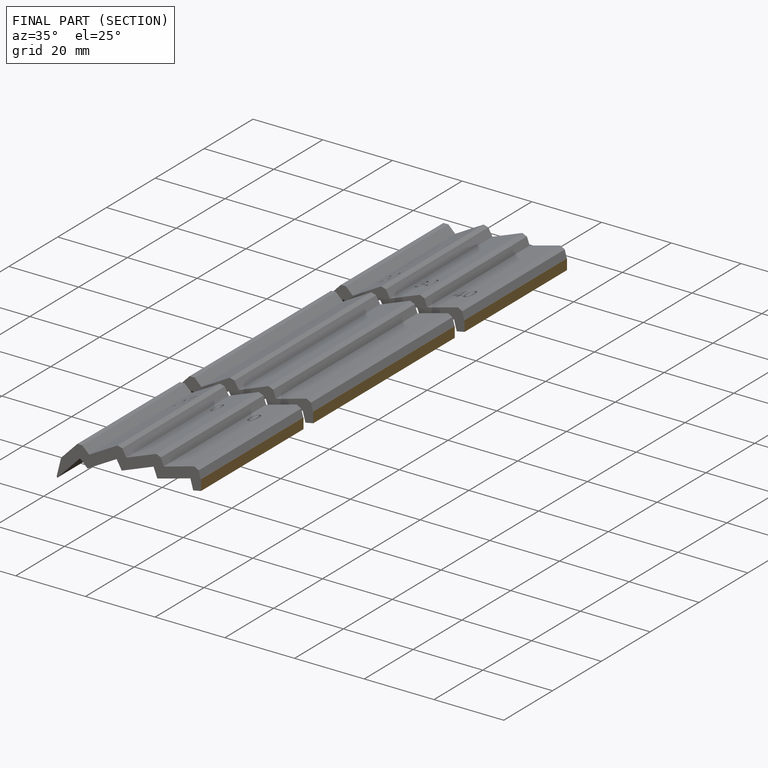
[diagram: finished part — half-section view (interior)]
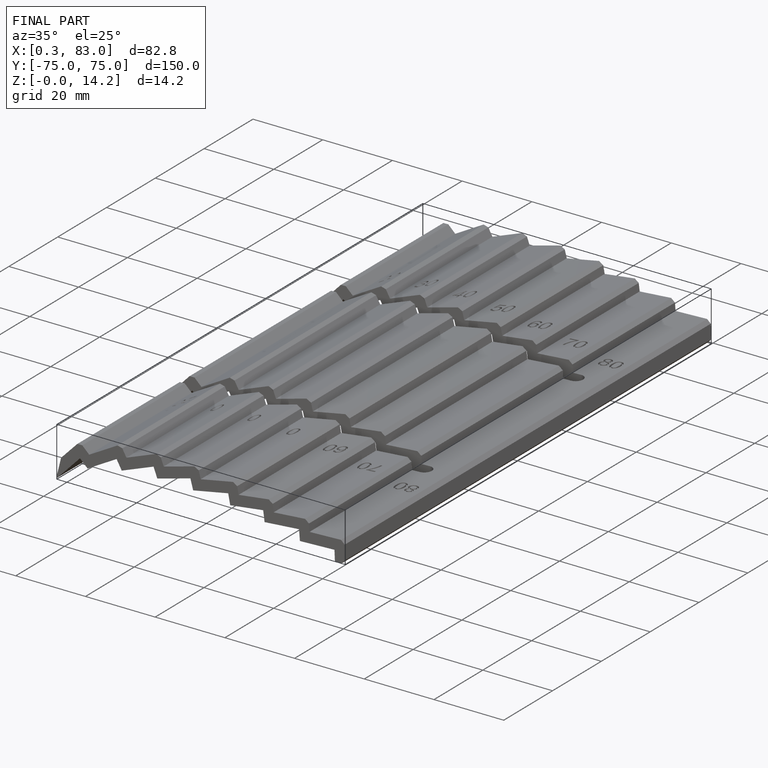
[diagram: finished part — iso view with bounding-box wireframe]
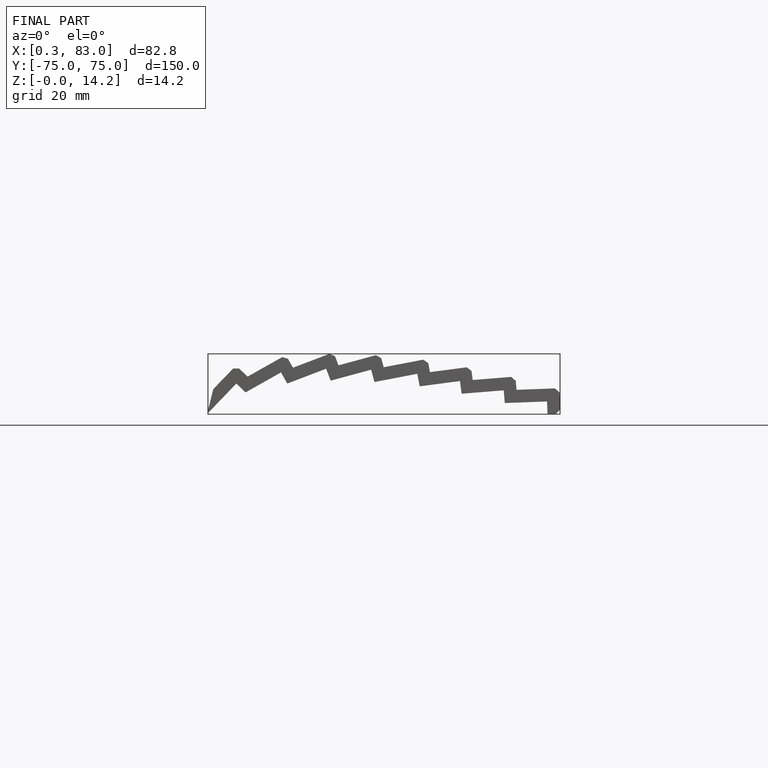
[diagram: finished part — front view with bounding-box wireframe]
